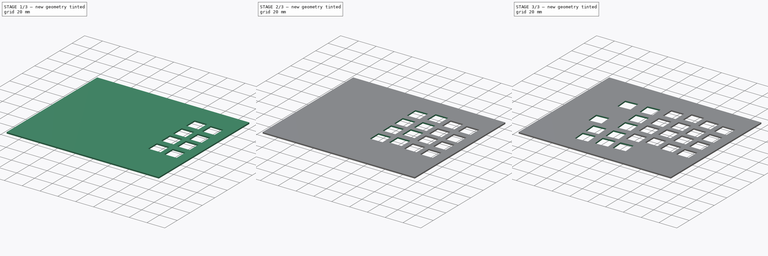
[diagram: build sequence overview — one tinted view per stage of 3, left to right]
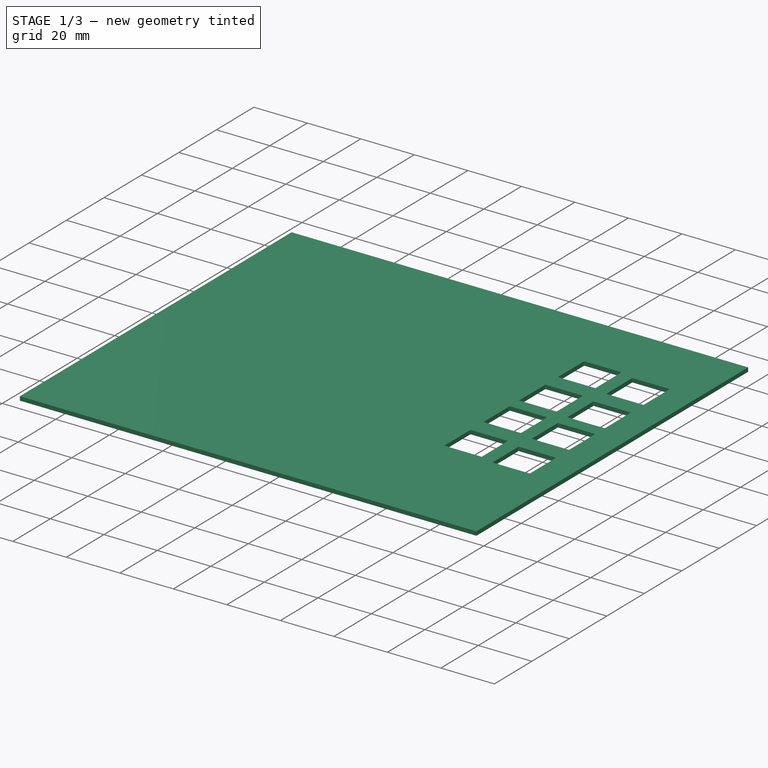
[diagram: stage 1 of 3 — iso view after this stage's code; geometry added in this stage tinted green]
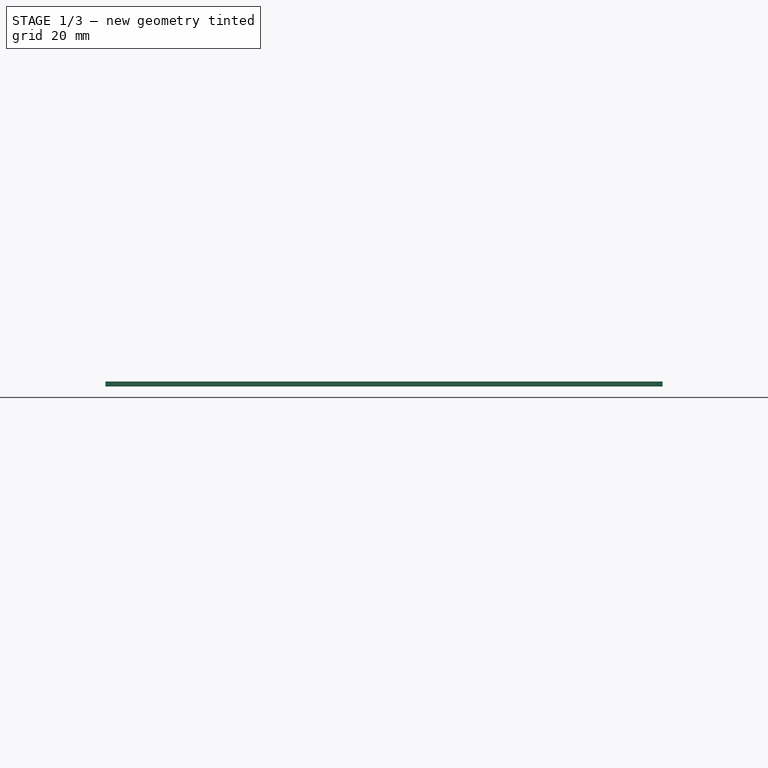
[diagram: stage 1 of 3 — front view after this stage's code; geometry added in this stage tinted green]
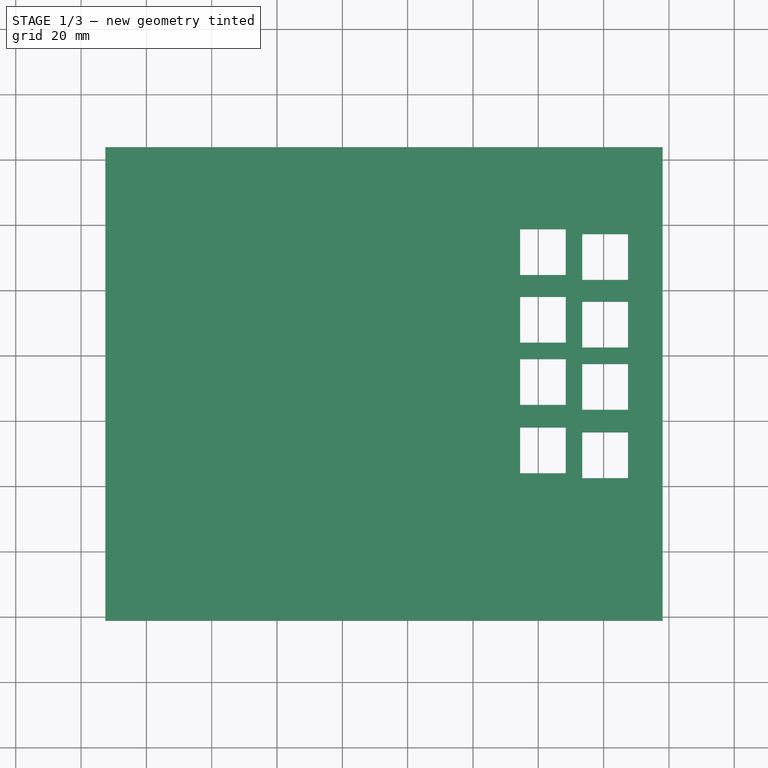
[diagram: stage 1 of 3 — top view after this stage's code; geometry added in this stage tinted green]
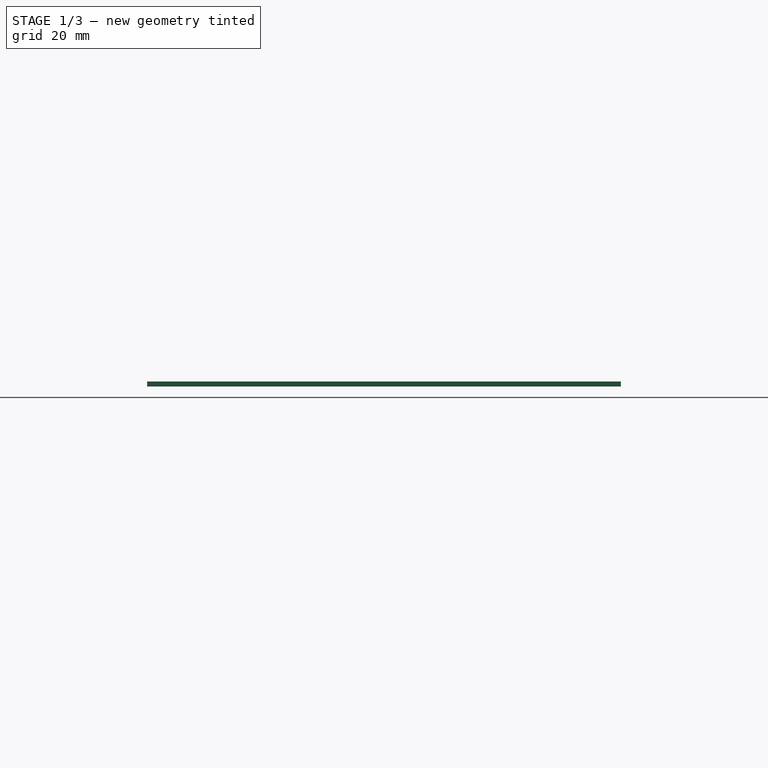
[diagram: stage 1 of 3 — right view after this stage's code; geometry added in this stage tinted green]
FCSTD DOCUMENT  (FreeCAD 0.21R33668 +7 (Git))
Label: Rigel plate V3
License: All rights reserved
LicenseURL: http://en.wikipedia.org/wiki/All_rights_reserved
objects: Sketcher::SketchObject×7, PartDesign::Pocket×5, TechDraw::DrawViewPart×4, TechDraw::DrawSVGTemplate×2, TechDraw::DrawPage×2, Spreadsheet::Sheet×1, PartDesign::Pad×1, PartDesign::Body×1
note: 20 computed .brp shape members not serialized (recipe doc carries the construction recipe); baked Part::Feature solids carry a one-line shape summary decoded from their .brp

FEATURE [Spreadsheet::Sheet] Spreadsheet
  cells = A1='FIXED MX PARAMETERS; A2='1u; B2(OneU)==19.05 mm; C2='1u cutout; D2(OneUCutout)==14 mm; E2='1u cutout radius; F2(OneUCutout_rad)==0.15 mm; A3='Key to plate height (key base); B3(KeyToPlate)==5 mm; A4='Plate thickness; B4(PlateThickness)==1.5 mm; A6='RIGEL PARAMETERS; H6='Col 4; I6='Col 3; J6='Col 2; K6='Col 1; L6='Col 0; N6='Col 0; O6='Col 1; P6='Col 2; Q6='Col 3; R6='Col 4; A7='Row 4 angle (down); B7(R4Angle)==5 deg; C7='Row 4 V stagger (up); D7(R4VStagger)==1.5 mm; G7='Row 1; H7='1; I7='2; J7='3; K7='4; L7='5; N7='6; O7='7; P7='8; Q7='9; R7='0; A8='Row 3 angle (up, from row 4); B8(R3Angle)==11.5 deg; G8='Row 2; H8='Q; I8='W; J8='E; K8='R; L8='T; N8='Y; O8='U; P8='I; Q8='O; R8='P; A9='Row 1 angle (up, from row 3); B9(R1Angle)==16 deg; C9='Row 4 H stagger (extra gap); D9(R1HStagger)==0.25 mm; G9='Row 3; H9='A; I9='S; J9='D; K9='F; L9='G; N9='H; O9='J; P9='K; Q9='L; R9=';; G10='Row 4; H10='Z; I10='X; J10='C; K10='V; L10='B; N10='N; O10='M; P10='<; Q10='>; R10='/; A11='Cutout width; B11(CutoutWidth)==0.5 mm; C11='Cutout relief depth; D11(ReliefDepth)==0.25 mm; A13='Col 4 angle (between col 4 and col 3); B13(C4Angle)==3 deg; C13='cum angle:; A14='Col 3 angle (between col 3 and col 2); B14(C3Angle)==1 deg; C14(C3Angle_Cum)==B14 + B13; A17='Col 3 stagger (step up to col 3 from col 4); B17(C3Stagger)==4.5 mm; A18='Col 2 stagger (step up to col 2 from col 3); B18(C2Stagger)==2.5 mm; C18='Col 2 V stagger (down); D18(C2VStagger)==1.5 mm; A19='Col 1 stagger (step down to col 1 from col 2); B19(C1Stagger)==2.5 mm; A20='Col 0 stagger (step down to col 0 from col 1); B20(C0Stagger)==1.5 mm; A22='C2 extra bend angle; B22(C2ExtraAngle)==45 deg; A25='CALCULATED VALUES; A26='Row 4 to row 3 gap; B26(R4ToR3Gap)==sqrt(D26 * D26 + F26 * F26 - 2 * D26 * F26 * cos(R3Angle)); C26='a:; D26==KeyToPlate; E26='b:; F26==KeyToPlate + R4VStagger; A27='Row 2 to row 1 gap; B27(R2ToR1Gap)==2 * KeyToPlate * tan(R1Angle / 2) + R1HStagger; A28='C2 extra below row 4; B28(C2_R4ExtraGap)==D28 - F28; C28='h:; D28==C2VStagger / sin(C2ExtraAngle); E28='a:; F28==C2VStagger / tan(C2ExtraAngle); A32='Row 1 bend allowance; B32(R1BendAllowance)==tan(R3Angle / 2) * KeyToPlate; C32='<- extra gap to add on each side of bend between the flush 1U units going from row 1 to row 2; D32='Row 1 recess; E32==(OneU + R1BendAllowance) * sin(R3Angle); F32='<- amount by which R1 bases raised; A33='Row 4 bend allowance; B33(R4BendAllowance)==tan(R1Angle / 2) * KeyToPlate; D33='Row 4 recess; E33==(OneU + R4BendAllowance) * sin(R1Angle); D34='R0 key height; E34==7.5 mm; A35='k-factor; B35(KFactor)=0.5; D35='Numpad C0 angle; E35(NumpadC0Angle)==6.7 deg; A36='bend inside radius; B36(BendInsideR)==2 mm; D36='Numpad C0 bend allowance; E36(NumpadC0BendAllowance)==tan(NumpadC0Angle / 2) * KeyToPlate; A37='Row 1 concave bend gap; B37(R1ConcaveBendDeduction)==-2 * BendInsideR * tan(R3Angle / 2) + R3Angle / 360 deg * 2 * pi * (BendInsideR + KFactor * PlateThickness); D37='Numpad R1 recess; E37==(2 * OneU + NumpadC0BendAllowance) * sin(NumpadC0Angle); A38='Row 1 convex bend gap; B38(R1ConvexBendDeduction)==-2 * (BendInsideR + PlateThickness) * tan(R3Angle / 2) + R3Angle / 360 deg * 2 * pi * (BendInsideR + KFactor * PlateThickness); D38='Numpad C0 bend gap; E38(NumpadC0BendDeduction)==-2 * BendInsideR * tan(NumpadC0Angle / 2) + NumpadC0Angle / 360 deg * 2 * pi * (BendInsideR + KFactor * PlateThickness); A39='Row 4 concave bend gap; B39(R4ConcaveBendDeduction)==-2 * BendInsideR * tan(R1Angle / 2) + R1Angle / 360 deg * 2 * pi * (BendInsideR + KFactor * PlateThickness); A40='Row 4 convex bend gap; B40(R4ConvexBendDeduction)==-2 * (BendInsideR + PlateThickness) * tan(R1Angle / 2) + R1Angle / 360 deg * 2 * pi * (BendInsideR + KFactor * PlateThickness); D40='C2 normal distance; E40==10 mm + R1ConvexBendDeduction; A41='C2 60deg convex bend gap; B41(C2ConvexBendDeduction)==-2 * (BendInsideR + PlateThickness) * tan(C2ExtraAngle / 2) + C2ExtraAngle / 360 deg * 2 * pi * (BendInsideR + KFactor * PlateThickness); D41='C2 with recess; E41==10 mm - C2VStagger / tan(C2ExtraAngle) + C2VStagger / sin(C2ExtraAngle) + C2ConvexBendDeduction + C2ConcaveBendDeduction; A42='C2 ~45deg concave bend gap; B42(C2ConcaveBendDeduction)==-2 * BendInsideR * tan(45 deg / 2) + 45 deg / 360 deg * 2 * pi * (BendInsideR + KFactor * PlateThickness); D42='C2 extra length; E42(C2ExtraLength)==E41 - E40; B44='x; C44='y; A45='C3 placement; B45(C3Placement_X)==0 mm; C45(C3Placement_Y)==C3Stagger; A46='C2 placement; B46(C2Placement_X)==C3Placement_X + OneU * cos(C4Angle) + C2Stagger * sin(C3Angle_Cum); C46(C2Placement_Y)==C3Placement_Y - OneU * sin(C4Angle) + C2Stagger * cos(C3Angle_Cum); A47='C1 placement; B47(C1Placement_X)==C2Placement_X + OneU * cos(C3Angle_Cum) - C1Stagger * sin(C3Angle_Cum); C47(C1Placement_Y)==C2Placement_Y - OneU * sin(C3Angle_Cum) - C1Stagger * cos(C3Angle_Cum); A48='C0 placement; B48(C0Placement_X)==C1Placement_X + OneU * cos(C3Angle_Cum) - C0Stagger * sin(C3Angle_Cum); C48(C0Placement_Y)==C1Placement_Y - OneU * sin(C3Angle_Cum) - C0Stagger * cos(C3Angle_Cum); A50='Whole column height, physical (top-down); B50(R1ToR4TopDown)==(OneU + R1BendAllowance) * cos(R3Angle) + R1BendAllowance + 2 * OneU + R4BendAllowance + (OneU + R4BendAllowance) * cos(R1Angle); C50='Baseline to top height, physical (top-down); D50==115 mm; E50='<-- HACK manually copied from sketch; A51='Whole column height, sheet length; B51(R1ToR4Sheet)==OneU + R1BendAllowance + R1ConcaveBendDeduction + R1BendAllowance + 2 * OneU + R4BendAllowance + R4ConcaveBendDeduction + OneU + R4BendAllowance; C51='C4 3deg top adjustment; D51(C4TopAdjustment)==D50 * (1 - cos(C4Angle)); C52='C3 4deg top adjustment; D52(C3TopAdjustment)==D50 * (1 - cos(C3Angle_Cum)); C53='Baseline to bottom height; D53(BaselineToBottom)==23.47 mm; E53='<-- HACK copied manuall; A54='Margins; A55='Top margin; B55(MarginTop)==5 mm; A56='Bottom margin; B56(MarginBottom)==2 mm; A57='Left margin; B57(MarginLeft)==8 mm; A58='Right margin; B58(MarginRight)==8 mm
FEATURE [Sketcher::SketchObject] Sketch006  label="ProfileStandard"
  FullyConstrained = false
  expr: Constraints[10] = <<Spreadsheet>>.KeyToPlate
  expr: Constraints[118] = 1.5 mm + <<Spreadsheet>>.PlateThickness
  expr: Constraints[11] = <<Spreadsheet>>.OneU
  expr: Constraints[120] = <<Spreadsheet>>.OneUCutout
  expr: Constraints[22] = <<Spreadsheet>>.R4VStagger
  expr: Constraints[39] = 90 deg - <<Spreadsheet>>.C2ExtraAngle
  expr: Constraints[41] = <<Spreadsheet>>.C2VStagger
  expr: Constraints[50] = <<Spreadsheet>>.R1HStagger
  expr: Constraints[56] = 180 deg - <<Spreadsheet>>.R3Angle
  expr: Constraints[57] = 180 deg - <<Spreadsheet>>.R1Angle
  expr: Constraints[86] = <<Spreadsheet>>.PlateThickness
  sketch-geometry (92):
    g0: LineSegment StartX=58.7024 StartY=1.25499 StartZ=0 EndX=77.1825 EndY=8.90968 EndZ=0
    g1: LineSegment StartX=77.1825 StartY=8.90968 StartZ=0 EndX=138.217 EndY=8.90968 EndZ=0
    g2: LineSegment StartX=20.1491 StartY=-3.13757 StartZ=0 EndX=19.5831 EndY=1.83029 EndZ=0
    g3: LineSegment StartX=19.5831 StartY=1.83029 StartZ=0 EndX=38.5106 EndY=3.9868 EndZ=0
    g4: LineSegment StartX=38.5106 StartY=3.9868 StartZ=0 EndX=39.0767 EndY=-0.981064 EndZ=0
    g5: LineSegment StartX=38.5106 StartY=3.9868 StartZ=0 EndX=57.4382 EndY=6.1433 EndZ=0
    g6: LineSegment StartX=57.4382 StartY=6.1433 StartZ=0 EndX=58.0042 EndY=1.17544 EndZ=0
    g7: LineSegment StartX=0 StartY=0 StartZ=0 EndX=0.435782 EndY=4.98097 EndZ=0
    g8: LineSegment StartX=0.435782 StartY=4.98097 StartZ=0 EndX=19.4133 EndY=3.32064 EndZ=0
    g9: LineSegment StartX=19.4133 StartY=3.32064 StartZ=0 EndX=18.9775 EndY=-1.66033 EndZ=0
    g10: LineSegment StartX=19.5831 StartY=1.83029 StartZ=0 EndX=19.4133 EndY=3.32064 EndZ=0
    g11: LineSegment StartX=59.3516 StartY=1.52391 StartZ=0 EndX=57.4382 EndY=6.1433 EndZ=0
    g12: LineSegment StartX=75.2691 StartY=13.5291 StartZ=0 EndX=77.1825 EndY=8.90968 EndZ=0
    g13: LineSegment StartX=57.4382 StartY=6.1433 StartZ=0 EndX=58.7024 EndY=1.25499 EndZ=0
    g14: LineSegment StartX=-79.6548 StartY=-46.9095 StartZ=0 EndX=-1.49986 EndY=-46.9095 EndZ=0
    g15: LineSegment StartX=-1.49986 StartY=-46.9095 StartZ=0 EndX=0 EndY=-46.9095 EndZ=0
    g16: LineSegment StartX=-1.49986 StartY=-46.9095 StartZ=0 EndX=0.000139869 EndY=-48.4095 EndZ=0
    g17: LineSegment StartX=0.000139869 StartY=-48.4095 StartZ=0 EndX=18.9775 EndY=-50.0698 EndZ=0
    g18: LineSegment StartX=57.4382 StartY=6.1433 StartZ=0 EndX=57.6692 EndY=6.23898 EndZ=0
    g19: LineSegment StartX=57.6692 StartY=6.23898 StartZ=0 EndX=75.2691 EndY=13.5291 EndZ=0
    g20: LineSegment StartX=57.6692 StartY=6.23898 StartZ=0 EndX=59.5826 EndY=1.61958 EndZ=0
    g21: LineSegment StartX=-80.5115 StartY=0 StartZ=0 EndX=0 EndY=0 EndZ=0
    g22: LineSegment StartX=0 StartY=0 StartZ=0 EndX=18.9775 EndY=-1.66033 EndZ=0
    g23: LineSegment StartX=18.9775 StartY=-1.66033 StartZ=0 EndX=20.1491 EndY=-3.13757 EndZ=0
    g24: LineSegment StartX=20.1491 StartY=-3.13757 StartZ=0 EndX=58.7024 EndY=1.25499 EndZ=0
    g25: LineSegment StartX=-80.5115 StartY=0 StartZ=0 EndX=-80.5115 EndY=-1.5 EndZ=0
    g26: LineSegment StartX=-80.5115 StartY=-1.5 StartZ=0 EndX=-0.0654919 EndY=-1.5 EndZ=0
    g27: LineSegment StartX=-0.0654919 StartY=-1.5 StartZ=0 EndX=18.2035 EndY=-3.09834 EndZ=0
    g28: LineSegment StartX=18.2035 StartY=-3.09834 StartZ=0 EndX=19.4914 EndY=-4.72221 EndZ=0
    g29: LineSegment StartX=19.4914 StartY=-4.72221 StartZ=0 EndX=59.0816 EndY=-0.211501 EndZ=0
    g30: LineSegment StartX=59.0816 StartY=-0.211501 StartZ=0 EndX=77.4808 EndY=7.40968 EndZ=0
    g31: LineSegment StartX=77.4808 StartY=7.40968 StartZ=0 EndX=138.217 EndY=7.40968 EndZ=0
    g32: LineSegment StartX=138.217 StartY=7.40968 StartZ=0 EndX=138.217 EndY=8.90968 EndZ=0
    g33: LineSegment StartX=8.5211 StartY=-0.745505 StartZ=0 EndX=8.39037 EndY=-2.2398 EndZ=0
    g34: LineSegment StartX=20.2856 StartY=-3.30967 StartZ=0 EndX=19.1103 EndY=-4.24176 EndZ=0
    g35: LineSegment StartX=20.9766 StartY=-3.04329 StartZ=0 EndX=21.1464 EndY=-4.53365 EndZ=0
    g36: LineSegment StartX=68.2685 StartY=5.21741 StartZ=0 EndX=68.8426 EndY=3.83159 EndZ=0
    g37: LineSegment StartX=20.9766 StartY=-3.04329 StartZ=0 EndX=20.8068 EndY=-1.55293 EndZ=0
    g38: LineSegment StartX=19.6316 StartY=-2.48502 StartZ=0 EndX=20.8068 EndY=-1.55293 EndZ=0
    g39: ArcOfCircle CenterX=20.8068 CenterY=-1.55293 CenterZ=0 NormalX=0 NormalY=0 NormalZ=1 AngleXU=0 Radius=1.5 StartAngle=3.81211 EndAngle=4.82583
    g40: LineSegment StartX=17.691 StartY=-1.54777 StartZ=0 EndX=17.4295 EndY=-4.53635 EndZ=0
    g41: LineSegment StartX=17.4295 StartY=-4.53635 StartZ=0 EndX=19.78 EndY=-2.67218 EndZ=0
    g42: LineSegment StartX=2.45033 StartY=-0.963749 StartZ=0 EndX=16.3971 EndY=-2.18394 EndZ=0
    g43: LineSegment StartX=2.45033 StartY=-0.963749 StartZ=0 EndX=-0.0650639 EndY=-0.743679 EndZ=0
    g44: LineSegment StartX=16.3971 StartY=-2.18394 StartZ=0 EndX=18.9124 EndY=-2.40401 EndZ=0
    g45: GeomPoint X=17.5602 Y=-3.04206 Z=0
    g46: GeomPoint X=18.6048 Y=-3.60427 Z=0
    g47: ArcOfCircle CenterX=17.4295 CenterY=-4.53635 CenterZ=0 NormalX=0 NormalY=0 NormalZ=1 AngleXU=0 Radius=1.5 StartAngle=0.670518 EndAngle=1.48353
    g48: LineSegment StartX=19.6316 StartY=-2.48502 StartZ=0 EndX=18.4563 EndY=-3.41711 EndZ=0
    g49: LineSegment StartX=-0.152814 StartY=0 StartZ=0 EndX=-0.152814 EndY=-1.5 EndZ=0
    g50: LineSegment StartX=-0.152814 StartY=-1.5 StartZ=0 EndX=-0.152814 EndY=-3.5 EndZ=0
    g51: LineSegment StartX=-0.152814 StartY=-3.5 StartZ=0 EndX=0.0214983 EndY=-1.50761 EndZ=0
    g52: LineSegment StartX=0.0214983 StartY=-1.50761 StartZ=0 EndX=0.152233 EndY=-0.0133188 EndZ=0
    g53: ArcOfCircle CenterX=-0.152814 CenterY=-3.5 CenterZ=0 NormalX=0 NormalY=0 NormalZ=1 AngleXU=0 Radius=3.5 StartAngle=1.48353 EndAngle=1.5708
    g54: ArcOfCircle CenterX=-0.152814 CenterY=-3.5 CenterZ=0 NormalX=0 NormalY=0 NormalZ=1 AngleXU=0 Radius=2 StartAngle=1.48353 EndAngle=1.5708
    g55: LineSegment StartX=20.2366 StartY=-3.90508 StartZ=0 EndX=22.7453 EndY=-3.61924 EndZ=0
    g56: LineSegment StartX=22.7453 StartY=-3.61924 StartZ=0 EndX=36.6553 EndY=-2.0344 EndZ=0
    g57: LineSegment StartX=36.6553 StartY=-2.0344 StartZ=0 EndX=39.1641 EndY=-1.74857 EndZ=0
    g58: LineSegment StartX=39.1641 StartY=-1.74857 StartZ=0 EndX=41.6729 EndY=-1.46273 EndZ=0
    g59: LineSegment StartX=41.6729 StartY=-1.46273 StartZ=0 EndX=55.5829 EndY=0.122106 EndZ=0
    g60: LineSegment StartX=55.5829 StartY=0.122106 StartZ=0 EndX=58.0916 EndY=0.407943 EndZ=0
    g61: LineSegment StartX=58.1967 StartY=3.21032 StartZ=0 EndX=58.4231 EndY=1.22317 EndZ=0
    g62: LineSegment StartX=58.4231 StartY=1.22317 StartZ=0 EndX=58.5929 EndY=-0.267184 EndZ=0
    g63: LineSegment StartX=58.1967 StartY=3.21032 StartZ=0 EndX=58.9621 EndY=1.36256 EndZ=0
    g64: LineSegment StartX=58.9621 StartY=1.36256 StartZ=0 EndX=59.5361 EndY=-0.0232618 EndZ=0
    g65: ArcOfCircle CenterX=58.1967 CenterY=3.21032 CenterZ=0 NormalX=0 NormalY=0 NormalZ=1 AngleXU=0 Radius=2 StartAngle=4.82583 EndAngle=5.10509
    g66: ArcOfCircle CenterX=58.1967 CenterY=3.21032 CenterZ=0 NormalX=0 NormalY=0 NormalZ=1 AngleXU=0 Radius=3.5 StartAngle=4.82583 EndAngle=5.10509
    g67: LineSegment StartX=76.5393 StartY=8.64326 StartZ=0 EndX=77.1133 EndY=7.25744 EndZ=0
    g68: LineSegment StartX=77.1133 StartY=7.25744 StartZ=0 EndX=77.8787 EndY=5.40968 EndZ=0
    g69: LineSegment StartX=77.8787 StartY=5.40968 StartZ=0 EndX=77.8787 EndY=7.40968 EndZ=0
    g70: LineSegment StartX=77.8787 StartY=7.40968 StartZ=0 EndX=77.8787 EndY=8.90968 EndZ=0
    g71: ArcOfCircle CenterX=77.8787 CenterY=5.40968 CenterZ=0 NormalX=0 NormalY=0 NormalZ=1 AngleXU=0 Radius=2 StartAngle=1.5708 EndAngle=1.96349
    g72: ArcOfCircle CenterX=77.8787 CenterY=5.40968 CenterZ=0 NormalX=0 NormalY=0 NormalZ=1 AngleXU=0 Radius=3.5 StartAngle=1.5708 EndAngle=1.96349
    g73: LineSegment StartX=21.1464 StartY=-4.53365 StartZ=0 EndX=25.4066 EndY=-18.9159 EndZ=0
    g74: LineSegment StartX=25.4066 StartY=-18.9159 StartZ=0 EndX=57.6772 EndY=-15.2392 EndZ=0
    g75: LineSegment StartX=57.6772 StartY=-15.2392 StartZ=0 EndX=58.5929 EndY=-0.267184 EndZ=0
    g76: LineSegment StartX=59.8833 StartY=0.893587 StartZ=0 EndX=62.2161 EndY=1.85986 EndZ=0
    g77: LineSegment StartX=62.2161 StartY=1.85986 StartZ=0 EndX=75.1504 EndY=7.21742 EndZ=0
    g78: LineSegment StartX=75.1504 StartY=7.21742 StartZ=0 EndX=77.4832 EndY=8.18369 EndZ=0
    g79: LineSegment StartX=0.749317 StartY=-0.0655572 StartZ=0 EndX=1.57869 EndY=13.4945 EndZ=0
    g80: LineSegment StartX=1.57869 StartY=13.4945 StartZ=0 EndX=72.702 EndY=21.5979 EndZ=0
    g81: LineSegment StartX=72.702 StartY=21.5979 StartZ=0 EndX=76.5393 EndY=8.64327 EndZ=0
    g82: ArcOfEllipse CenterX=17.4295 CenterY=-4.53635 CenterZ=0 NormalX=0 NormalY=0 NormalZ=1 MajorRadius=3.03694 MinorRadius=2.99889 AngleXU=-0.260423 StartAngle=1.01606 EndAngle=1.74182
    g83: LineSegment StartX=20.364 StartY=-5.31833 StartZ=0 EndX=14.495 EndY=-3.75438 EndZ=0
    g84: LineSegment StartX=18.2017 StartY=-1.63858 StartZ=0 EndX=16.6573 EndY=-7.43413 EndZ=0
    g85: GeomPoint X=17.8926 Y=-4.65975 Z=0
    g86: GeomPoint X=16.9664 Y=-4.41296 Z=0
    g87: ArcOfEllipse CenterX=20.8068 CenterY=-1.55293 CenterZ=0 NormalX=0 NormalY=0 NormalZ=1 MajorRadius=3.0206 MinorRadius=2.946 AngleXU=-2.00223 StartAngle=5.88494 EndAngle=6.83921
    g88: LineSegment StartX=19.5437 StartY=-4.29674 StartZ=0 EndX=22.07 EndY=1.19088 EndZ=0
    g89: LineSegment StartX=23.4829 StartY=-2.78487 StartZ=0 EndX=18.1308 EndY=-0.320992 EndZ=0
    g90: GeomPoint X=20.5278 Y=-2.15896 Z=0
    g91: GeomPoint X=21.0858 Y=-0.946908 Z=0
  constraints (239):
    c: PointOnObject(g21,g-1)
    c: Coincident(g24,g0)
    c: Coincident(g0,g1)
    c: Horizontal(g1)
    c: Coincident(g2,g3)
    c: Coincident(g3,g4)
    c: Coincident(g3,g5)
    c: Coincident(g5,g6)
    c: Perpendicular(g3,g2)
    c: Perpendicular(g5,g6)
    c: Distance(g2) = 5
    c: Distance(g3) = 19.05
    c: Equal(g3,g5)
    c: Coincident(g7,g8)
    c: Coincident(g8,g9)
    c: Perpendicular(g8,g7)
    c: Perpendicular(g8,g9)
    c: Coincident(g10,g2)
    c: Coincident(g10,g8)
    c: Parallel(g2,g10)
    c: Equal(g8,g3)
    c: Equal(g7,g2)
    c: Distance(g10) = 1.5
    c: PointOnObject(g11,g0)
    c: Coincident(g11,g5)
    c: Coincident(g11,g18)
    c: Coincident(g19,g12)
    c: Coincident(g12,g0)
    c: Perpendicular(g0,g12)
    c: Coincident(g13,g5)
    c: Coincident(g13,g24)
    c: Symmetric(g6,g11,g13)
    c: Distance(g6,g24) = 0.702704
    c: Horizontal(g14)
    c: Coincident(g15,g14)
    c: PointOnObject(g15,g-2)
    c: Horizontal(g15)
    c: Coincident(g16,g14)
    c: Coincident(g17,g16)
    c: Angle(g-2,g16) = 0.785398
    c: Block(g17)
    c: Distance(g15,g16) = 1.5
    c: DistanceX(g15,g15) = 1.49986
    c: Distance(g16) = 2.12132
    c: Coincident(g18,g19)
    c: Perpendicular(g12,g18)
    c: Perpendicular(g12,g19)
    c: Coincident(g20,g18)
    c: PointOnObject(g20,g0)
    c: Perpendicular(g0,g20)
    c: Distance(g18) = 0.25
    c: Equal(g3,g19)
    c: Perpendicular(g22,g7)
    c: Parallel(g22,g17)
    c: Distance(g9,g23) = 1.88544  'R4ToR3Gap'
    c: Perpendicular(g24,g4)
    c: Angle(g24,g22) = 2.94088
    c: Angle(g0,g24) = 2.86234
    c: Coincident(g22,g21)
    c: Coincident(g7,g21)
    c: Coincident(g-1,g21)
    c: Coincident(g22,g23)
    c: Coincident(g22,g9)
    c: Coincident(g24,g23)
    c: Coincident(g2,g23)
    c: Parallel(g3,g24)
    c: Parallel(g5,g24)
    c: PointOnObject(g4,g24)
    c: PointOnObject(g6,g24)
    c: Coincident(g21,g25)
    c: Vertical(g25)
    c: Coincident(g25,g26)
    c: Horizontal(g26)
    c: Coincident(g26,g27)
    c: Coincident(g27,g28)
    c: Coincident(g28,g29)
    c: Coincident(g29,g30)
    c: Coincident(g30,g31)
    c: Horizontal(g31)
    c: Coincident(g31,g32)
    c: Vertical(g32)
    c: Coincident(g1,g32)
    c: Parallel(g0,g30)
    c: Parallel(g27,g22)
    c: Parallel(g23,g28)
    c: Parallel(g24,g29)
    c: DistanceY(g25,g25) = 1.5
    c: PointOnObject(g33,g22)
    c: PointOnObject(g33,g27)
    c: Perpendicular(g22,g33)
    c: PointOnObject(g34,g23)
    c: PointOnObject(g34,g28)
    c: PointOnObject(g35,g24)
    c: PointOnObject(g35,g29)
    c: PointOnObject(g36,g0)
    c: PointOnObject(g36,g30)
    c: Perpendicular(g0,g36)
    c: Perpendicular(g24,g35)
    c: Perpendicular(g23,g34)
    c: Equal(g25,g33)
    c: Equal(g33,g34)
    c: Equal(g34,g35)
    c: Equal(g35,g36)
    c: Equal(g36,g32)
    c: Coincident(g37,g35)
    c: PointOnObject(g38,g23)
    c: Coincident(g38,g37)
    c: Perpendicular(g24,g37)
    c: Perpendicular(g38,g23)
    c: Coincident(g39,g37)
    c: Coincident(g39,g35)
    c: Coincident(g38,g39)
    c: Distance(g38) = 1.5
    c: PointOnObject(g40,g22)
    c: Coincident(g41,g40)
    c: PointOnObject(g41,g23)
    c: Perpendicular(g23,g41)
    c: Perpendicular(g22,g40)
    c: Distance(g41) = 3
    c: Parallel(g42,g22)
    c: Distance(g42) = 14
    c: Coincident(g43,g42)
    c: PointOnObject(g43,g7)
    c: Coincident(g44,g42)
    c: PointOnObject(g44,g9)
    c: Parallel(g44,g42)
    c: Parallel(g42,g43)
    c: Equal(g43,g44)
    c: PointOnObject(g45,g40)
    c: PointOnObject(g46,g41)
    c: PointOnObject(g45,g27)
    c: Coincident(g47,g40)
    c: Coincident(g47,g45)
    c: Coincident(g47,g46)
    c: Coincident(g48,g38)
    c: Parallel(g38,g48)
    c: PointOnObject(g49,g21)
    c: PointOnObject(g49,g26)
    c: Vertical(g49)
    c: Coincident(g49,g50)
    c: Vertical(g50)
    c: Coincident(g50,g51)
    c: PointOnObject(g51,g27)
    c: Coincident(g51,g52)
    c: Perpendicular(g27,g51)
    c: Perpendicular(g27,g52)
    c: Coincident(g53,g50)
    c: Coincident(g53,g49)
    c: Coincident(g53,g52)
    c: Coincident(g54,g50)
    c: Coincident(g54,g49)
    c: Coincident(g54,g51)
    c: DistanceY(g50,g50) = 2
    c: PointOnObject(g55,g2)
    c: Coincident(g55,g56)
    c: Coincident(g56,g57)
    c: PointOnObject(g57,g4)
    c: Coincident(g57,g58)
    c: Coincident(g58,g59)
    c: Coincident(g59,g60)
    c: PointOnObject(g60,g6)
    c: Parallel(g55,g56)
    c: Parallel(g56,g57)
    c: Parallel(g57,g58)
    c: Parallel(g58,g59)
    c: Parallel(g59,g60)
    c: Perpendicular(g55,g2)
    c: Equal(g42,g56)
    c: Equal(g56,g59)
    c: Equal(g55,g57)
    c: Equal(g58,g60)
    c: PointOnObject(g61,g24)
    c: Coincident(g61,g62)
    c: PointOnObject(g62,g29)
    c: Coincident(g61,g63)
    c: PointOnObject(g63,g0)
    c: Coincident(g63,g64)
    c: Parallel(g61,g62)
    c: Perpendicular(g24,g61)
    c: Parallel(g63,g64)
    c: Perpendicular(g0,g63)
    c: Coincident(g65,g61)
    c: Coincident(g65,g61)
    c: Coincident(g65,g63)
    c: Coincident(g66,g61)
    c: Coincident(g66,g62)
    c: Coincident(g66,g64)
    c: Distance(g61) = 2
    c: PointOnObject(g67,g0)
    c: PointOnObject(g67,g30)
    c: Coincident(g67,g68)
    c: Coincident(g68,g69)
    c: PointOnObject(g69,g31)
    c: Coincident(g69,g70)
    c: Vertical(g70)
    c: Vertical(g69)
    c: Parallel(g67,g68)
    c: Perpendicular(g30,g67)
    c: Coincident(g71,g68)
    c: Coincident(g71,g67)
    c: Coincident(g71,g69)
    c: Coincident(g72,g68)
    c: Coincident(g72,g67)
    c: Coincident(g72,g70)
    c: Distance(g68) = 2
    c: Coincident(g73,g35)
    c: Coincident(g73,g74)
    c: Coincident(g74,g75)
    c: Coincident(g75,g62)
    c: Parallel(g29,g74)
    c: PointOnObject(g76,g20)
    c: Coincident(g76,g77)
    c: Coincident(g77,g78)
    c: PointOnObject(g78,g12)
    c: Parallel(g76,g77)
    c: Parallel(g77,g78)
    c: Parallel(g78,g0)
    c: Equal(g42,g77)
    c: Equal(g76,g78)
    c: Angle(g73,g29) = 1.39626
    c: Angle(g29,g75) = 1.39626
    c: Distance(g73) = 15
    c: PointOnObject(g79,g22)
    c: Coincident(g79,g80)
    c: Coincident(g80,g81)
    c: PointOnObject(g81,g0)
    c: Angle(g80,g81) = 1.74533
    c: Angle(g79,g80) = 1.74533
    c: Parallel(g80,g24)
    c: PointOnObject(g47,g28)
    c: PointOnObject(g48,g28)
    c: InternalAlignment(g83-g86 -> g82) x4
    c: Coincident(g82,g40)
    c: Coincident(g82,g38)
    c: Coincident(g82,g40)
    c: InternalAlignment(g88-g91 -> g87) x4
    c: Coincident(g87,g37)
    c: Coincident(g87,g47)
    c: Coincident(g87,g35)
FEATURE [Sketcher::SketchObject] Sketch007  label="Base"
  FullyConstrained = false
  expr: Constraints[12] = <<Spreadsheet>>.OneU
  expr: Constraints[18] = <<Spreadsheet>>.C1Stagger
  expr: Constraints[24] = <<Spreadsheet>>.C2Stagger
  expr: Constraints[30] = <<Spreadsheet>>.C3Stagger
  expr: Constraints[31] = <<Spreadsheet>>.C3Angle
  expr: Constraints[36] = <<Spreadsheet>>.C4Angle
  expr: Constraints[65] = <<Spreadsheet>>.R4ToR3Gap
  expr: Constraints[66] = <<Spreadsheet>>.R2ToR1Gap
  expr: Constraints[9] = <<Spreadsheet>>.C0Stagger
  sketch-geometry (35):
    g0: LineSegment StartX=-10 StartY=0 StartZ=0 EndX=-10 EndY=19.05 EndZ=0
    g1: LineSegment StartX=-29.05 StartY=0 StartZ=0 EndX=-29.05 EndY=79.7604 EndZ=0
    g2: LineSegment StartX=-48.1 StartY=0 StartZ=0 EndX=-48.1 EndY=80.3184 EndZ=0
    g3: LineSegment StartX=-29.05 StartY=1.5 StartZ=0 EndX=-48.1 EndY=1.5 EndZ=0
    g4: LineSegment StartX=-10 StartY=0 StartZ=0 EndX=-29.05 EndY=0 EndZ=0
    g5: LineSegment StartX=-67.15 StartY=0 StartZ=0 EndX=-67.15 EndY=78.9546 EndZ=0
    g6: LineSegment StartX=-48.1 StartY=4 StartZ=0 EndX=-67.15 EndY=4 EndZ=0
    g7: LineSegment StartX=-87.5747 StartY=82.5907 StartZ=0 EndX=-85.6578 EndY=-27.2295 EndZ=0
    g8: LineSegment StartX=-68.5331 StartY=83.2405 StartZ=0 EndX=-66.6894 EndY=-22.3871 EndZ=0
    g9: LineSegment StartX=-67.1064 StartY=1.50038 StartZ=0 EndX=-86.1535 EndY=1.16791 EndZ=0
    g10: LineSegment StartX=-91.7744 StartY=81.5504 StartZ=0 EndX=-84.247 EndY=-26.0959 EndZ=0
    g11: LineSegment StartX=-110.807 StartY=80.6344 StartZ=0 EndX=-103.112 EndY=-29.4128 EndZ=0
    g12: LineSegment StartX=-85.8396 StartY=-3.32113 StartZ=0 EndX=-104.843 EndY=-4.64999 EndZ=0
    g13: LineSegment StartX=-29.05 StartY=19.05 StartZ=0 EndX=-10 EndY=19.05 EndZ=0
    g14: LineSegment StartX=-10 StartY=19.05 StartZ=0 EndX=-10 EndY=20.9354 EndZ=0
    g15: LineSegment StartX=-10 StartY=20.9354 StartZ=0 EndX=-29.05 EndY=20.9354 EndZ=0
    g16: LineSegment StartX=-10 StartY=20.9354 StartZ=0 EndX=-10 EndY=39.9854 EndZ=0
    g17: LineSegment StartX=-10 StartY=39.9854 StartZ=0 EndX=-29.05 EndY=39.9854 EndZ=0
    g18: LineSegment StartX=-10 StartY=39.9854 StartZ=0 EndX=-10 EndY=59.0354 EndZ=0
    g19: LineSegment StartX=-10 StartY=59.0354 StartZ=0 EndX=-29.05 EndY=59.0354 EndZ=0
    g20: LineSegment StartX=-10 StartY=59.0354 StartZ=0 EndX=-10 EndY=60.6909 EndZ=0
    g21: LineSegment StartX=-10 StartY=60.6909 StartZ=0 EndX=-29.05 EndY=60.6909 EndZ=0
    g22: LineSegment StartX=-10 StartY=60.6909 StartZ=0 EndX=-10 EndY=79.7409 EndZ=0
    g23: LineSegment StartX=-10 StartY=79.7409 StartZ=0 EndX=-29.05 EndY=79.7409 EndZ=0
    g24: LineSegment StartX=-10 StartY=19.05 StartZ=0 EndX=-29.05 EndY=0 EndZ=0
    g25: LineSegment StartX=-172.572 StartY=103.875 StartZ=0 EndX=-1.91449 EndY=103.875 EndZ=0
    g26: LineSegment StartX=-1.91449 StartY=103.875 StartZ=0 EndX=-1.91449 EndY=-41.157 EndZ=0
    g27: LineSegment StartX=-1.91449 StartY=-41.157 StartZ=0 EndX=-172.572 EndY=-41.157 EndZ=0
    g28: LineSegment StartX=-172.572 StartY=-41.157 StartZ=0 EndX=-172.572 EndY=103.875 EndZ=0
    g29: LineSegment StartX=-29.05 StartY=20.55 StartZ=0 EndX=-48.1 EndY=20.55 EndZ=0
    g30: LineSegment StartX=-29.05 StartY=21.55 StartZ=0 EndX=-48.1 EndY=21.55 EndZ=0
    g31: LineSegment StartX=-29.05 StartY=40.6 StartZ=0 EndX=-48.1 EndY=40.6 EndZ=0
    g32: LineSegment StartX=-29.05 StartY=59.65 StartZ=0 EndX=-48.1 EndY=59.65 EndZ=0
    g33: LineSegment StartX=-29.05 StartY=60.65 StartZ=0 EndX=-48.1 EndY=60.65 EndZ=0
    g34: LineSegment StartX=-29.05 StartY=79.7 StartZ=0 EndX=-48.1 EndY=79.7 EndZ=0
  constraints (100):
    c: PointOnObject(g0,g-1)
    c: Vertical(g0)
    c: PointOnObject(g1,g-1)
    c: Vertical(g1)
    c: PointOnObject(g2,g-1)
    c: Vertical(g2)
    c: PointOnObject(g3,g1)
    c: PointOnObject(g3,g2)
    c: Horizontal(g3)
    c: DistanceY(g1,g3) = 1.5
    c: Coincident(g4,g0)
    c: Coincident(g4,g1)
    c: DistanceX(g4,g4) = 19.05
    c: PointOnObject(g5,g-1)
    c: Vertical(g5)
    c: PointOnObject(g6,g2)
    c: PointOnObject(g6,g5)
    c: Horizontal(g6)
    c: DistanceY(g3,g6) = 2.5
    c: PointOnObject(g6,g8)
    c: Parallel(g8,g7)
    c: PointOnObject(g9,g8)
    c: PointOnObject(g9,g7)
    c: Perpendicular(g9,g8)
    c: Distance(g6,g9) = 2.5
    c: PointOnObject(g12,g10)
    c: PointOnObject(g12,g11)
    c: PointOnObject(g9,g10)
    c: Perpendicular(g10,g12)
    c: Parallel(g10,g11)
    c: Distance(g12,g9) = 4.5
    c: Angle(g5,g8) = 0.0174533
    c: Equal(g4,g3)
    c: Equal(g3,g6)
    c: Equal(g6,g9)
    c: Equal(g9,g12)
    c: Angle(g7,g10) = 0.0523599
    c: PointOnObject(g13,g1)
    c: Coincident(g13,g0)
    c: Horizontal(g13)
    c: Coincident(g13,g14)
    c: Vertical(g14)
    c: Coincident(g14,g15)
    c: PointOnObject(g15,g1)
    c: Horizontal(g15)
    c: Coincident(g14,g16)
    c: Vertical(g16)
    c: Coincident(g16,g17)
    c: PointOnObject(g17,g1)
    c: Horizontal(g17)
    c: Coincident(g16,g18)
    c: Vertical(g18)
    c: Coincident(g18,g19)
    c: PointOnObject(g19,g1)
    c: Horizontal(g19)
    c: Coincident(g18,g20)
    c: Vertical(g20)
    c: Coincident(g20,g21)
    c: PointOnObject(g21,g1)
    c: Horizontal(g21)
    c: Coincident(g20,g22)
    c: Vertical(g22)
    c: Coincident(g22,g23)
    c: PointOnObject(g23,g1)
    c: Horizontal(g23)
    c: DistanceY(g0,g14) = 1.88544
    c: DistanceY(g18,g20) = 1.65541
    c: Equal(g4,g0)
    c: Equal(g0,g16)
    c: Equal(g16,g18)
    c: Equal(g18,g22)
    c: DistanceX(g0,g-1) = 10
    c: Coincident(g24,g0)
    c: Coincident(g24,g1)
    c: Coincident(g25,g26)
    c: Coincident(g26,g27)
    c: Coincident(g27,g28)
    c: Coincident(g28,g25)
    c: Horizontal(g25)
    c: Horizontal(g27)
    c: Vertical(g26)
    c: Vertical(g28)
    c: PointOnObject(g29,g1)
    c: PointOnObject(g29,g2)
    c: Horizontal(g29)
    c: PointOnObject(g30,g1)
    c: PointOnObject(g30,g2)
    c: Horizontal(g30)
    c: PointOnObject(g31,g1)
    c: PointOnObject(g31,g2)
    c: Horizontal(g31)
    c: PointOnObject(g32,g1)
    c: PointOnObject(g32,g2)
    c: Horizontal(g32)
    c: PointOnObject(g33,g1)
    c: PointOnObject(g33,g2)
    c: Horizontal(g33)
    c: PointOnObject(g34,g1)
    c: PointOnObject(g34,g2)
    c: Horizontal(g34)
FEATURE [PartDesign::Pad] Pad001
  Direction = (0,0,1)
  Length = 1.5
  Length2 = 10
  Profile = -> Sketch007
  ReferenceAxis = -> Sketch007 [N_Axis]
  Type = 0
  expr: Length = <<Spreadsheet>>.PlateThickness
FEATURE [Sketcher::SketchObject] Sketch008  label="C0AndC1"
  FullyConstrained = false
  expr: Constraints[12] = <<Spreadsheet>>.OneU
  expr: Constraints[160] = <<Spreadsheet>>.OneUCutout
  expr: Constraints[167] = <<Spreadsheet>>.OneUCutout_rad
  expr: Constraints[18] = <<Spreadsheet>>.C1Stagger
  expr: Constraints[24] = <<Spreadsheet>>.C2Stagger
  expr: Constraints[30] = <<Spreadsheet>>.C3Stagger
  expr: Constraints[31] = <<Spreadsheet>>.C3Angle
  expr: Constraints[348] = <<Spreadsheet>>.OneUCutout_rad
  expr: Constraints[349] = Spreadsheet.OneUCutout
  expr: Constraints[36] = <<Spreadsheet>>.C4Angle
  expr: Constraints[65] = <<Spreadsheet>>.R4ToR3Gap
  expr: Constraints[66] = <<Spreadsheet>>.R2ToR1Gap
  expr: Constraints[9] = <<Spreadsheet>>.C0Stagger
  sketch-geometry (140):
    g0: LineSegment StartX=-10 StartY=0 StartZ=0 EndX=-10 EndY=19.05 EndZ=0
    g1: LineSegment StartX=-29.05 StartY=0 StartZ=0 EndX=-29.05 EndY=79.7604 EndZ=0
    g2: LineSegment StartX=-48.1 StartY=0 StartZ=0 EndX=-48.1 EndY=80.3184 EndZ=0
    g3: LineSegment StartX=-29.05 StartY=1.5 StartZ=0 EndX=-48.1 EndY=1.5 EndZ=0
    g4: LineSegment StartX=-10 StartY=0 StartZ=0 EndX=-29.05 EndY=0 EndZ=0
    g5: LineSegment StartX=-67.15 StartY=0 StartZ=0 EndX=-67.15 EndY=78.9546 EndZ=0
    g6: LineSegment StartX=-48.1 StartY=4 StartZ=0 EndX=-67.15 EndY=4 EndZ=0
    g7: LineSegment StartX=-87.5747 StartY=82.5907 StartZ=0 EndX=-85.6578 EndY=-27.2295 EndZ=0
    g8: LineSegment StartX=-68.5331 StartY=83.2405 StartZ=0 EndX=-66.6894 EndY=-22.3871 EndZ=0
    g9: LineSegment StartX=-67.1064 StartY=1.50038 StartZ=0 EndX=-86.1535 EndY=1.16791 EndZ=0
    g10: LineSegment StartX=-91.7744 StartY=81.5504 StartZ=0 EndX=-84.247 EndY=-26.0959 EndZ=0
    g11: LineSegment StartX=-110.807 StartY=80.6344 StartZ=0 EndX=-103.112 EndY=-29.4128 EndZ=0
    g12: LineSegment StartX=-85.8396 StartY=-3.32113 StartZ=0 EndX=-104.843 EndY=-4.64999 EndZ=0
    g13: LineSegment StartX=-29.05 StartY=19.05 StartZ=0 EndX=-10 EndY=19.05 EndZ=0
    g14: LineSegment StartX=-10 StartY=19.05 StartZ=0 EndX=-10 EndY=20.9354 EndZ=0
    g15: LineSegment StartX=-10 StartY=20.9354 StartZ=0 EndX=-29.05 EndY=20.9354 EndZ=0
    g16: LineSegment StartX=-10 StartY=20.9354 StartZ=0 EndX=-10 EndY=39.9854 EndZ=0
    g17: LineSegment StartX=-10 StartY=39.9854 StartZ=0 EndX=-29.05 EndY=39.9854 EndZ=0
    g18: LineSegment StartX=-10 StartY=39.9854 StartZ=0 EndX=-10 EndY=59.0354 EndZ=0
    g19: LineSegment StartX=-10 StartY=59.0354 StartZ=0 EndX=-29.05 EndY=59.0354 EndZ=0
    g20: LineSegment StartX=-10 StartY=59.0354 StartZ=0 EndX=-10 EndY=60.6909 EndZ=0
    g21: LineSegment StartX=-10 StartY=60.6909 StartZ=0 EndX=-29.05 EndY=60.6909 EndZ=0
    g22: LineSegment StartX=-10 StartY=60.6909 StartZ=0 EndX=-10 EndY=79.7409 EndZ=0
    g23: LineSegment StartX=-10 StartY=79.7409 StartZ=0 EndX=-29.05 EndY=79.7409 EndZ=0
    g24: ArcOfCircle CenterX=-26.375 CenterY=16.375 CenterZ=0 NormalX=0 NormalY=0 NormalZ=1 AngleXU=0 Radius=0.15 StartAngle=1.5708 EndAngle=3.14159
    g25: LineSegment StartX=-26.375 StartY=16.525 StartZ=0 EndX=-12.675 EndY=16.525 EndZ=0
    g26: ArcOfCircle CenterX=-12.675 CenterY=16.375 CenterZ=0 NormalX=0 NormalY=0 NormalZ=1 AngleXU=0 Radius=0.15 StartAngle=6.4e-15 EndAngle=1.5708
    g27: LineSegment StartX=-12.525 StartY=16.375 StartZ=0 EndX=-12.525 EndY=2.675 EndZ=0
    g28: ArcOfCircle CenterX=-12.675 CenterY=2.675 CenterZ=0 NormalX=0 NormalY=0 NormalZ=1 AngleXU=0 Radius=0.15 StartAngle=4.71239 EndAngle=6.28319
    g29: LineSegment StartX=-12.675 StartY=2.525 StartZ=0 EndX=-26.375 EndY=2.525 EndZ=0
    g30: ArcOfCircle CenterX=-26.375 CenterY=2.675 CenterZ=0 NormalX=0 NormalY=0 NormalZ=1 AngleXU=0 Radius=0.15 StartAngle=3.14159 EndAngle=4.71239
    g31: LineSegment StartX=-26.525 StartY=2.675 StartZ=0 EndX=-26.525 EndY=16.375 EndZ=0
    g32: GeomPoint X=-26.525 Y=16.525 Z=0
    g33: GeomPoint X=-12.525 Y=2.525 Z=0
    g34: ArcOfCircle CenterX=-26.375 CenterY=37.3104 CenterZ=0 NormalX=0 NormalY=0 NormalZ=1 AngleXU=0 Radius=0.15 StartAngle=1.5708 EndAngle=3.14159
    g35: LineSegment StartX=-26.375 StartY=37.4604 StartZ=0 EndX=-12.675 EndY=37.4604 EndZ=0
    g36: ArcOfCircle CenterX=-12.675 CenterY=37.3104 CenterZ=0 NormalX=0 NormalY=0 NormalZ=1 AngleXU=0 Radius=0.15 StartAngle=2.18e-14 EndAngle=1.5708
    g37: LineSegment StartX=-12.525 StartY=37.3104 StartZ=0 EndX=-12.525 EndY=23.6104 EndZ=0
    g38: ArcOfCircle CenterX=-12.675 CenterY=23.6104 CenterZ=0 NormalX=0 NormalY=0 NormalZ=1 AngleXU=0 Radius=0.15 StartAngle=4.71239 EndAngle=6.28319
    g39: LineSegment StartX=-12.675 StartY=23.4604 StartZ=0 EndX=-26.375 EndY=23.4604 EndZ=0
    g40: ArcOfCircle CenterX=-26.375 CenterY=23.6104 CenterZ=0 NormalX=0 NormalY=0 NormalZ=1 AngleXU=0 Radius=0.15 StartAngle=3.14159 EndAngle=4.71239
    g41: LineSegment StartX=-26.525 StartY=23.6104 StartZ=0 EndX=-26.525 EndY=37.3104 EndZ=0
    g42: GeomPoint X=-26.525 Y=37.4604 Z=0
    g43: GeomPoint X=-12.525 Y=23.4604 Z=0
    g44: ArcOfCircle CenterX=-26.375 CenterY=56.3604 CenterZ=0 NormalX=0 NormalY=0 NormalZ=1 AngleXU=0 Radius=0.15 StartAngle=1.5708 EndAngle=3.14159
    g45: LineSegment StartX=-26.375 StartY=56.5104 StartZ=0 EndX=-12.675 EndY=56.5104 EndZ=0
    g46: ArcOfCircle CenterX=-12.675 CenterY=56.3604 CenterZ=0 NormalX=0 NormalY=0 NormalZ=1 AngleXU=0 Radius=0.15 StartAngle=1.93e-14 EndAngle=1.5708
    g47: LineSegment StartX=-12.525 StartY=56.3604 StartZ=0 EndX=-12.525 EndY=42.6604 EndZ=0
    g48: ArcOfCircle CenterX=-12.675 CenterY=42.6604 CenterZ=0 NormalX=0 NormalY=0 NormalZ=1 AngleXU=0 Radius=0.15 StartAngle=4.71239 EndAngle=6.28319
    g49: LineSegment StartX=-12.675 StartY=42.5104 StartZ=0 EndX=-26.375 EndY=42.5104 EndZ=0
    g50: ArcOfCircle CenterX=-26.375 CenterY=42.6604 CenterZ=0 NormalX=0 NormalY=0 NormalZ=1 AngleXU=0 Radius=0.15 StartAngle=3.14159 EndAngle=4.71239
    g51: LineSegment StartX=-26.525 StartY=42.6604 StartZ=0 EndX=-26.525 EndY=56.3604 EndZ=0
    g52: GeomPoint X=-26.525 Y=56.5104 Z=0
    g53: GeomPoint X=-12.525 Y=42.5104 Z=0
    g54: LineSegment StartX=-29.05 StartY=19.05 StartZ=0 EndX=-10 EndY=0 EndZ=0
    g55: LineSegment StartX=-10 StartY=19.05 StartZ=0 EndX=-29.05 EndY=0 EndZ=0
    g56: LineSegment StartX=-29.05 StartY=39.9854 StartZ=0 EndX=-10 EndY=20.9354 EndZ=0
    g57: LineSegment StartX=-10 StartY=39.9854 StartZ=0 EndX=-29.05 EndY=20.9354 EndZ=0
    g58: LineSegment StartX=-29.05 StartY=59.0354 StartZ=0 EndX=-10 EndY=39.9854 EndZ=0
    g59: LineSegment StartX=-10 StartY=59.0354 StartZ=0 EndX=-29.05 EndY=39.9854 EndZ=0
    g60: LineSegment StartX=-29.05 StartY=79.7409 StartZ=0 EndX=-10 EndY=60.6909 EndZ=0
    g61: LineSegment StartX=-10 StartY=79.7409 StartZ=0 EndX=-29.05 EndY=60.6909 EndZ=0
    g62: LineSegment StartX=-26.525 StartY=16.525 StartZ=0 EndX=-26.525 EndY=23.6104 EndZ=0
    g63: LineSegment StartX=-26.525 StartY=37.4604 StartZ=0 EndX=-26.525 EndY=42.6604 EndZ=0
    g64: LineSegment StartX=-26.375 StartY=23.4604 StartZ=0 EndX=-26.375 EndY=16.525 EndZ=0
    g65: LineSegment StartX=-26.375 StartY=42.5104 StartZ=0 EndX=-26.375 EndY=37.4604 EndZ=0
    g66: ArcOfCircle CenterX=-26.375 CenterY=77.0659 CenterZ=0 NormalX=0 NormalY=0 NormalZ=1 AngleXU=0 Radius=0.15 StartAngle=1.5708 EndAngle=3.14159
    g67: LineSegment StartX=-26.375 StartY=77.2159 StartZ=0 EndX=-12.675 EndY=77.2159 EndZ=0
    g68: ArcOfCircle CenterX=-12.675 CenterY=77.0659 CenterZ=0 NormalX=0 NormalY=0 NormalZ=1 AngleXU=0 Radius=0.15 StartAngle=1.82e-14 EndAngle=1.5708
    g69: LineSegment StartX=-12.525 StartY=77.0659 StartZ=0 EndX=-12.525 EndY=63.3659 EndZ=0
    g70: ArcOfCircle CenterX=-12.675 CenterY=63.3659 CenterZ=0 NormalX=0 NormalY=0 NormalZ=1 AngleXU=0 Radius=0.15 StartAngle=4.71239 EndAngle=6.28319
    g71: LineSegment StartX=-12.675 StartY=63.2159 StartZ=0 EndX=-26.375 EndY=63.2159 EndZ=0
    g72: ArcOfCircle CenterX=-26.375 CenterY=63.3659 CenterZ=0 NormalX=0 NormalY=0 NormalZ=1 AngleXU=0 Radius=0.15 StartAngle=3.14159 EndAngle=4.71239
    g73: LineSegment StartX=-26.525 StartY=63.3659 StartZ=0 EndX=-26.525 EndY=77.0659 EndZ=0
    g74: GeomPoint X=-26.525 Y=77.2159 Z=0
    g75: GeomPoint X=-12.525 Y=63.2159 Z=0
    g76: LineSegment StartX=-26.525 StartY=56.5104 StartZ=0 EndX=-26.525 EndY=63.3659 EndZ=0
    g77: LineSegment StartX=-26.375 StartY=56.5104 StartZ=0 EndX=-26.375 EndY=63.2159 EndZ=0
    g78: LineSegment StartX=-29.05 StartY=20.55 StartZ=0 EndX=-48.1 EndY=20.55 EndZ=0
    g79: LineSegment StartX=-29.05 StartY=22.4354 StartZ=0 EndX=-48.1 EndY=22.4354 EndZ=0
    g80: LineSegment StartX=-29.05 StartY=41.4854 StartZ=0 EndX=-48.1 EndY=41.4854 EndZ=0
    g81: LineSegment StartX=-29.05 StartY=60.5354 StartZ=0 EndX=-48.1 EndY=60.5354 EndZ=0
    g82: LineSegment StartX=-29.05 StartY=62.1909 StartZ=0 EndX=-48.1 EndY=62.1909 EndZ=0
    g83: LineSegment StartX=-29.05 StartY=81.2409 StartZ=0 EndX=-48.1 EndY=81.2409 EndZ=0
    g84: LineSegment StartX=-29.05 StartY=1.5 StartZ=0 EndX=-48.1 EndY=20.55 EndZ=0
    g85: LineSegment StartX=-48.1 StartY=1.5 StartZ=0 EndX=-29.05 EndY=20.55 EndZ=0
    g86: LineSegment StartX=-46.3423 StartY=22.4354 StartZ=0 EndX=-46.3423 EndY=20.55 EndZ=0
    g87: LineSegment StartX=-48.1 StartY=22.4354 StartZ=0 EndX=-29.05 EndY=41.4854 EndZ=0
    g88: LineSegment StartX=-48.1 StartY=41.4854 StartZ=0 EndX=-29.05 EndY=22.4354 EndZ=0
    g89: LineSegment StartX=-48.1 StartY=60.5354 StartZ=0 EndX=-29.05 EndY=41.4854 EndZ=0
    g90: LineSegment StartX=-48.1 StartY=41.4854 StartZ=0 EndX=-29.05 EndY=60.5354 EndZ=0
    g91: LineSegment StartX=-46.4927 StartY=62.1909 StartZ=0 EndX=-46.4927 EndY=60.5354 EndZ=0
    g92: LineSegment StartX=-48.1 StartY=81.2409 StartZ=0 EndX=-29.05 EndY=62.1909 EndZ=0
    g93: LineSegment StartX=-48.1 StartY=62.1909 StartZ=0 EndX=-29.05 EndY=81.2409 EndZ=0
    g94: ArcOfCircle CenterX=-45.425 CenterY=17.875 CenterZ=0 NormalX=0 NormalY=0 NormalZ=1 AngleXU=0 Radius=0.15 StartAngle=1.5708 EndAngle=3.14159
    g95: LineSegment StartX=-45.425 StartY=18.025 StartZ=0 EndX=-31.725 EndY=18.025 EndZ=0
    g96: ArcOfCircle CenterX=-31.725 CenterY=17.875 CenterZ=0 NormalX=0 NormalY=0 NormalZ=1 AngleXU=0 Radius=0.15 StartAngle=-7.1e-15 EndAngle=1.5708
    g97: LineSegment StartX=-31.575 StartY=17.875 StartZ=0 EndX=-31.575 EndY=4.175 EndZ=0
    g98: ArcOfCircle CenterX=-31.725 CenterY=4.175 CenterZ=0 NormalX=0 NormalY=0 NormalZ=1 AngleXU=0 Radius=0.15 StartAngle=4.71239 EndAngle=6.28319
    g99: LineSegment StartX=-31.725 StartY=4.025 StartZ=0 EndX=-45.425 EndY=4.025 EndZ=0
    g100: ArcOfCircle CenterX=-45.425 CenterY=4.175 CenterZ=0 NormalX=0 NormalY=0 NormalZ=1 AngleXU=0 Radius=0.15 StartAngle=3.14159 EndAngle=4.71239
    g101: LineSegment StartX=-45.575 StartY=4.175 StartZ=0 EndX=-45.575 EndY=17.875 EndZ=0
    g102: GeomPoint X=-45.575 Y=18.025 Z=0
    g103: GeomPoint X=-31.575 Y=4.025 Z=0
    g104: ArcOfCircle CenterX=-45.425 CenterY=38.8104 CenterZ=0 NormalX=0 NormalY=0 NormalZ=1 AngleXU=0 Radius=0.15 StartAngle=1.5708 EndAngle=3.14159
    g105: LineSegment StartX=-45.425 StartY=38.9604 StartZ=0 EndX=-31.725 EndY=38.9604 EndZ=0
    g106: ArcOfCircle CenterX=-31.725 CenterY=38.8104 CenterZ=0 NormalX=0 NormalY=0 NormalZ=1 AngleXU=0 Radius=0.15 StartAngle=2.5e-15 EndAngle=1.5708
    g107: LineSegment StartX=-31.575 StartY=38.8104 StartZ=0 EndX=-31.575 EndY=25.1104 EndZ=0
    g108: ArcOfCircle CenterX=-31.725 CenterY=25.1104 CenterZ=0 NormalX=0 NormalY=0 NormalZ=1 AngleXU=0 Radius=0.15 StartAngle=4.71239 EndAngle=6.28319
    g109: LineSegment StartX=-31.725 StartY=24.9604 StartZ=0 EndX=-45.425 EndY=24.9604 EndZ=0
    g110: ArcOfCircle CenterX=-45.425 CenterY=25.1104 CenterZ=0 NormalX=0 NormalY=0 NormalZ=1 AngleXU=0 Radius=0.15 StartAngle=3.14159 EndAngle=4.71239
    g111: LineSegment StartX=-45.575 StartY=25.1104 StartZ=0 EndX=-45.575 EndY=38.8104 EndZ=0
    g112: GeomPoint X=-45.575 Y=38.9604 Z=0
    g113: GeomPoint X=-31.575 Y=24.9604 Z=0
    g114: ArcOfCircle CenterX=-45.425 CenterY=57.8604 CenterZ=0 NormalX=0 NormalY=0 NormalZ=1 AngleXU=0 Radius=0.15 StartAngle=1.5708 EndAngle=3.14159
    g115: LineSegment StartX=-45.425 StartY=58.0104 StartZ=0 EndX=-31.725 EndY=58.0104 EndZ=0
    g116: ArcOfCircle CenterX=-31.725 CenterY=57.8604 CenterZ=0 NormalX=0 NormalY=0 NormalZ=1 AngleXU=0 Radius=0.15 StartAngle=1.99e-14 EndAngle=1.5708
    g117: LineSegment StartX=-31.575 StartY=57.8604 StartZ=0 EndX=-31.575 EndY=44.1604 EndZ=0
    g118: ArcOfCircle CenterX=-31.725 CenterY=44.1604 CenterZ=0 NormalX=0 NormalY=0 NormalZ=1 AngleXU=0 Radius=0.15 StartAngle=4.71239 EndAngle=6.28319
    g119: LineSegment StartX=-31.725 StartY=44.0104 StartZ=0 EndX=-45.425 EndY=44.0104 EndZ=0
    g120: ArcOfCircle CenterX=-45.425 CenterY=44.1604 CenterZ=0 NormalX=0 NormalY=0 NormalZ=1 AngleXU=0 Radius=0.15 StartAngle=3.14159 EndAngle=4.71239
    g121: LineSegment StartX=-45.575 StartY=44.1604 StartZ=0 EndX=-45.575 EndY=57.8604 EndZ=0
    g122: GeomPoint X=-45.575 Y=58.0104 Z=0
    g123: GeomPoint X=-31.575 Y=44.0104 Z=0
    g124: ArcOfCircle CenterX=-45.425 CenterY=78.5659 CenterZ=0 NormalX=0 NormalY=0 NormalZ=1 AngleXU=0 Radius=0.15 StartAngle=1.5708 EndAngle=3.14159
    g125: LineSegment StartX=-45.425 StartY=78.7159 StartZ=0 EndX=-31.725 EndY=78.7159 EndZ=0
    g126: ArcOfCircle CenterX=-31.725 CenterY=78.5659 CenterZ=0 NormalX=0 NormalY=0 NormalZ=1 AngleXU=0 Radius=0.15 StartAngle=1.8e-15 EndAngle=1.5708
    g127: LineSegment StartX=-31.575 StartY=78.5659 StartZ=0 EndX=-31.575 EndY=64.8659 EndZ=0
    g128: ArcOfCircle CenterX=-31.725 CenterY=64.8659 CenterZ=0 NormalX=0 NormalY=0 NormalZ=1 AngleXU=0 Radius=0.15 StartAngle=4.71239 EndAngle=6.28319
    g129: LineSegment StartX=-31.725 StartY=64.7159 StartZ=0 EndX=-45.425 EndY=64.7159 EndZ=0
    g130: ArcOfCircle CenterX=-45.425 CenterY=64.8659 CenterZ=0 NormalX=0 NormalY=0 NormalZ=1 AngleXU=0 Radius=0.15 StartAngle=3.14159 EndAngle=4.71239
    g131: LineSegment StartX=-45.575 StartY=64.8659 StartZ=0 EndX=-45.575 EndY=78.5659 EndZ=0
    g132: GeomPoint X=-45.575 Y=78.7159 Z=0
    g133: GeomPoint X=-31.575 Y=64.7159 Z=0
    g134: LineSegment StartX=-45.575 StartY=18.025 StartZ=0 EndX=-45.575 EndY=25.1104 EndZ=0
    g135: LineSegment StartX=-45.575 StartY=38.9604 StartZ=0 EndX=-45.575 EndY=44.1604 EndZ=0
    g136: LineSegment StartX=-45.575 StartY=58.0104 StartZ=0 EndX=-45.575 EndY=64.8659 EndZ=0
    g137: LineSegment StartX=-45.425 StartY=58.0104 StartZ=0 EndX=-45.425 EndY=64.7159 EndZ=0
    g138: LineSegment StartX=-45.425 StartY=38.9604 StartZ=0 EndX=-45.425 EndY=44.0104 EndZ=0
    g139: LineSegment StartX=-45.425 StartY=18.025 StartZ=0 EndX=-45.425 EndY=24.9604 EndZ=0
  constraints (350):
    c: PointOnObject(g0,g-1)
    c: Vertical(g0)
    c: PointOnObject(g1,g-1)
    c: Vertical(g1)
    c: PointOnObject(g2,g-1)
    c: Vertical(g2)
    c: PointOnObject(g3,g1)
    c: PointOnObject(g3,g2)
    c: Horizontal(g3)
    c: DistanceY(g1,g3) = 1.5
    c: Coincident(g4,g0)
    c: Coincident(g4,g1)
    c: DistanceX(g4,g4) = 19.05
    c: PointOnObject(g5,g-1)
    c: Vertical(g5)
    c: PointOnObject(g6,g2)
    c: PointOnObject(g6,g5)
    c: Horizontal(g6)
    c: DistanceY(g3,g6) = 2.5
    c: PointOnObject(g6,g8)
    c: Parallel(g8,g7)
    c: PointOnObject(g9,g8)
    c: PointOnObject(g9,g7)
    c: Perpendicular(g9,g8)
    c: Distance(g6,g9) = 2.5
    c: PointOnObject(g12,g10)
    c: PointOnObject(g12,g11)
    c: PointOnObject(g9,g10)
    c: Perpendicular(g10,g12)
    c: Parallel(g10,g11)
    c: Distance(g12,g9) = 4.5
    c: Angle(g5,g8) = 0.0174533
    c: Equal(g4,g3)
    c: Equal(g3,g6)
    c: Equal(g6,g9)
    c: Equal(g9,g12)
    c: Angle(g7,g10) = 0.0523599
    c: PointOnObject(g13,g1)
    c: Coincident(g13,g0)
    c: Horizontal(g13)
    c: Coincident(g13,g14)
    c: Vertical(g14)
    c: Coincident(g14,g15)
    c: PointOnObject(g15,g1)
    c: Horizontal(g15)
    c: Coincident(g14,g16)
    c: Vertical(g16)
    c: Coincident(g16,g17)
    c: PointOnObject(g17,g1)
    c: Horizontal(g17)
    c: Coincident(g16,g18)
    c: Vertical(g18)
    c: Coincident(g18,g19)
    c: PointOnObject(g19,g1)
    c: Horizontal(g19)
    c: Coincident(g18,g20)
    c: Vertical(g20)
    c: Coincident(g20,g21)
    c: PointOnObject(g21,g1)
    c: Horizontal(g21)
    c: Coincident(g20,g22)
    c: Vertical(g22)
    c: Coincident(g22,g23)
    c: PointOnObject(g23,g1)
    c: Horizontal(g23)
    c: DistanceY(g0,g14) = 1.88544
    c: DistanceY(g18,g20) = 1.65541
    c: Equal(g4,g0)
    c: Equal(g0,g16)
    c: Equal(g16,g18)
    c: Equal(g18,g22)
    c: DistanceX(g0,g-1) = 10
    c: Tangent(g24,g25) = 1.5708
    c: Tangent(g25,g26) = 1.5708
    c: Tangent(g26,g27) = 1.5708
    c: Tangent(g27,g28) = 1.5708
    c: Tangent(g28,g29) = 1.5708
    c: Tangent(g29,g30) = 1.5708
    c: Tangent(g30,g31) = 1.5708
    c: Tangent(g31,g24) = 1.5708
    c: Horizontal(g25)
    c: Horizontal(g29)
    c: Vertical(g27)
    c: Vertical(g31)
    c: Equal(g24,g26)
    c: Equal(g26,g28)
    c: Equal(g28,g30)
    c: PointOnObject(g32,g25)
    c: PointOnObject(g32,g31)
    c: PointOnObject(g33,g27)
    c: PointOnObject(g33,g29)
    c: Tangent(g34,g35) = 1.5708
    c: Tangent(g35,g36) = 1.5708
    c: Tangent(g36,g37) = 1.5708
    c: Tangent(g37,g38) = 1.5708
    c: Tangent(g38,g39) = 1.5708
    c: Tangent(g39,g40) = 1.5708
    c: Tangent(g40,g41) = 1.5708
    c: Tangent(g41,g34) = 1.5708
    c: Horizontal(g35)
    c: Horizontal(g39)
    c: Vertical(g37)
    c: Vertical(g41)
    c: Equal(g34,g36)
    c: Equal(g36,g38)
    c: Equal(g38,g40)
    c: PointOnObject(g42,g35)
    c: PointOnObject(g42,g41)
    c: PointOnObject(g43,g37)
    c: PointOnObject(g43,g39)
    c: Tangent(g44,g45) = 1.5708
    c: Tangent(g45,g46) = 1.5708
    c: Tangent(g46,g47) = 1.5708
    c: Tangent(g47,g48) = 1.5708
    c: Tangent(g48,g49) = 1.5708
    c: Tangent(g49,g50) = 1.5708
    c: Tangent(g50,g51) = 1.5708
    c: Tangent(g51,g44) = 1.5708
    c: Horizontal(g45)
    c: Horizontal(g49)
    c: Vertical(g47)
    c: Vertical(g51)
    c: Equal(g44,g46)
    c: Equal(g46,g48)
    c: Equal(g48,g50)
    c: PointOnObject(g52,g45)
    c: PointOnObject(g52,g51)
    c: PointOnObject(g53,g47)
    c: PointOnObject(g53,g49)
    c: Coincident(g54,g13)
    c: Coincident(g54,g0)
    c: Coincident(g55,g0)
    c: Coincident(g55,g1)
    c: PointOnObject(g32,g54)
    c: PointOnObject(g33,g54)
    c: PointOnObject(g30,g55)
    c: Coincident(g56,g17)
    c: Coincident(g56,g14)
    c: Coincident(g57,g16)
    c: Coincident(g57,g15)
    c: Coincident(g58,g19)
    c: Coincident(g58,g16)
    c: Coincident(g59,g18)
    c: Coincident(g59,g17)
    c: Coincident(g60,g23)
    c: Coincident(g60,g20)
    c: Coincident(g61,g22)
    c: Coincident(g61,g21)
    c: PointOnObject(g52,g58)
    c: PointOnObject(g53,g58)
    c: PointOnObject(g46,g59)
    c: PointOnObject(g42,g56)
    c: PointOnObject(g43,g56)
    c: PointOnObject(g36,g57)
    c: Coincident(g62,g32)
    c: Coincident(g62,g40)
    c: Vertical(g62)
    c: Coincident(g63,g42)
    c: Vertical(g63)
    c: Coincident(g63,g50)
    c: DistanceX(g24,g26) = 14
    c: Coincident(g64,g39)
    c: Coincident(g64,g24)
    c: Coincident(g65,g49)
    c: Coincident(g65,g34)
    c: Vertical(g64)
    c: Vertical(g65)
    c: Radius(g26) = 0.15
    c: Tangent(g66,g67) = 1.5708
    c: Tangent(g67,g68) = 1.5708
    c: Tangent(g68,g69) = 1.5708
    c: Tangent(g69,g70) = 1.5708
    c: Tangent(g70,g71) = 1.5708
    c: Tangent(g71,g72) = 1.5708
    c: Tangent(g72,g73) = 1.5708
    c: Tangent(g73,g66) = 1.5708
    c: Horizontal(g67)
    c: Horizontal(g71)
    c: Vertical(g69)
    c: Vertical(g73)
    c: Equal(g66,g68)
    c: Equal(g68,g70)
    c: Equal(g70,g72)
    c: PointOnObject(g74,g67)
    c: PointOnObject(g74,g73)
    c: PointOnObject(g75,g69)
    c: PointOnObject(g75,g71)
    c: PointOnObject(g75,g60)
    c: PointOnObject(g74,g60)
    c: PointOnObject(g68,g61)
    c: Coincident(g76,g52)
    c: Coincident(g76,g72)
    c: Coincident(g77,g44)
    c: Coincident(g77,g71)
    c: Vertical(g76)
    c: Vertical(g77)
    c: PointOnObject(g78,g1)
    c: PointOnObject(g78,g2)
    c: Horizontal(g78)
    c: PointOnObject(g79,g1)
    c: PointOnObject(g79,g2)
    c: Horizontal(g79)
    c: PointOnObject(g80,g1)
    c: PointOnObject(g80,g2)
    c: Horizontal(g80)
    c: PointOnObject(g81,g1)
    c: PointOnObject(g81,g2)
    c: Horizontal(g81)
    c: PointOnObject(g82,g1)
    c: PointOnObject(g82,g2)
    c: Horizontal(g82)
    c: PointOnObject(g83,g1)
    c: PointOnObject(g83,g2)
    c: Horizontal(g83)
    c: Coincident(g84,g3)
    c: Coincident(g84,g78)
    c: Coincident(g85,g3)
    c: Coincident(g85,g78)
    c: PointOnObject(g86,g79)
    c: PointOnObject(g86,g78)
    c: Vertical(g86)
    c: Coincident(g87,g79)
    c: Coincident(g87,g80)
    c: Coincident(g88,g80)
    c: Coincident(g88,g79)
    c: Coincident(g89,g81)
    c: Coincident(g89,g80)
    c: Coincident(g90,g80)
    c: Coincident(g90,g81)
    c: PointOnObject(g91,g82)
    c: PointOnObject(g91,g81)
    c: Vertical(g91)
    c: Coincident(g92,g83)
    c: Coincident(g92,g82)
    c: Coincident(g93,g82)
    c: Coincident(g93,g83)
    c: Equal(g54,g84)
    c: Equal(g84,g88)
    c: Equal(g88,g89)
    c: Equal(g89,g92)
    c: Equal(g14,g86)
    c: Equal(g20,g91)
    c: Tangent(g94,g95) = 1.5708
    c: Tangent(g95,g96) = 1.5708
    c: Tangent(g96,g97) = 1.5708
    c: Tangent(g97,g98) = 1.5708
    c: Tangent(g98,g99) = 1.5708
    c: Tangent(g99,g100) = 1.5708
    c: Tangent(g100,g101) = 1.5708
    c: Tangent(g101,g94) = 1.5708
    c: Horizontal(g95)
    c: Horizontal(g99)
    c: Vertical(g97)
    c: Vertical(g101)
    c: Equal(g94,g96)
    c: Equal(g96,g98)
    c: Equal(g98,g100)
    c: PointOnObject(g102,g95)
    c: PointOnObject(g102,g101)
    c: PointOnObject(g103,g97)
    c: PointOnObject(g103,g99)
    c: Tangent(g104,g105) = 1.5708
    c: Tangent(g105,g106) = 1.5708
    c: Tangent(g106,g107) = 1.5708
    c: Tangent(g107,g108) = 1.5708
    c: Tangent(g108,g109) = 1.5708
    c: Tangent(g109,g110) = 1.5708
    c: Tangent(g110,g111) = 1.5708
    c: Tangent(g111,g104) = 1.5708
    c: Horizontal(g105)
    c: Horizontal(g109)
    c: Vertical(g107)
    c: Vertical(g111)
    c: Equal(g104,g106)
    c: Equal(g106,g108)
    c: Equal(g108,g110)
    c: PointOnObject(g112,g105)
    c: PointOnObject(g112,g111)
    c: PointOnObject(g113,g107)
    c: PointOnObject(g113,g109)
    c: Tangent(g114,g115) = 1.5708
    c: Tangent(g115,g116) = 1.5708
    c: Tangent(g116,g117) = 1.5708
    c: Tangent(g117,g118) = 1.5708
    c: Tangent(g118,g119) = 1.5708
    c: Tangent(g119,g120) = 1.5708
    c: Tangent(g120,g121) = 1.5708
    c: Tangent(g121,g114) = 1.5708
    c: Horizontal(g115)
    c: Horizontal(g119)
    c: Vertical(g117)
    c: Vertical(g121)
    c: Equal(g114,g116)
    c: Equal(g116,g118)
    c: Equal(g118,g120)
    c: PointOnObject(g122,g115)
    c: PointOnObject(g122,g121)
    c: PointOnObject(g123,g117)
    c: PointOnObject(g123,g119)
    c: Tangent(g124,g125) = 1.5708
    c: Tangent(g125,g126) = 1.5708
    c: Tangent(g126,g127) = 1.5708
    c: Tangent(g127,g128) = 1.5708
    c: Tangent(g128,g129) = 1.5708
    c: Tangent(g129,g130) = 1.5708
    c: Tangent(g130,g131) = 1.5708
    c: Tangent(g131,g124) = 1.5708
    c: Horizontal(g125)
    c: Horizontal(g129)
    c: Vertical(g127)
    c: Vertical(g131)
    c: Equal(g124,g126)
    c: Equal(g126,g128)
    c: Equal(g128,g130)
    c: PointOnObject(g132,g125)
    c: PointOnObject(g132,g131)
    c: PointOnObject(g133,g127)
    c: PointOnObject(g133,g129)
    c: PointOnObject(g132,g92)
    c: PointOnObject(g133,g92)
    c: PointOnObject(g130,g93)
    c: PointOnObject(g122,g89)
    c: PointOnObject(g123,g89)
    c: PointOnObject(g116,g90)
    c: PointOnObject(g112,g88)
    c: PointOnObject(g113,g88)
    c: PointOnObject(g106,g87)
    c: PointOnObject(g102,g84)
    c: PointOnObject(g103,g84)
    c: PointOnObject(g96,g85)
    c: Coincident(g134,g102)
    c: Coincident(g134,g110)
    c: Coincident(g135,g112)
    c: Coincident(g135,g120)
    c: Coincident(g136,g122)
    c: Coincident(g137,g114)
    c: Coincident(g137,g129)
    c: Vertical(g137)
    c: Coincident(g138,g104)
    c: Coincident(g138,g119)
    c: Coincident(g139,g94)
    c: Coincident(g139,g109)
    c: Vertical(g139)
    c: Vertical(g134)
    c: Vertical(g135)
    c: Vertical(g138)
    c: Vertical(g136)
    c: Coincident(g136,g130)
    c: Radius(g96) = 0.15
    c: DistanceX(g100,g97) = 14
FEATURE [PartDesign::Pocket] Pocket005
  BaseFeature = -> Pad001
  Direction = (0,0,-1)
  Length = 5
  Length2 = 5
  Midplane = true
  Profile = -> Sketch008
  ReferenceAxis = -> Sketch008 [N_Axis]
  Type = 1
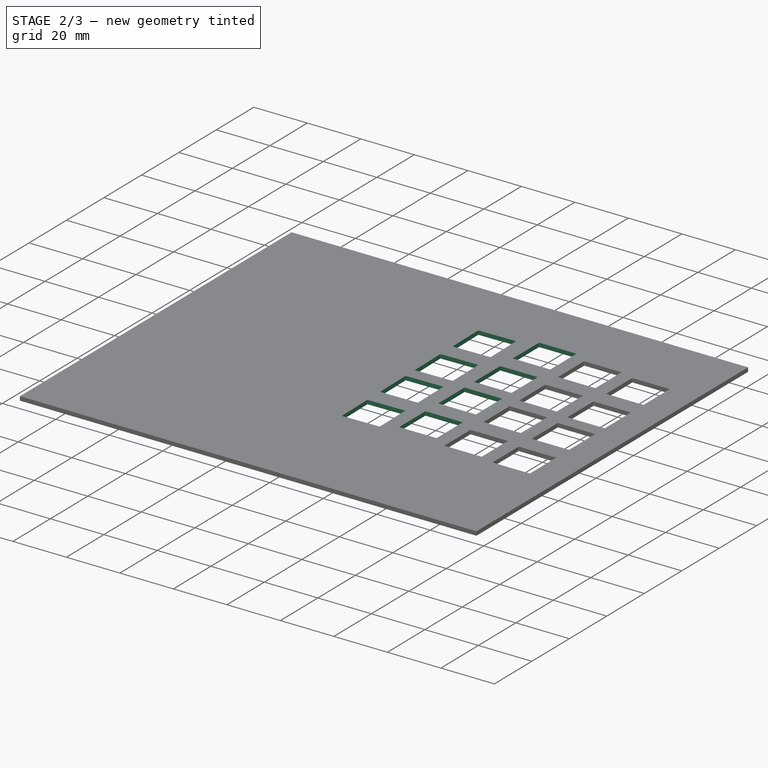
[diagram: stage 2 of 3 — iso view after this stage's code; geometry added in this stage tinted green]
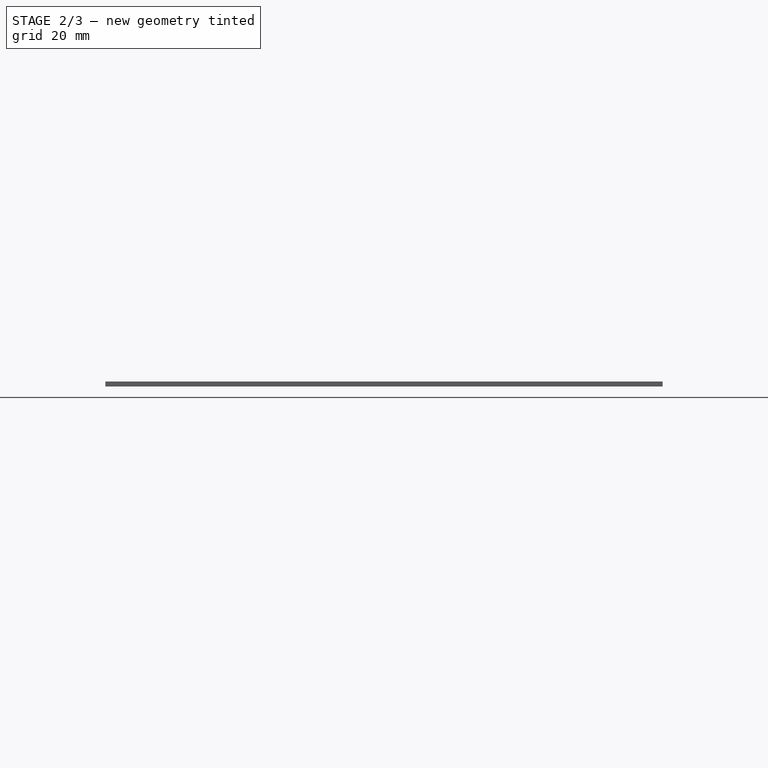
[diagram: stage 2 of 3 — front view after this stage's code; geometry added in this stage tinted green]
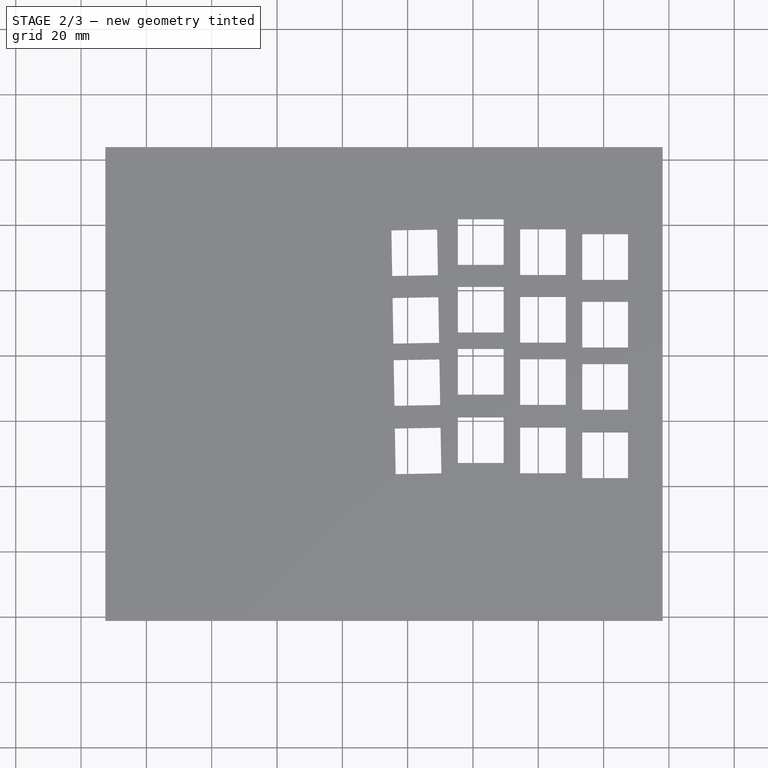
[diagram: stage 2 of 3 — top view after this stage's code; geometry added in this stage tinted green]
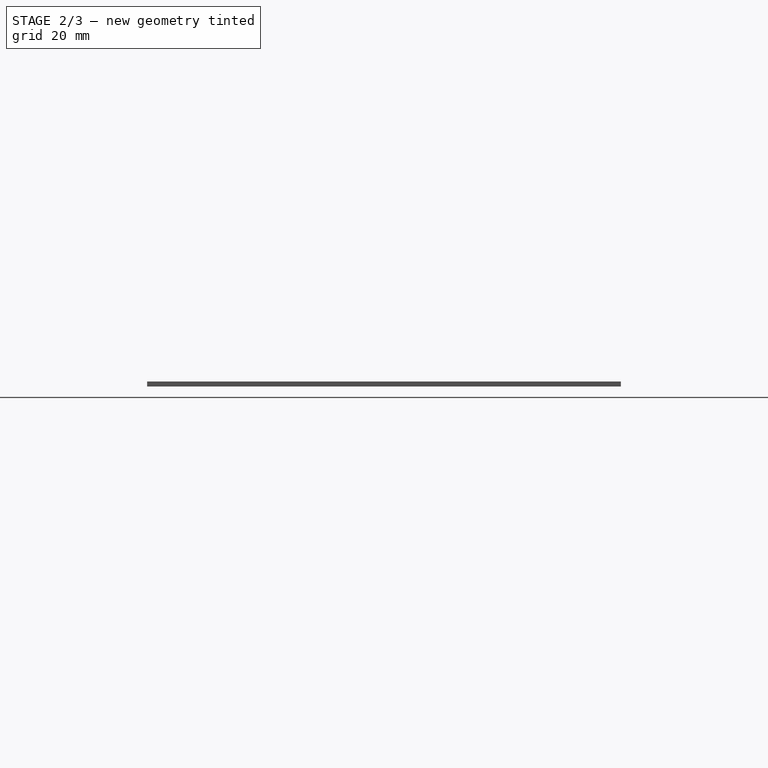
[diagram: stage 2 of 3 — right view after this stage's code; geometry added in this stage tinted green]
FEATURE [Sketcher::SketchObject] Sketch009  label="C2"
  FullyConstrained = false
  expr: Constraints[105] = <<Spreadsheet>>.C2_R4ExtraGap
  expr: Constraints[12] = <<Spreadsheet>>.OneU
  expr: Constraints[18] = <<Spreadsheet>>.C1Stagger
  expr: Constraints[234] = <<Spreadsheet>>.OneUCutout_rad
  expr: Constraints[235] = <<Spreadsheet>>.OneUCutout
  expr: Constraints[24] = <<Spreadsheet>>.C2Stagger
  expr: Constraints[30] = <<Spreadsheet>>.C3Stagger
  expr: Constraints[31] = <<Spreadsheet>>.C3Angle
  expr: Constraints[36] = <<Spreadsheet>>.C4Angle
  expr: Constraints[65] = <<Spreadsheet>>.R4ToR3Gap
  expr: Constraints[66] = <<Spreadsheet>>.R2ToR1Gap
  expr: Constraints[9] = <<Spreadsheet>>.C0Stagger
  sketch-geometry (91):
    g0: LineSegment StartX=-10 StartY=0 StartZ=0 EndX=-10 EndY=19.05 EndZ=0
    g1: LineSegment StartX=-29.05 StartY=0 StartZ=0 EndX=-29.05 EndY=79.7604 EndZ=0
    g2: LineSegment StartX=-48.1 StartY=0 StartZ=0 EndX=-48.1 EndY=4.62132 EndZ=0
    g3: LineSegment StartX=-29.05 StartY=1.5 StartZ=0 EndX=-48.1 EndY=1.5 EndZ=0
    g4: LineSegment StartX=-10 StartY=0 StartZ=0 EndX=-29.05 EndY=0 EndZ=0
    g5: LineSegment StartX=-67.15 StartY=0 StartZ=0 EndX=-67.15 EndY=90.4302 EndZ=0
    g6: LineSegment StartX=-48.1 StartY=4 StartZ=0 EndX=-67.15 EndY=4 EndZ=0
    g7: LineSegment StartX=-87.5747 StartY=82.5907 StartZ=0 EndX=-85.6578 EndY=-27.2296 EndZ=0
    g8: LineSegment StartX=-68.5331 StartY=83.2405 StartZ=0 EndX=-66.6894 EndY=-22.387 EndZ=0
    g9: LineSegment StartX=-67.1064 StartY=1.50038 StartZ=0 EndX=-86.1535 EndY=1.16791 EndZ=0
    g10: LineSegment StartX=-91.7744 StartY=81.5503 StartZ=0 EndX=-84.247 EndY=-26.096 EndZ=0
    g11: LineSegment StartX=-110.807 StartY=80.6344 StartZ=0 EndX=-103.112 EndY=-29.4129 EndZ=0
    g12: LineSegment StartX=-85.8396 StartY=-3.32113 StartZ=0 EndX=-104.843 EndY=-4.64999 EndZ=0
    g13: LineSegment StartX=-29.05 StartY=19.05 StartZ=0 EndX=-10 EndY=19.05 EndZ=0
    g14: LineSegment StartX=-10 StartY=19.05 StartZ=0 EndX=-10 EndY=20.9354 EndZ=0
    g15: LineSegment StartX=-10 StartY=20.9354 StartZ=0 EndX=-29.05 EndY=20.9354 EndZ=0
    g16: LineSegment StartX=-10 StartY=20.9354 StartZ=0 EndX=-10 EndY=39.9854 EndZ=0
    g17: LineSegment StartX=-10 StartY=39.9854 StartZ=0 EndX=-29.05 EndY=39.9854 EndZ=0
    g18: LineSegment StartX=-10 StartY=39.9854 StartZ=0 EndX=-10 EndY=59.0354 EndZ=0
    g19: LineSegment StartX=-10 StartY=59.0354 StartZ=0 EndX=-29.05 EndY=59.0354 EndZ=0
    g20: LineSegment StartX=-10 StartY=59.0354 StartZ=0 EndX=-10 EndY=60.6909 EndZ=0
    g21: LineSegment StartX=-10 StartY=60.6909 StartZ=0 EndX=-29.05 EndY=60.6909 EndZ=0
    g22: LineSegment StartX=-10 StartY=60.6909 StartZ=0 EndX=-10 EndY=79.7409 EndZ=0
    g23: LineSegment StartX=-10 StartY=79.7409 StartZ=0 EndX=-29.05 EndY=79.7409 EndZ=0
    g24: LineSegment StartX=-67.15 StartY=4.62132 StartZ=0 EndX=-48.1 EndY=4.62132 EndZ=0
    g25: LineSegment StartX=-48.1 StartY=4.62132 StartZ=0 EndX=-48.1 EndY=23.6713 EndZ=0
    g26: LineSegment StartX=-48.1 StartY=23.6713 StartZ=0 EndX=-67.15 EndY=23.6713 EndZ=0
    g27: LineSegment StartX=-48.1 StartY=23.6713 StartZ=0 EndX=-48.1 EndY=25.5568 EndZ=0
    g28: LineSegment StartX=-48.1 StartY=25.5568 StartZ=0 EndX=-67.15 EndY=25.5568 EndZ=0
    g29: LineSegment StartX=-48.1 StartY=25.5568 StartZ=0 EndX=-48.1 EndY=44.6068 EndZ=0
    g30: LineSegment StartX=-48.1 StartY=44.6068 StartZ=0 EndX=-67.15 EndY=44.6068 EndZ=0
    g31: LineSegment StartX=-48.1 StartY=44.6068 StartZ=0 EndX=-48.1 EndY=63.6568 EndZ=0
    g32: LineSegment StartX=-48.1 StartY=63.6568 StartZ=0 EndX=-67.15 EndY=63.6568 EndZ=0
    g33: LineSegment StartX=-48.1 StartY=63.6568 StartZ=0 EndX=-48.1 EndY=65.3122 EndZ=0
    g34: LineSegment StartX=-48.1 StartY=65.3122 StartZ=0 EndX=-67.15 EndY=65.3122 EndZ=0
    g35: LineSegment StartX=-48.1 StartY=65.3122 StartZ=0 EndX=-48.1 EndY=84.3622 EndZ=0
    g36: LineSegment StartX=-48.1 StartY=84.3622 StartZ=0 EndX=-67.15 EndY=84.3622 EndZ=0
    g37: LineSegment StartX=-48.1 StartY=84.3622 StartZ=0 EndX=-67.15 EndY=65.3122 EndZ=0
    g38: LineSegment StartX=-67.15 StartY=84.3622 StartZ=0 EndX=-48.1 EndY=65.3122 EndZ=0
    g39: LineSegment StartX=-48.1 StartY=63.6568 StartZ=0 EndX=-67.15 EndY=44.6068 EndZ=0
    g40: LineSegment StartX=-67.15 StartY=63.6568 StartZ=0 EndX=-48.1 EndY=44.6068 EndZ=0
    g41: LineSegment StartX=-67.15 StartY=44.6068 StartZ=0 EndX=-48.1 EndY=25.5568 EndZ=0
    g42: LineSegment StartX=-48.1 StartY=44.6068 StartZ=0 EndX=-67.15 EndY=25.5568 EndZ=0
    g43: LineSegment StartX=-67.15 StartY=23.6713 StartZ=0 EndX=-48.1 EndY=4.62132 EndZ=0
    g44: LineSegment StartX=-48.1 StartY=23.6713 StartZ=0 EndX=-67.15 EndY=4.62132 EndZ=0
    g45: ArcOfCircle CenterX=-64.475 CenterY=81.6872 CenterZ=0 NormalX=0 NormalY=0 NormalZ=1 AngleXU=0 Radius=0.15 StartAngle=1.5708 EndAngle=3.14159
    g46: LineSegment StartX=-64.475 StartY=81.8372 StartZ=0 EndX=-50.775 EndY=81.8372 EndZ=0
    g47: ArcOfCircle CenterX=-50.775 CenterY=81.6872 CenterZ=0 NormalX=0 NormalY=0 NormalZ=1 AngleXU=0 Radius=0.15 StartAngle=3.79e-14 EndAngle=1.5708
    g48: LineSegment StartX=-50.625 StartY=81.6872 StartZ=0 EndX=-50.625 EndY=67.9872 EndZ=0
    g49: ArcOfCircle CenterX=-50.775 CenterY=67.9872 CenterZ=0 NormalX=0 NormalY=0 NormalZ=1 AngleXU=0 Radius=0.15 StartAngle=4.71239 EndAngle=6.28319
    g50: LineSegment StartX=-50.775 StartY=67.8372 StartZ=0 EndX=-64.475 EndY=67.8372 EndZ=0
    g51: ArcOfCircle CenterX=-64.475 CenterY=67.9872 CenterZ=0 NormalX=0 NormalY=0 NormalZ=1 AngleXU=0 Radius=0.15 StartAngle=3.14159 EndAngle=4.71239
    g52: LineSegment StartX=-64.625 StartY=67.9872 StartZ=0 EndX=-64.625 EndY=81.6872 EndZ=0
    g53: GeomPoint X=-64.625 Y=81.8372 Z=0
    g54: GeomPoint X=-50.625 Y=67.8372 Z=0
    g55: ArcOfCircle CenterX=-64.475 CenterY=60.9818 CenterZ=0 NormalX=0 NormalY=0 NormalZ=1 AngleXU=0 Radius=0.15 StartAngle=1.5708 EndAngle=3.14159
    g56: LineSegment StartX=-64.475 StartY=61.1318 StartZ=0 EndX=-50.775 EndY=61.1318 EndZ=0
    g57: ArcOfCircle CenterX=-50.775 CenterY=60.9818 CenterZ=0 NormalX=0 NormalY=0 NormalZ=1 AngleXU=0 Radius=0.15 StartAngle=-2.22e-14 EndAngle=1.5708
    g58: LineSegment StartX=-50.625 StartY=60.9818 StartZ=0 EndX=-50.625 EndY=47.2818 EndZ=0
    g59: ArcOfCircle CenterX=-50.775 CenterY=47.2818 CenterZ=0 NormalX=0 NormalY=0 NormalZ=1 AngleXU=0 Radius=0.15 StartAngle=4.71239 EndAngle=6.28319
    g60: LineSegment StartX=-50.775 StartY=47.1318 StartZ=0 EndX=-64.475 EndY=47.1318 EndZ=0
    g61: ArcOfCircle CenterX=-64.475 CenterY=47.2818 CenterZ=0 NormalX=0 NormalY=0 NormalZ=1 AngleXU=0 Radius=0.15 StartAngle=3.14159 EndAngle=4.71239
    g62: LineSegment StartX=-64.625 StartY=47.2818 StartZ=0 EndX=-64.625 EndY=60.9818 EndZ=0
    g63: GeomPoint X=-64.625 Y=61.1318 Z=0
    g64: GeomPoint X=-50.625 Y=47.1318 Z=0
    g65: ArcOfCircle CenterX=-64.475 CenterY=41.9318 CenterZ=0 NormalX=0 NormalY=0 NormalZ=1 AngleXU=0 Radius=0.15 StartAngle=1.5708 EndAngle=3.14159
    g66: LineSegment StartX=-64.475 StartY=42.0818 StartZ=0 EndX=-50.775 EndY=42.0818 EndZ=0
    g67: ArcOfCircle CenterX=-50.775 CenterY=41.9318 CenterZ=0 NormalX=0 NormalY=0 NormalZ=1 AngleXU=0 Radius=0.15 StartAngle=7.9e-15 EndAngle=1.5708
    g68: LineSegment StartX=-50.625 StartY=41.9318 StartZ=0 EndX=-50.625 EndY=28.2318 EndZ=0
    g69: ArcOfCircle CenterX=-50.775 CenterY=28.2318 CenterZ=0 NormalX=0 NormalY=0 NormalZ=1 AngleXU=0 Radius=0.15 StartAngle=4.71239 EndAngle=6.28319
    g70: LineSegment StartX=-50.775 StartY=28.0818 StartZ=0 EndX=-64.475 EndY=28.0818 EndZ=0
    g71: ArcOfCircle CenterX=-64.475 CenterY=28.2318 CenterZ=0 NormalX=0 NormalY=0 NormalZ=1 AngleXU=0 Radius=0.15 StartAngle=3.14159 EndAngle=4.71239
    g72: LineSegment StartX=-64.625 StartY=28.2318 StartZ=0 EndX=-64.625 EndY=41.9318 EndZ=0
    g73: GeomPoint X=-64.625 Y=42.0818 Z=0
    g74: GeomPoint X=-50.625 Y=28.0818 Z=0
    g75: ArcOfCircle CenterX=-64.475 CenterY=20.9963 CenterZ=0 NormalX=0 NormalY=0 NormalZ=1 AngleXU=0 Radius=0.15 StartAngle=1.5708 EndAngle=3.14159
    g76: LineSegment StartX=-64.475 StartY=21.1463 StartZ=0 EndX=-50.775 EndY=21.1463 EndZ=0
    g77: ArcOfCircle CenterX=-50.775 CenterY=20.9963 CenterZ=0 NormalX=0 NormalY=0 NormalZ=1 AngleXU=0 Radius=0.15 StartAngle=9.1e-15 EndAngle=1.5708
    g78: LineSegment StartX=-50.625 StartY=20.9963 StartZ=0 EndX=-50.625 EndY=7.29632 EndZ=0
    g79: ArcOfCircle CenterX=-50.775 CenterY=7.29632 CenterZ=0 NormalX=0 NormalY=0 NormalZ=1 AngleXU=0 Radius=0.15 StartAngle=4.71239 EndAngle=6.28319
    g80: LineSegment StartX=-50.775 StartY=7.14632 StartZ=0 EndX=-64.475 EndY=7.14632 EndZ=0
    g81: ArcOfCircle CenterX=-64.475 CenterY=7.29632 CenterZ=0 NormalX=0 NormalY=0 NormalZ=1 AngleXU=0 Radius=0.15 StartAngle=3.14159 EndAngle=4.71239
    g82: LineSegment StartX=-64.625 StartY=7.29632 StartZ=0 EndX=-64.625 EndY=20.9963 EndZ=0
    g83: GeomPoint X=-64.625 Y=21.1463 Z=0
    g84: GeomPoint X=-50.625 Y=7.14632 Z=0
    g85: LineSegment StartX=-64.625 StartY=21.1463 StartZ=0 EndX=-64.625 EndY=28.2318 EndZ=0
    g86: LineSegment StartX=-64.625 StartY=42.0818 StartZ=0 EndX=-64.625 EndY=47.2818 EndZ=0
    g87: LineSegment StartX=-64.625 StartY=61.1318 StartZ=0 EndX=-64.625 EndY=67.9872 EndZ=0
    g88: LineSegment StartX=-64.475 StartY=21.1463 StartZ=0 EndX=-64.475 EndY=28.0818 EndZ=0
    g89: LineSegment StartX=-64.475 StartY=42.0818 StartZ=0 EndX=-64.475 EndY=47.1318 EndZ=0
    g90: LineSegment StartX=-64.475 StartY=61.1318 StartZ=0 EndX=-64.475 EndY=67.8372 EndZ=0
  constraints (236):
    c: PointOnObject(g0,g-1)
    c: Vertical(g0)
    c: PointOnObject(g1,g-1)
    c: Vertical(g1)
    c: PointOnObject(g2,g-1)
    c: Vertical(g2)
    c: PointOnObject(g3,g1)
    c: PointOnObject(g3,g2)
    c: Horizontal(g3)
    c: DistanceY(g1,g3) = 1.5
    c: Coincident(g4,g0)
    c: Coincident(g4,g1)
    c: DistanceX(g4,g4) = 19.05
    c: PointOnObject(g5,g-1)
    c: Vertical(g5)
    c: PointOnObject(g6,g2)
    c: PointOnObject(g6,g5)
    c: Horizontal(g6)
    c: DistanceY(g3,g6) = 2.5
    c: PointOnObject(g6,g8)
    c: Parallel(g8,g7)
    c: PointOnObject(g9,g8)
    c: PointOnObject(g9,g7)
    c: Perpendicular(g9,g8)
    c: Distance(g6,g9) = 2.5
    c: PointOnObject(g12,g10)
    c: PointOnObject(g12,g11)
    c: PointOnObject(g9,g10)
    c: Perpendicular(g10,g12)
    c: Parallel(g10,g11)
    c: Distance(g12,g9) = 4.5
    c: Angle(g5,g8) = 0.0174533
    c: Equal(g4,g3)
    c: Equal(g3,g6)
    c: Equal(g6,g9)
    c: Equal(g9,g12)
    c: Angle(g7,g10) = 0.0523599
    c: PointOnObject(g13,g1)
    c: Coincident(g13,g0)
    c: Horizontal(g13)
    c: Coincident(g13,g14)
    c: Vertical(g14)
    c: Coincident(g14,g15)
    c: PointOnObject(g15,g1)
    c: Horizontal(g15)
    c: Coincident(g14,g16)
    c: Vertical(g16)
    c: Coincident(g16,g17)
    c: PointOnObject(g17,g1)
    c: Horizontal(g17)
    c: Coincident(g16,g18)
    c: Vertical(g18)
    c: Coincident(g18,g19)
    c: PointOnObject(g19,g1)
    c: Horizontal(g19)
    c: Coincident(g18,g20)
    c: Vertical(g20)
    c: Coincident(g20,g21)
    c: PointOnObject(g21,g1)
    c: Horizontal(g21)
    c: Coincident(g20,g22)
    c: Vertical(g22)
    c: Coincident(g22,g23)
    c: PointOnObject(g23,g1)
    c: Horizontal(g23)
    c: DistanceY(g0,g14) = 1.88544
    c: DistanceY(g18,g20) = 1.65541
    c: Equal(g4,g0)
    c: Equal(g0,g16)
    c: Equal(g16,g18)
    c: Equal(g18,g22)
    c: DistanceX(g0,g-1) = 10
    c: PointOnObject(g24,g5)
    c: Coincident(g24,g2)
    c: Horizontal(g24)
    c: Coincident(g24,g25)
    c: Vertical(g25)
    c: Coincident(g25,g26)
    c: PointOnObject(g26,g5)
    c: Horizontal(g26)
    c: Coincident(g25,g27)
    c: Vertical(g27)
    c: Coincident(g27,g28)
    c: PointOnObject(g28,g5)
    c: Horizontal(g28)
    c: Coincident(g27,g29)
    c: Vertical(g29)
    c: Coincident(g29,g30)
    c: PointOnObject(g30,g5)
    c: Horizontal(g30)
    c: Coincident(g29,g31)
    c: Vertical(g31)
    c: Coincident(g31,g32)
    c: PointOnObject(g32,g5)
    c: Horizontal(g32)
    c: Coincident(g31,g33)
    c: Vertical(g33)
    c: Coincident(g33,g34)
    c: PointOnObject(g34,g5)
    c: Horizontal(g34)
    c: Coincident(g33,g35)
    c: Vertical(g35)
    c: Coincident(g35,g36)
    c: PointOnObject(g36,g5)
    c: Horizontal(g36)
    c: DistanceY(g6,g2) = 0.62132
    c: Equal(g4,g25)
    c: Equal(g25,g29)
    c: Equal(g29,g31)
    c: Equal(g31,g35)
    c: Equal(g14,g27)
    c: Equal(g20,g33)
    c: Coincident(g37,g35)
    c: Coincident(g37,g34)
    c: Coincident(g38,g36)
    c: Coincident(g38,g33)
    c: Coincident(g39,g31)
    c: Coincident(g39,g30)
    c: Coincident(g40,g32)
    c: Coincident(g40,g29)
    c: Coincident(g41,g30)
    c: Coincident(g41,g27)
    c: Coincident(g42,g28)
    c: Coincident(g43,g26)
    c: Coincident(g43,g2)
    c: Coincident(g44,g25)
    c: Coincident(g44,g24)
    c: Coincident(g42,g29)
    c: Tangent(g45,g46) = 1.5708
    c: Tangent(g46,g47) = 1.5708
    c: Tangent(g47,g48) = 1.5708
    c: Tangent(g48,g49) = 1.5708
    c: Tangent(g49,g50) = 1.5708
    c: Tangent(g50,g51) = 1.5708
    c: Tangent(g51,g52) = 1.5708
    c: Tangent(g52,g45) = 1.5708
    c: Horizontal(g46)
    c: Horizontal(g50)
    c: Vertical(g48)
    c: Vertical(g52)
    c: Equal(g45,g47)
    c: Equal(g47,g49)
    c: Equal(g49,g51)
    c: PointOnObject(g53,g46)
    c: PointOnObject(g53,g52)
    c: PointOnObject(g54,g48)
    c: PointOnObject(g54,g50)
    c: Tangent(g55,g56) = 1.5708
    c: Tangent(g56,g57) = 1.5708
    c: Tangent(g57,g58) = 1.5708
    c: Tangent(g58,g59) = 1.5708
    c: Tangent(g59,g60) = 1.5708
    c: Tangent(g60,g61) = 1.5708
    c: Tangent(g61,g62) = 1.5708
    c: Tangent(g62,g55) = 1.5708
    c: Horizontal(g56)
    c: Horizontal(g60)
    c: Vertical(g58)
    c: Vertical(g62)
    c: Equal(g55,g57)
    c: Equal(g57,g59)
    c: Equal(g59,g61)
    c: PointOnObject(g63,g56)
    c: PointOnObject(g63,g62)
    c: PointOnObject(g64,g58)
    c: PointOnObject(g64,g60)
    c: Tangent(g65,g66) = 1.5708
    c: Tangent(g66,g67) = 1.5708
    c: Tangent(g67,g68) = 1.5708
    c: Tangent(g68,g69) = 1.5708
    c: Tangent(g69,g70) = 1.5708
    c: Tangent(g70,g71) = 1.5708
    c: Tangent(g71,g72) = 1.5708
    c: Tangent(g72,g65) = 1.5708
    c: Horizontal(g66)
    c: Horizontal(g70)
    c: Vertical(g68)
    c: Vertical(g72)
    c: Equal(g65,g67)
    c: Equal(g67,g69)
    c: Equal(g69,g71)
    c: PointOnObject(g73,g66)
    c: PointOnObject(g73,g72)
    c: PointOnObject(g74,g68)
    c: PointOnObject(g74,g70)
    c: Tangent(g75,g76) = 1.5708
    c: Tangent(g76,g77) = 1.5708
    c: Tangent(g77,g78) = 1.5708
    c: Tangent(g78,g79) = 1.5708
    c: Tangent(g79,g80) = 1.5708
    c: Tangent(g80,g81) = 1.5708
    c: Tangent(g81,g82) = 1.5708
    c: Tangent(g82,g75) = 1.5708
    c: Horizontal(g76)
    c: Horizontal(g80)
    c: Vertical(g78)
    c: Vertical(g82)
    c: Equal(g75,g77)
    c: Equal(g77,g79)
    c: Equal(g79,g81)
    c: PointOnObject(g83,g76)
    c: PointOnObject(g83,g82)
    c: PointOnObject(g84,g78)
    c: PointOnObject(g84,g80)
    c: PointOnObject(g83,g43)
    c: PointOnObject(g84,g43)
    c: PointOnObject(g77,g44)
    c: PointOnObject(g73,g41)
    c: PointOnObject(g74,g41)
    c: PointOnObject(g67,g42)
    c: PointOnObject(g63,g40)
    c: PointOnObject(g64,g40)
    c: PointOnObject(g57,g39)
    c: PointOnObject(g53,g38)
    c: PointOnObject(g54,g38)
    c: PointOnObject(g47,g37)
    c: Coincident(g85,g83)
    c: Coincident(g85,g71)
    c: Vertical(g85)
    c: Coincident(g86,g73)
    c: Coincident(g86,g61)
    c: Vertical(g86)
    c: Coincident(g87,g63)
    c: Coincident(g87,g51)
    c: Vertical(g87)
    c: Coincident(g88,g75)
    c: Coincident(g88,g70)
    c: Coincident(g89,g65)
    c: Coincident(g89,g60)
    c: Coincident(g90,g55)
    c: Coincident(g90,g50)
    c: Vertical(g88)
    c: Vertical(g89)
    c: Vertical(g90)
    c: Radius(g77) = 0.15
    c: DistanceX(g81,g78) = 14
FEATURE [PartDesign::Pocket] Pocket006
  BaseFeature = -> Pocket005
  Direction = (0,0,-1)
  Length = 5
  Length2 = 5
  Midplane = true
  Profile = -> Sketch009
  ReferenceAxis = -> Sketch009 [N_Axis]
  Type = 1
FEATURE [Sketcher::SketchObject] Sketch010  label="C3"
  FullyConstrained = false
  expr: Constraints[101] = <<Spreadsheet>>.R2ToR1Gap
  expr: Constraints[12] = <<Spreadsheet>>.OneU
  expr: Constraints[18] = <<Spreadsheet>>.C1Stagger
  expr: Constraints[228] = <<Spreadsheet>>.OneUCutout_rad
  expr: Constraints[229] = <<Spreadsheet>>.OneUCutout
  expr: Constraints[23] = <<Spreadsheet>>.C2Stagger
  expr: Constraints[29] = <<Spreadsheet>>.C3Stagger
  expr: Constraints[30] = <<Spreadsheet>>.C3Angle
  expr: Constraints[35] = <<Spreadsheet>>.C4Angle
  expr: Constraints[64] = <<Spreadsheet>>.R4ToR3Gap
  expr: Constraints[65] = <<Spreadsheet>>.R2ToR1Gap
  expr: Constraints[89] = <<Spreadsheet>>.R4ToR3Gap
  expr: Constraints[9] = <<Spreadsheet>>.C0Stagger
  sketch-geometry (89):
    g0: LineSegment StartX=-10 StartY=0 StartZ=0 EndX=-10 EndY=19.05 EndZ=0
    g1: LineSegment StartX=-29.05 StartY=0 StartZ=0 EndX=-29.05 EndY=79.7604 EndZ=0
    g2: LineSegment StartX=-48.1 StartY=0 StartZ=0 EndX=-48.1 EndY=82.6423 EndZ=0
    g3: LineSegment StartX=-29.05 StartY=1.5 StartZ=0 EndX=-48.1 EndY=1.5 EndZ=0
    g4: LineSegment StartX=-10 StartY=0 StartZ=0 EndX=-29.05 EndY=0 EndZ=0
    g5: LineSegment StartX=-67.15 StartY=0 StartZ=0 EndX=-67.15 EndY=90.4302 EndZ=0
    g6: LineSegment StartX=-48.1 StartY=4 StartZ=0 EndX=-67.15 EndY=4 EndZ=0
    g7: LineSegment StartX=-87.5747 StartY=82.5883 StartZ=0 EndX=-85.6578 EndY=-27.2294 EndZ=0
    g8: LineSegment StartX=-67.4388 StartY=20.5475 StartZ=0 EndX=-67.1064 EndY=1.50038 EndZ=0
    g9: LineSegment StartX=-67.1064 StartY=1.50038 StartZ=0 EndX=-86.1535 EndY=1.16791 EndZ=0
    g10: LineSegment StartX=-91.7745 StartY=81.5525 StartZ=0 EndX=-84.2474 EndY=-26.0898 EndZ=0
    g11: LineSegment StartX=-110.807 StartY=80.6346 StartZ=0 EndX=-103.112 EndY=-29.4121 EndZ=0
    g12: LineSegment StartX=-85.8396 StartY=-3.32113 StartZ=0 EndX=-104.843 EndY=-4.64999 EndZ=0
    g13: LineSegment StartX=-29.05 StartY=19.05 StartZ=0 EndX=-10 EndY=19.05 EndZ=0
    g14: LineSegment StartX=-10 StartY=19.05 StartZ=0 EndX=-10 EndY=20.9354 EndZ=0
    g15: LineSegment StartX=-10 StartY=20.9354 StartZ=0 EndX=-29.05 EndY=20.9354 EndZ=0
    g16: LineSegment StartX=-10 StartY=20.9354 StartZ=0 EndX=-10 EndY=39.9854 EndZ=0
    g17: LineSegment StartX=-10 StartY=39.9854 StartZ=0 EndX=-29.05 EndY=39.9854 EndZ=0
    g18: LineSegment StartX=-10 StartY=39.9854 StartZ=0 EndX=-10 EndY=59.0354 EndZ=0
    g19: LineSegment StartX=-10 StartY=59.0354 StartZ=0 EndX=-29.05 EndY=59.0354 EndZ=0
    g20: LineSegment StartX=-10 StartY=59.0354 StartZ=0 EndX=-10 EndY=60.6909 EndZ=0
    g21: LineSegment StartX=-10 StartY=60.6909 StartZ=0 EndX=-29.05 EndY=60.6909 EndZ=0
    g22: LineSegment StartX=-10 StartY=60.6909 StartZ=0 EndX=-10 EndY=79.7409 EndZ=0
    g23: LineSegment StartX=-10 StartY=79.7409 StartZ=0 EndX=-29.05 EndY=79.7409 EndZ=0
    g24: LineSegment StartX=-67.4388 StartY=20.5475 StartZ=0 EndX=-86.4859 EndY=20.215 EndZ=0
    g25: LineSegment StartX=-67.4717 StartY=22.4326 StartZ=0 EndX=-86.5188 EndY=22.1002 EndZ=0
    g26: LineSegment StartX=-67.8042 StartY=41.4797 StartZ=0 EndX=-86.8513 EndY=41.1473 EndZ=0
    g27: LineSegment StartX=-68.1367 StartY=60.5268 StartZ=0 EndX=-87.1838 EndY=60.1944 EndZ=0
    g28: LineSegment StartX=-67.4388 StartY=20.5475 StartZ=0 EndX=-67.4717 EndY=22.4326 EndZ=0
    g29: LineSegment StartX=-67.8042 StartY=41.4797 StartZ=0 EndX=-67.4717 EndY=22.4326 EndZ=0
    g30: LineSegment StartX=-68.1367 StartY=60.5268 StartZ=0 EndX=-67.8042 EndY=41.4797 EndZ=0
    g31: LineSegment StartX=-68.1367 StartY=60.5268 StartZ=0 EndX=-68.1656 EndY=62.182 EndZ=0
    g32: LineSegment StartX=-68.1656 StartY=62.182 StartZ=0 EndX=-87.2127 EndY=61.8495 EndZ=0
    g33: LineSegment StartX=-68.1656 StartY=62.182 StartZ=0 EndX=-68.498 EndY=81.2291 EndZ=0
    g34: LineSegment StartX=-68.498 StartY=81.2291 StartZ=0 EndX=-87.5451 EndY=80.8966 EndZ=0
    g35: LineSegment StartX=-87.5451 StartY=80.8966 StartZ=0 EndX=-68.1656 EndY=62.182 EndZ=0
    g36: LineSegment StartX=-68.498 StartY=81.2291 StartZ=0 EndX=-87.2127 EndY=61.8495 EndZ=0
    g37: LineSegment StartX=-87.1838 StartY=60.1944 StartZ=0 EndX=-67.8042 EndY=41.4797 EndZ=0
    g38: LineSegment StartX=-68.1367 StartY=60.5268 StartZ=0 EndX=-86.8513 EndY=41.1473 EndZ=0
    g39: LineSegment StartX=-67.4717 StartY=22.4326 StartZ=0 EndX=-86.8513 EndY=41.1473 EndZ=0
    g40: LineSegment StartX=-86.5188 StartY=22.1002 StartZ=0 EndX=-67.8042 EndY=41.4797 EndZ=0
    g41: LineSegment StartX=-86.4859 StartY=20.215 StartZ=0 EndX=-67.1064 EndY=1.50038 EndZ=0
    g42: LineSegment StartX=-67.4388 StartY=20.5475 StartZ=0 EndX=-86.1535 EndY=1.16791 EndZ=0
    g43: ArcOfCircle CenterX=-84.8239 CenterY=78.2687 CenterZ=0 NormalX=0 NormalY=0 NormalZ=1 AngleXU=0 Radius=0.15 StartAngle=1.58825 EndAngle=3.15905
    g44: LineSegment StartX=-84.8265 StartY=78.4187 StartZ=0 EndX=-71.1286 EndY=78.6578 EndZ=0
    g45: ArcOfCircle CenterX=-71.1259 CenterY=78.5078 CenterZ=0 NormalX=0 NormalY=0 NormalZ=1 AngleXU=0 Radius=0.15 StartAngle=0.0174533 EndAngle=1.58825
    g46: LineSegment StartX=-70.976 StartY=78.5104 StartZ=0 EndX=-70.7369 EndY=64.8125 EndZ=0
    g47: ArcOfCircle CenterX=-70.8868 CenterY=64.8099 CenterZ=0 NormalX=0 NormalY=0 NormalZ=1 AngleXU=0 Radius=0.15 StartAngle=4.72984 EndAngle=6.30064
    g48: LineSegment StartX=-70.8842 StartY=64.6599 StartZ=0 EndX=-84.5821 EndY=64.4208 EndZ=0
    g49: ArcOfCircle CenterX=-84.5848 CenterY=64.5708 CenterZ=0 NormalX=0 NormalY=0 NormalZ=1 AngleXU=0 Radius=0.15 StartAngle=3.15905 EndAngle=4.72984
    g50: LineSegment StartX=-84.7347 StartY=64.5682 StartZ=0 EndX=-84.9738 EndY=78.2661 EndZ=0
    g51: GeomPoint X=-84.9765 Y=78.4161 Z=0
    g52: GeomPoint X=-70.7343 Y=64.6625 Z=0
    g53: ArcOfCircle CenterX=-84.4625 CenterY=57.5665 CenterZ=0 NormalX=0 NormalY=0 NormalZ=1 AngleXU=0 Radius=0.15 StartAngle=1.58825 EndAngle=3.15905
    g54: LineSegment StartX=-84.4651 StartY=57.7164 StartZ=0 EndX=-70.7672 EndY=57.9555 EndZ=0
    g55: ArcOfCircle CenterX=-70.7646 CenterY=57.8056 CenterZ=0 NormalX=0 NormalY=0 NormalZ=1 AngleXU=0 Radius=0.15 StartAngle=0.0174533 EndAngle=1.58825
    g56: LineSegment StartX=-70.6146 StartY=57.8082 StartZ=0 EndX=-70.3755 EndY=44.1103 EndZ=0
    g57: ArcOfCircle CenterX=-70.5255 CenterY=44.1076 CenterZ=0 NormalX=0 NormalY=0 NormalZ=1 AngleXU=0 Radius=0.15 StartAngle=4.72984 EndAngle=6.30064
    g58: LineSegment StartX=-70.5229 StartY=43.9577 StartZ=0 EndX=-84.2208 EndY=43.7186 EndZ=0
    g59: ArcOfCircle CenterX=-84.2234 CenterY=43.8685 CenterZ=0 NormalX=0 NormalY=0 NormalZ=1 AngleXU=0 Radius=0.15 StartAngle=3.15905 EndAngle=4.72984
    g60: LineSegment StartX=-84.3734 StartY=43.8659 StartZ=0 EndX=-84.6125 EndY=57.5638 EndZ=0
    g61: GeomPoint X=-84.6151 Y=57.7138 Z=0
    g62: GeomPoint X=-70.3729 Y=43.9603 Z=0
    g63: ArcOfCircle CenterX=-84.13 CenterY=38.5194 CenterZ=0 NormalX=0 NormalY=0 NormalZ=1 AngleXU=0 Radius=0.15 StartAngle=1.58825 EndAngle=3.15905
    g64: LineSegment StartX=-84.1326 StartY=38.6693 StartZ=0 EndX=-70.4347 EndY=38.9084 EndZ=0
    g65: ArcOfCircle CenterX=-70.4321 CenterY=38.7585 CenterZ=0 NormalX=0 NormalY=0 NormalZ=1 AngleXU=0 Radius=0.15 StartAngle=0.0174533 EndAngle=1.58825
    g66: LineSegment StartX=-70.2821 StartY=38.7611 StartZ=0 EndX=-70.043 EndY=25.0632 EndZ=0
    g67: ArcOfCircle CenterX=-70.193 CenterY=25.0605 CenterZ=0 NormalX=0 NormalY=0 NormalZ=1 AngleXU=0 Radius=0.15 StartAngle=4.72984 EndAngle=6.30064
    g68: LineSegment StartX=-70.1904 StartY=24.9106 StartZ=0 EndX=-83.8883 EndY=24.6715 EndZ=0
    g69: ArcOfCircle CenterX=-83.8909 CenterY=24.8214 CenterZ=0 NormalX=0 NormalY=0 NormalZ=1 AngleXU=0 Radius=0.15 StartAngle=3.15905 EndAngle=4.72984
    g70: LineSegment StartX=-84.0409 StartY=24.8188 StartZ=0 EndX=-84.28 EndY=38.5167 EndZ=0
    g71: GeomPoint X=-84.2826 Y=38.6667 Z=0
    g72: GeomPoint X=-70.0404 Y=24.9132 Z=0
    g73: ArcOfCircle CenterX=-83.7647 CenterY=17.5871 CenterZ=0 NormalX=0 NormalY=0 NormalZ=1 AngleXU=0 Radius=0.15 StartAngle=1.58825 EndAngle=3.15905
    g74: LineSegment StartX=-83.7673 StartY=17.7371 StartZ=0 EndX=-70.0694 EndY=17.9762 EndZ=0
    g75: ArcOfCircle CenterX=-70.0667 CenterY=17.8262 CenterZ=0 NormalX=0 NormalY=0 NormalZ=1 AngleXU=0 Radius=0.15 StartAngle=0.0174533 EndAngle=1.58825
    g76: LineSegment StartX=-69.9168 StartY=17.8288 StartZ=0 EndX=-69.6777 EndY=4.13091 EndZ=0
    g77: ArcOfCircle CenterX=-69.8276 CenterY=4.12829 CenterZ=0 NormalX=0 NormalY=0 NormalZ=1 AngleXU=0 Radius=0.15 StartAngle=4.72984 EndAngle=6.30064
    g78: LineSegment StartX=-69.825 StartY=3.97831 StartZ=0 EndX=-83.5229 EndY=3.73921 EndZ=0
    g79: ArcOfCircle CenterX=-83.5256 CenterY=3.88919 CenterZ=0 NormalX=0 NormalY=0 NormalZ=1 AngleXU=0 Radius=0.15 StartAngle=3.15905 EndAngle=4.72984
    g80: LineSegment StartX=-83.6755 StartY=3.88657 StartZ=0 EndX=-83.9146 EndY=17.5845 EndZ=0
    g81: GeomPoint X=-83.9173 Y=17.7345 Z=0
    g82: GeomPoint X=-69.6751 Y=3.98093 Z=0
    g83: LineSegment StartX=-83.9173 StartY=17.7345 StartZ=0 EndX=-84.0409 EndY=24.8188 EndZ=0
    g84: LineSegment StartX=-84.2826 StartY=38.6667 StartZ=0 EndX=-84.3734 EndY=43.8659 EndZ=0
    g85: LineSegment StartX=-84.6151 StartY=57.7138 StartZ=0 EndX=-84.7347 EndY=64.5682 EndZ=0
    g86: LineSegment StartX=-84.4651 StartY=57.7164 StartZ=0 EndX=-84.5821 EndY=64.4208 EndZ=0
    g87: LineSegment StartX=-84.1326 StartY=38.6693 StartZ=0 EndX=-84.2208 EndY=43.7186 EndZ=0
    g88: LineSegment StartX=-83.7673 StartY=17.7371 StartZ=0 EndX=-83.8883 EndY=24.6715 EndZ=0
  constraints (230):
    c: PointOnObject(g0,g-1)
    c: Vertical(g0)
    c: PointOnObject(g1,g-1)
    c: Vertical(g1)
    c: PointOnObject(g2,g-1)
    c: Vertical(g2)
    c: PointOnObject(g3,g1)
    c: PointOnObject(g3,g2)
    c: Horizontal(g3)
    c: DistanceY(g1,g3) = 1.5
    c: Coincident(g4,g0)
    c: Coincident(g4,g1)
    c: DistanceX(g4,g4) = 19.05
    c: PointOnObject(g5,g-1)
    c: Vertical(g5)
    c: PointOnObject(g6,g2)
    c: PointOnObject(g6,g5)
    c: Horizontal(g6)
    c: DistanceY(g3,g6) = 2.5
    c: PointOnObject(g6,g8)
    c: Parallel(g8,g7)
    c: PointOnObject(g9,g7)
    c: Perpendicular(g9,g8)
    c: Distance(g6,g9) = 2.5
    c: PointOnObject(g12,g10)
    c: PointOnObject(g12,g11)
    c: PointOnObject(g9,g10)
    c: Perpendicular(g10,g12)
    c: Parallel(g10,g11)
    c: Distance(g12,g9) = 4.5
    c: Angle(g5,g8) = 0.0174533
    c: Equal(g4,g3)
    c: Equal(g3,g6)
    c: Equal(g6,g9)
    c: Equal(g9,g12)
    c: Angle(g7,g10) = 0.0523599
    c: PointOnObject(g13,g1)
    c: Coincident(g13,g0)
    c: Horizontal(g13)
    c: Coincident(g13,g14)
    c: Vertical(g14)
    c: Coincident(g14,g15)
    c: PointOnObject(g15,g1)
    c: Horizontal(g15)
    c: Coincident(g14,g16)
    c: Vertical(g16)
    c: Coincident(g16,g17)
    c: PointOnObject(g17,g1)
    c: Horizontal(g17)
    c: Coincident(g16,g18)
    c: Vertical(g18)
    c: Coincident(g18,g19)
    c: PointOnObject(g19,g1)
    c: Horizontal(g19)
    c: Coincident(g18,g20)
    c: Vertical(g20)
    c: Coincident(g20,g21)
    c: PointOnObject(g21,g1)
    c: Horizontal(g21)
    c: Coincident(g20,g22)
    c: Vertical(g22)
    c: Coincident(g22,g23)
    c: PointOnObject(g23,g1)
    c: Horizontal(g23)
    c: DistanceY(g0,g14) = 1.88544
    c: DistanceY(g18,g20) = 1.65541
    c: Equal(g4,g0)
    c: Equal(g0,g16)
    c: Equal(g16,g18)
    c: Equal(g18,g22)
    c: DistanceX(g0,g-1) = 10
    c: PointOnObject(g24,g7)
    c: PointOnObject(g25,g8)
    c: PointOnObject(g25,g7)
    c: PointOnObject(g26,g8)
    c: PointOnObject(g26,g7)
    c: PointOnObject(g27,g8)
    c: PointOnObject(g27,g7)
    c: Perpendicular(g8,g27)
    c: Perpendicular(g8,g26)
    c: Perpendicular(g8,g25)
    c: Perpendicular(g8,g24)
    c: Coincident(g8,g24)
    c: Coincident(g28,g8)
    c: Coincident(g25,g28)
    c: Coincident(g29,g26)
    c: Coincident(g30,g27)
    c: Coincident(g26,g30)
    c: Coincident(g29,g25)
    c: Distance(g28) = 1.88544
    c: Coincident(g9,g8)
    c: Coincident(g27,g31)
    c: Coincident(g31,g32)
    c: PointOnObject(g32,g7)
    c: Coincident(g31,g33)
    c: Coincident(g33,g34)
    c: PointOnObject(g34,g7)
    c: Parallel(g31,g30)
    c: Parallel(g33,g31)
    c: Perpendicular(g31,g32)
    c: Perpendicular(g33,g34)
    c: Distance(g31) = 1.65541
    c: Equal(g8,g9)
    c: Equal(g9,g29)
    c: Equal(g9,g30)
    c: Equal(g9,g33)
    c: Coincident(g35,g34)
    c: Coincident(g35,g31)
    c: Coincident(g36,g33)
    c: Coincident(g36,g32)
    c: Coincident(g37,g27)
    c: Coincident(g37,g26)
    c: Coincident(g38,g27)
    c: Coincident(g38,g26)
    c: Coincident(g39,g25)
    c: Coincident(g39,g26)
    c: Coincident(g40,g25)
    c: Coincident(g40,g26)
    c: Coincident(g41,g24)
    c: Coincident(g41,g8)
    c: Coincident(g42,g8)
    c: Coincident(g42,g9)
    c: Tangent(g43,g44) = 1.5708
    c: Tangent(g44,g45) = 1.5708
    c: Tangent(g45,g46) = 1.5708
    c: Tangent(g46,g47) = 1.5708
    c: Tangent(g47,g48) = 1.5708
    c: Tangent(g48,g49) = 1.5708
    c: Tangent(g49,g50) = 1.5708
    c: Tangent(g50,g43) = 1.5708
    c: Parallel(g44,g48)
    c: Parallel(g46,g50)
    c: Equal(g43,g45)
    c: Equal(g45,g47)
    c: Equal(g47,g49)
    c: PointOnObject(g51,g44)
    c: PointOnObject(g51,g50)
    c: PointOnObject(g52,g46)
    c: PointOnObject(g52,g48)
    c: Tangent(g53,g54) = 1.5708
    c: Tangent(g54,g55) = 1.5708
    c: Tangent(g55,g56) = 1.5708
    c: Tangent(g56,g57) = 1.5708
    c: Tangent(g57,g58) = 1.5708
    c: Tangent(g58,g59) = 1.5708
    c: Tangent(g59,g60) = 1.5708
    c: Tangent(g60,g53) = 1.5708
    c: Parallel(g54,g58)
    c: Parallel(g56,g60)
    c: Equal(g53,g55)
    c: Equal(g55,g57)
    c: Equal(g57,g59)
    c: PointOnObject(g61,g54)
    c: PointOnObject(g61,g60)
    c: PointOnObject(g62,g56)
    c: PointOnObject(g62,g58)
    c: Tangent(g63,g64) = 1.5708
    c: Tangent(g64,g65) = 1.5708
    c: Tangent(g65,g66) = 1.5708
    c: Tangent(g66,g67) = 1.5708
    c: Tangent(g67,g68) = 1.5708
    c: Tangent(g68,g69) = 1.5708
    c: Tangent(g69,g70) = 1.5708
    c: Tangent(g70,g63) = 1.5708
    c: Parallel(g64,g68)
    c: Parallel(g66,g70)
    c: Equal(g63,g65)
    c: Equal(g65,g67)
    c: Equal(g67,g69)
    c: PointOnObject(g71,g64)
    c: PointOnObject(g71,g70)
    c: PointOnObject(g72,g66)
    c: PointOnObject(g72,g68)
    c: Tangent(g73,g74) = 1.5708
    c: Tangent(g74,g75) = 1.5708
    c: Tangent(g75,g76) = 1.5708
    c: Tangent(g76,g77) = 1.5708
    c: Tangent(g77,g78) = 1.5708
    c: Tangent(g78,g79) = 1.5708
    c: Tangent(g79,g80) = 1.5708
    c: Tangent(g80,g73) = 1.5708
    c: Parallel(g74,g78)
    c: Parallel(g76,g80)
    c: Equal(g73,g75)
    c: Equal(g75,g77)
    c: Equal(g77,g79)
    c: PointOnObject(g81,g74)
    c: PointOnObject(g81,g80)
    c: PointOnObject(g82,g76)
    c: PointOnObject(g82,g78)
    c: Perpendicular(g76,g74)
    c: Perpendicular(g66,g64)
    c: Perpendicular(g56,g54)
    c: Perpendicular(g46,g44)
    c: Parallel(g9,g78)
    c: Parallel(g78,g68)
    c: Parallel(g68,g58)
    c: Parallel(g58,g48)
    c: PointOnObject(g81,g41)
    c: PointOnObject(g82,g41)
    c: PointOnObject(g75,g42)
    c: PointOnObject(g71,g39)
    c: PointOnObject(g72,g39)
    c: PointOnObject(g65,g40)
    c: PointOnObject(g62,g37)
    c: PointOnObject(g61,g37)
    c: PointOnObject(g55,g38)
    c: PointOnObject(g52,g35)
    c: PointOnObject(g51,g35)
    c: PointOnObject(g45,g36)
    c: Coincident(g83,g81)
    c: Coincident(g83,g69)
    c: Coincident(g84,g71)
    c: Coincident(g84,g59)
    c: Coincident(g85,g61)
    c: Coincident(g49,g85)
    c: Coincident(g86,g53)
    c: Coincident(g86,g48)
    c: Coincident(g87,g63)
    c: Coincident(g87,g58)
    c: Coincident(g88,g73)
    c: Coincident(g88,g68)
    c: Parallel(g85,g86)
    c: Parallel(g86,g84)
    c: Parallel(g84,g87)
    c: Parallel(g87,g83)
    c: Parallel(g83,g88)
    c: Parallel(g88,g8)
    c: Radius(g75) = 0.15
    c: Distance(g79,g76) = 14
FEATURE [PartDesign::Pocket] Pocket007
  BaseFeature = -> Pocket006
  Direction = (0,0,-1)
  Length = 5
  Length2 = 5
  Midplane = true
  Profile = -> Sketch010
  ReferenceAxis = -> Sketch010 [N_Axis]
  Type = 1
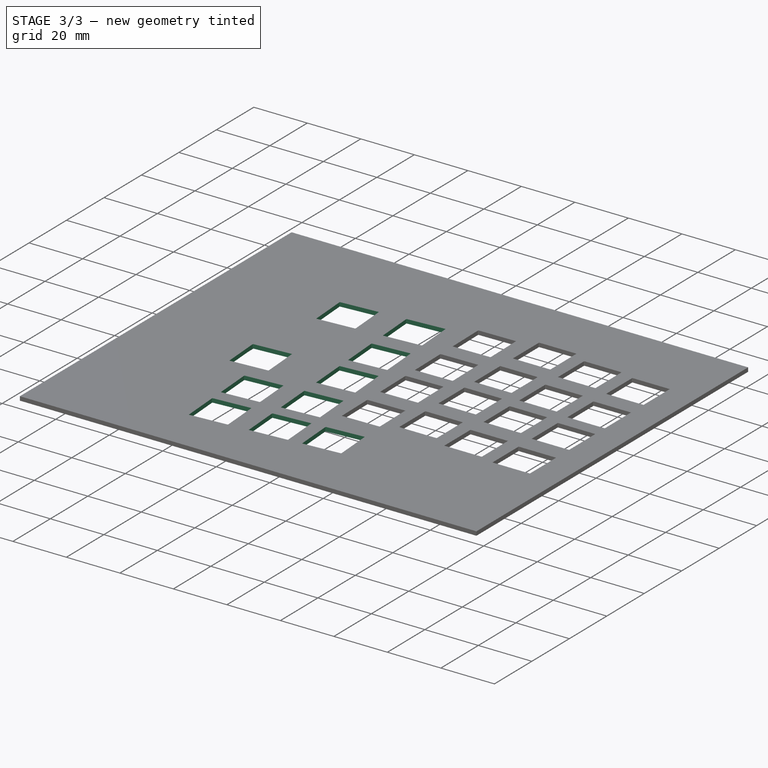
[diagram: stage 3 of 3 — iso view after this stage's code; geometry added in this stage tinted green]
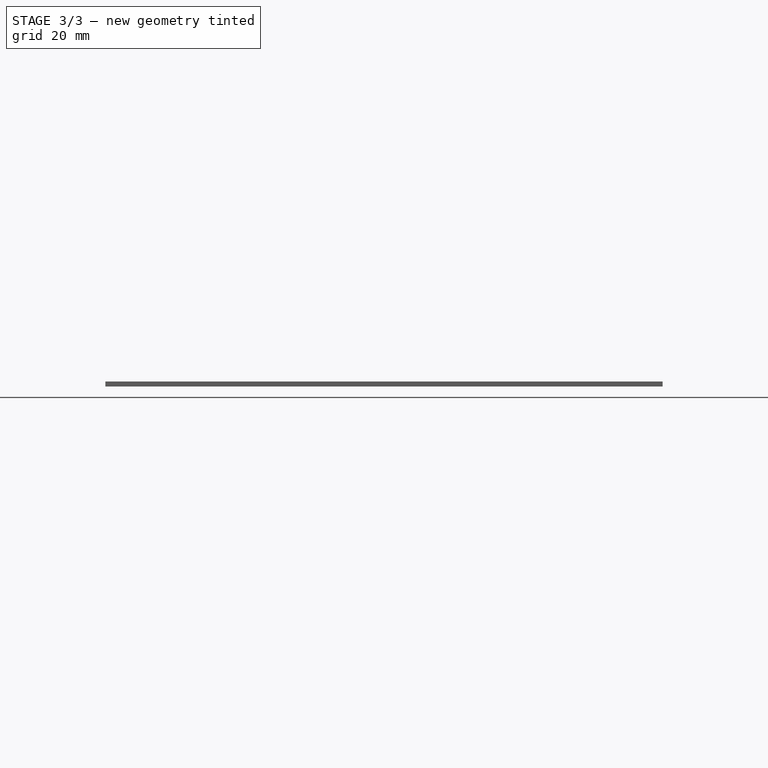
[diagram: stage 3 of 3 — front view after this stage's code; geometry added in this stage tinted green]
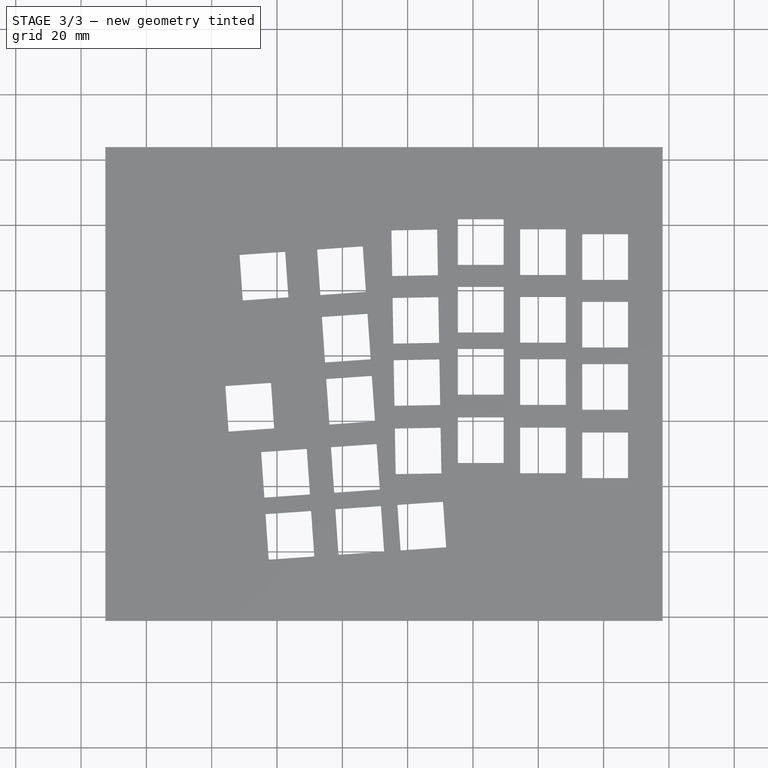
[diagram: stage 3 of 3 — top view after this stage's code; geometry added in this stage tinted green]
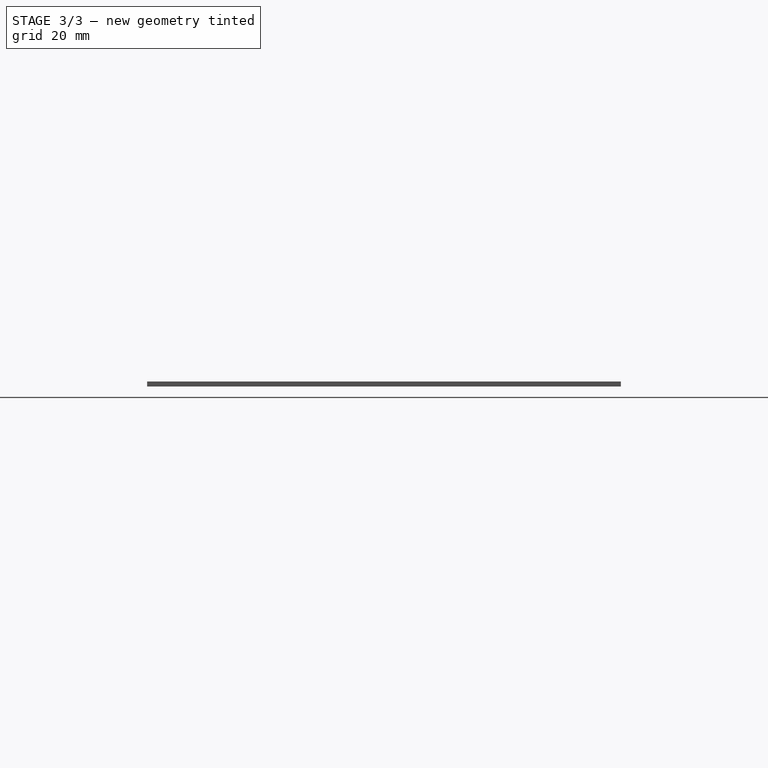
[diagram: stage 3 of 3 — right view after this stage's code; geometry added in this stage tinted green]
FEATURE [Sketcher::SketchObject] Sketch011  label="C4"
  FullyConstrained = false
  expr: Constraints[101] = <<Spreadsheet>>.R2ToR1Gap
  expr: Constraints[12] = <<Spreadsheet>>.OneU
  expr: Constraints[18] = <<Spreadsheet>>.C1Stagger
  expr: Constraints[228] = <<Spreadsheet>>.OneUCutout_rad
  expr: Constraints[229] = <<Spreadsheet>>.OneUCutout
  expr: Constraints[23] = <<Spreadsheet>>.C2Stagger
  expr: Constraints[277] = 1.25 * <<Spreadsheet>>.OneU
  expr: Constraints[278] = 1.75 * <<Spreadsheet>>.OneU
  expr: Constraints[279] = 1.25 * <<Spreadsheet>>.OneU
  expr: Constraints[280] = <<Spreadsheet>>.OneU
  expr: Constraints[281] = 0.25 * <<Spreadsheet>>.OneU
  expr: Constraints[28] = <<Spreadsheet>>.C3Stagger
  expr: Constraints[29] = <<Spreadsheet>>.C3Angle
  expr: Constraints[318] = <<Spreadsheet>>.OneUCutout_rad
  expr: Constraints[319] = <<Spreadsheet>>.OneUCutout_rad
  expr: Constraints[320] = <<Spreadsheet>>.OneUCutout
  expr: Constraints[321] = <<Spreadsheet>>.OneUCutout
  expr: Constraints[338] = <<Spreadsheet>>.OneUCutout_rad
  expr: Constraints[339] = <<Spreadsheet>>.OneUCutout
  expr: Constraints[34] = <<Spreadsheet>>.C4Angle
  expr: Constraints[63] = <<Spreadsheet>>.R4ToR3Gap
  expr: Constraints[64] = <<Spreadsheet>>.R2ToR1Gap
  expr: Constraints[94] = <<Spreadsheet>>.R4ToR3Gap
  expr: Constraints[9] = <<Spreadsheet>>.C0Stagger
  sketch-geometry (142):
    g0: LineSegment StartX=-10 StartY=0 StartZ=0 EndX=-10 EndY=19.05 EndZ=0
    g1: LineSegment StartX=-29.05 StartY=0 StartZ=0 EndX=-29.05 EndY=79.7604 EndZ=0
    g2: LineSegment StartX=-48.1 StartY=0 StartZ=0 EndX=-48.1 EndY=82.6423 EndZ=0
    g3: LineSegment StartX=-29.05 StartY=1.5 StartZ=0 EndX=-48.1 EndY=1.5 EndZ=0
    g4: LineSegment StartX=-10 StartY=0 StartZ=0 EndX=-29.05 EndY=0 EndZ=0
    g5: LineSegment StartX=-67.15 StartY=0 StartZ=0 EndX=-67.15 EndY=90.4302 EndZ=0
    g6: LineSegment StartX=-48.1 StartY=4 StartZ=0 EndX=-67.15 EndY=4 EndZ=0
    g7: LineSegment StartX=-87.5585 StartY=81.6594 StartZ=0 EndX=-85.674 EndY=-26.2995 EndZ=0
    g8: LineSegment StartX=-68.5835 StartY=86.1237 StartZ=0 EndX=-67.1064 EndY=1.50038 EndZ=0
    g9: LineSegment StartX=-67.1064 StartY=1.50038 StartZ=0 EndX=-86.1535 EndY=1.16791 EndZ=0
    g10: LineSegment StartX=-87.1684 StartY=15.6825 StartZ=0 EndX=-85.8396 EndY=-3.32113 EndZ=0
    g11: LineSegment StartX=-110.351 StartY=74.1128 StartZ=0 EndX=-103.562 EndY=-22.973 EndZ=0
    g12: LineSegment StartX=-85.8396 StartY=-3.32113 StartZ=0 EndX=-104.843 EndY=-4.64999 EndZ=0
    g13: LineSegment StartX=-29.05 StartY=19.05 StartZ=0 EndX=-10 EndY=19.05 EndZ=0
    g14: LineSegment StartX=-10 StartY=19.05 StartZ=0 EndX=-10 EndY=20.9354 EndZ=0
    g15: LineSegment StartX=-10 StartY=20.9354 StartZ=0 EndX=-29.05 EndY=20.9354 EndZ=0
    g16: LineSegment StartX=-10 StartY=20.9354 StartZ=0 EndX=-10 EndY=39.9854 EndZ=0
    g17: LineSegment StartX=-10 StartY=39.9854 StartZ=0 EndX=-29.05 EndY=39.9854 EndZ=0
    g18: LineSegment StartX=-10 StartY=39.9854 StartZ=0 EndX=-10 EndY=59.0354 EndZ=0
    g19: LineSegment StartX=-10 StartY=59.0354 StartZ=0 EndX=-29.05 EndY=59.0354 EndZ=0
    g20: LineSegment StartX=-10 StartY=59.0354 StartZ=0 EndX=-10 EndY=60.6909 EndZ=0
    g21: LineSegment StartX=-10 StartY=60.6909 StartZ=0 EndX=-29.05 EndY=60.6909 EndZ=0
    g22: LineSegment StartX=-10 StartY=60.6909 StartZ=0 EndX=-10 EndY=79.7409 EndZ=0
    g23: LineSegment StartX=-10 StartY=79.7409 StartZ=0 EndX=-29.05 EndY=79.7409 EndZ=0
    g24: LineSegment StartX=-106.172 StartY=14.3536 StartZ=0 EndX=-87.1684 EndY=15.6825 EndZ=0
    g25: LineSegment StartX=-87.1684 StartY=15.6825 StartZ=0 EndX=-87.2999 EndY=17.5633 EndZ=0
    g26: LineSegment StartX=-87.2999 StartY=17.5633 StartZ=0 EndX=-106.304 EndY=16.2345 EndZ=0
    g27: LineSegment StartX=-87.2999 StartY=17.5633 StartZ=0 EndX=-88.6288 EndY=36.5669 EndZ=0
    g28: LineSegment StartX=-88.6288 StartY=36.5669 StartZ=0 EndX=-107.632 EndY=35.2381 EndZ=0
    g29: LineSegment StartX=-88.6288 StartY=36.5669 StartZ=0 EndX=-89.9577 EndY=55.5705 EndZ=0
    g30: LineSegment StartX=-89.9577 StartY=55.5705 StartZ=0 EndX=-108.961 EndY=54.2416 EndZ=0
    g31: LineSegment StartX=-89.9577 StartY=55.5705 StartZ=0 EndX=-90.0731 EndY=57.2219 EndZ=0
    g32: LineSegment StartX=-90.0731 StartY=57.2219 StartZ=0 EndX=-109.077 EndY=55.893 EndZ=0
    g33: LineSegment StartX=-90.0731 StartY=57.2219 StartZ=0 EndX=-91.402 EndY=76.2255 EndZ=0
    g34: LineSegment StartX=-91.402 StartY=76.2255 StartZ=0 EndX=-110.406 EndY=74.8966 EndZ=0
    g35: LineSegment StartX=-110.406 StartY=74.8966 StartZ=0 EndX=-90.0731 EndY=57.2219 EndZ=0
    g36: LineSegment StartX=-91.402 StartY=76.2255 StartZ=0 EndX=-109.077 EndY=55.893 EndZ=0
    g37: LineSegment StartX=-108.961 StartY=54.2416 StartZ=0 EndX=-88.6288 EndY=36.5669 EndZ=0
    g38: LineSegment StartX=-89.9577 StartY=55.5705 StartZ=0 EndX=-107.632 EndY=35.2381 EndZ=0
    g39: LineSegment StartX=-107.632 StartY=35.2381 StartZ=0 EndX=-87.2999 EndY=17.5633 EndZ=0
    g40: LineSegment StartX=-88.6288 StartY=36.5669 StartZ=0 EndX=-106.304 EndY=16.2345 EndZ=0
    g41: LineSegment StartX=-106.172 StartY=14.3536 StartZ=0 EndX=-85.8396 EndY=-3.32113 EndZ=0
    g42: LineSegment StartX=-87.1684 StartY=15.6825 StartZ=0 EndX=-104.843 EndY=-4.64999 EndZ=0
    g43: ArcOfCircle CenterX=-103.317 CenterY=11.8717 CenterZ=0 NormalX=0 NormalY=0 NormalZ=1 AngleXU=0 Radius=0.15 StartAngle=1.64061 EndAngle=3.21141
    g44: LineSegment StartX=-103.327 StartY=12.0214 StartZ=0 EndX=-89.6608 EndY=12.977 EndZ=0
    g45: ArcOfCircle CenterX=-89.6503 CenterY=12.8274 CenterZ=0 NormalX=0 NormalY=0 NormalZ=1 AngleXU=0 Radius=0.15 StartAngle=0.0698132 EndAngle=1.64061
    g46: LineSegment StartX=-89.5007 StartY=12.8379 StartZ=0 EndX=-88.545 EndY=-0.828777 EndZ=0
    g47: ArcOfCircle CenterX=-88.6946 CenterY=-0.839241 CenterZ=0 NormalX=0 NormalY=0 NormalZ=1 AngleXU=0 Radius=0.15 StartAngle=4.7822 EndAngle=6.353
    g48: LineSegment StartX=-88.6842 StartY=-0.988875 StartZ=0 EndX=-102.351 EndY=-1.94454 EndZ=0
    g49: ArcOfCircle CenterX=-102.361 CenterY=-1.7949 CenterZ=0 NormalX=0 NormalY=0 NormalZ=1 AngleXU=0 Radius=0.15 StartAngle=3.21141 EndAngle=4.7822
    g50: LineSegment StartX=-102.511 StartY=-1.80537 StartZ=0 EndX=-103.467 EndY=11.8613 EndZ=0
    g51: GeomPoint X=-103.477 Y=12.0109 Z=0
    g52: GeomPoint X=-88.5345 Y=-0.978412 Z=0
    g53: ArcOfCircle CenterX=-104.777 CenterY=32.7562 CenterZ=0 NormalX=0 NormalY=0 NormalZ=1 AngleXU=0 Radius=0.15 StartAngle=1.64061 EndAngle=3.21141
    g54: LineSegment StartX=-104.788 StartY=32.9058 StartZ=0 EndX=-91.1212 EndY=33.8615 EndZ=0
    g55: ArcOfCircle CenterX=-91.1107 CenterY=33.7118 CenterZ=0 NormalX=0 NormalY=0 NormalZ=1 AngleXU=0 Radius=0.15 StartAngle=0.0698132 EndAngle=1.64061
    g56: LineSegment StartX=-90.9611 StartY=33.7223 StartZ=0 EndX=-90.0054 EndY=20.0557 EndZ=0
    g57: ArcOfCircle CenterX=-90.155 CenterY=20.0452 CenterZ=0 NormalX=0 NormalY=0 NormalZ=1 AngleXU=0 Radius=0.15 StartAngle=4.7822 EndAngle=6.353
    g58: LineSegment StartX=-90.1446 StartY=19.8956 StartZ=0 EndX=-103.811 EndY=18.9399 EndZ=0
    g59: ArcOfCircle CenterX=-103.822 CenterY=19.0895 CenterZ=0 NormalX=0 NormalY=0 NormalZ=1 AngleXU=0 Radius=0.15 StartAngle=3.21141 EndAngle=4.7822
    g60: LineSegment StartX=-103.971 StartY=19.0791 StartZ=0 EndX=-104.927 EndY=32.7457 EndZ=0
    g61: GeomPoint X=-104.937 Y=32.8953 Z=0
    g62: GeomPoint X=-89.9949 Y=19.906 Z=0
    g63: ArcOfCircle CenterX=-106.106 CenterY=51.7598 CenterZ=0 NormalX=0 NormalY=0 NormalZ=1 AngleXU=0 Radius=0.15 StartAngle=1.64061 EndAngle=3.21141
    g64: LineSegment StartX=-106.117 StartY=51.9094 StartZ=0 EndX=-92.45 EndY=52.8651 EndZ=0
    g65: ArcOfCircle CenterX=-92.4396 CenterY=52.7154 CenterZ=0 NormalX=0 NormalY=0 NormalZ=1 AngleXU=0 Radius=0.15 StartAngle=0.0698132 EndAngle=1.64061
    g66: LineSegment StartX=-92.2899 StartY=52.7259 StartZ=0 EndX=-91.3343 EndY=39.0593 EndZ=0
    g67: ArcOfCircle CenterX=-91.4839 CenterY=39.0488 CenterZ=0 NormalX=0 NormalY=0 NormalZ=1 AngleXU=0 Radius=0.15 StartAngle=4.7822 EndAngle=6.353
    g68: LineSegment StartX=-91.4734 StartY=38.8992 StartZ=0 EndX=-105.14 EndY=37.9435 EndZ=0
    g69: ArcOfCircle CenterX=-105.151 CenterY=38.0931 CenterZ=0 NormalX=0 NormalY=0 NormalZ=1 AngleXU=0 Radius=0.15 StartAngle=3.21141 EndAngle=4.7822
    g70: LineSegment StartX=-105.3 StartY=38.0827 StartZ=0 EndX=-106.256 EndY=51.7493 EndZ=0
    g71: GeomPoint X=-106.266 Y=51.8989 Z=0
    g72: GeomPoint X=-91.3238 Y=38.9096 Z=0
    g73: ArcOfCircle CenterX=-107.551 CenterY=72.4147 CenterZ=0 NormalX=0 NormalY=0 NormalZ=1 AngleXU=0 Radius=0.15 StartAngle=1.64061 EndAngle=3.21141
    g74: LineSegment StartX=-107.561 StartY=72.5644 StartZ=0 EndX=-93.8944 EndY=73.52 EndZ=0
    g75: ArcOfCircle CenterX=-93.8839 CenterY=73.3704 CenterZ=0 NormalX=0 NormalY=0 NormalZ=1 AngleXU=0 Radius=0.15 StartAngle=0.0698132 EndAngle=1.64061
    g76: LineSegment StartX=-93.7343 StartY=73.3809 StartZ=0 EndX=-92.7786 EndY=59.7142 EndZ=0
    g77: ArcOfCircle CenterX=-92.9282 CenterY=59.7038 CenterZ=0 NormalX=0 NormalY=0 NormalZ=1 AngleXU=0 Radius=0.15 StartAngle=4.7822 EndAngle=6.353
    g78: LineSegment StartX=-92.9178 StartY=59.5541 StartZ=0 EndX=-106.584 EndY=58.5985 EndZ=0
    g79: ArcOfCircle CenterX=-106.595 CenterY=58.7481 CenterZ=0 NormalX=0 NormalY=0 NormalZ=1 AngleXU=0 Radius=0.15 StartAngle=3.21141 EndAngle=4.7822
    g80: LineSegment StartX=-106.744 StartY=58.7376 StartZ=0 EndX=-107.7 EndY=72.4043 EndZ=0
    g81: GeomPoint X=-107.711 Y=72.5539 Z=0
    g82: GeomPoint X=-92.7681 Y=59.5646 Z=0
    g83: LineSegment StartX=-103.477 StartY=12.0109 StartZ=0 EndX=-103.971 EndY=19.0791 EndZ=0
    g84: LineSegment StartX=-104.937 StartY=32.8953 StartZ=0 EndX=-105.3 EndY=38.0827 EndZ=0
    g85: LineSegment StartX=-106.266 StartY=51.8989 StartZ=0 EndX=-106.744 EndY=58.7376 EndZ=0
    g86: LineSegment StartX=-103.327 StartY=12.0214 StartZ=0 EndX=-103.811 EndY=18.9399 EndZ=0
    g87: LineSegment StartX=-104.788 StartY=32.9058 StartZ=0 EndX=-105.14 EndY=37.9435 EndZ=0
    g88: LineSegment StartX=-106.117 StartY=51.9094 StartZ=0 EndX=-106.584 EndY=58.5985 EndZ=0
    g89: LineSegment StartX=-104.843 StartY=-4.64999 StartZ=0 EndX=-128.598 EndY=-6.31106 EndZ=0
    g90: LineSegment StartX=-128.598 StartY=-6.31106 StartZ=0 EndX=-129.927 EndY=12.6925 EndZ=0
    g91: LineSegment StartX=-129.927 StartY=12.6925 StartZ=0 EndX=-106.172 EndY=14.3536 EndZ=0
    g92: LineSegment StartX=-106.304 StartY=16.2345 StartZ=0 EndX=-115.805 EndY=15.57 EndZ=0
    g93: LineSegment StartX=-115.805 StartY=15.57 StartZ=0 EndX=-139.56 EndY=13.909 EndZ=0
    g94: LineSegment StartX=-139.56 StartY=13.909 StartZ=0 EndX=-140.889 EndY=32.9125 EndZ=0
    g95: LineSegment StartX=-140.889 StartY=32.9125 StartZ=0 EndX=-117.134 EndY=34.5736 EndZ=0
    g96: LineSegment StartX=-117.134 StartY=34.5736 StartZ=0 EndX=-107.632 EndY=35.2381 EndZ=0
    g97: LineSegment StartX=-109.077 StartY=55.893 StartZ=0 EndX=-113.828 EndY=55.5608 EndZ=0
    g98: LineSegment StartX=-113.828 StartY=55.5608 StartZ=0 EndX=-132.831 EndY=54.2319 EndZ=0
    g99: LineSegment StartX=-132.831 StartY=54.2319 StartZ=0 EndX=-134.16 EndY=73.2355 EndZ=0
    g100: LineSegment StartX=-134.16 StartY=73.2355 StartZ=0 EndX=-115.156 EndY=74.5644 EndZ=0
    g101: LineSegment StartX=-115.156 StartY=74.5644 StartZ=0 EndX=-110.406 EndY=74.8966 EndZ=0
    g102: LineSegment StartX=-115.156 StartY=74.5644 StartZ=0 EndX=-113.828 EndY=55.5608 EndZ=0
    g103: LineSegment StartX=-117.134 StartY=34.5736 StartZ=0 EndX=-115.805 EndY=15.57 EndZ=0
    g104: LineSegment StartX=-134.16 StartY=73.2355 StartZ=0 EndX=-113.828 EndY=55.5608 EndZ=0
    g105: LineSegment StartX=-115.156 StartY=74.5644 StartZ=0 EndX=-132.831 EndY=54.2319 EndZ=0
    g106: LineSegment StartX=-140.889 StartY=32.9125 StartZ=0 EndX=-115.805 EndY=15.57 EndZ=0
    g107: LineSegment StartX=-117.134 StartY=34.5736 StartZ=0 EndX=-139.56 EndY=13.909 EndZ=0
    g108: LineSegment StartX=-129.927 StartY=12.6925 StartZ=0 EndX=-104.843 EndY=-4.64999 EndZ=0
    g109: LineSegment StartX=-106.172 StartY=14.3536 StartZ=0 EndX=-128.598 EndY=-6.31106 EndZ=0
    g110: ArcOfCircle CenterX=-131.305 CenterY=70.7537 CenterZ=0 NormalX=0 NormalY=0 NormalZ=1 AngleXU=0 Radius=0.15 StartAngle=1.64061 EndAngle=3.21141
    g111: LineSegment StartX=-131.315 StartY=70.9033 StartZ=0 EndX=-117.649 EndY=71.859 EndZ=0
    g112: ArcOfCircle CenterX=-117.638 CenterY=71.7093 CenterZ=0 NormalX=0 NormalY=0 NormalZ=1 AngleXU=0 Radius=0.15 StartAngle=0.0698132 EndAngle=1.64061
    g113: LineSegment StartX=-117.489 StartY=71.7198 StartZ=0 EndX=-116.533 EndY=58.0532 EndZ=0
    g114: ArcOfCircle CenterX=-116.683 CenterY=58.0427 CenterZ=0 NormalX=0 NormalY=0 NormalZ=1 AngleXU=0 Radius=0.15 StartAngle=4.7822 EndAngle=6.353
    g115: LineSegment StartX=-116.672 StartY=57.8931 StartZ=0 EndX=-130.339 EndY=56.9374 EndZ=0
    g116: ArcOfCircle CenterX=-130.349 CenterY=57.087 CenterZ=0 NormalX=0 NormalY=0 NormalZ=1 AngleXU=0 Radius=0.15 StartAngle=3.21141 EndAngle=4.7822
    g117: LineSegment StartX=-130.499 StartY=57.0766 StartZ=0 EndX=-131.455 EndY=70.7432 EndZ=0
    g118: GeomPoint X=-131.465 Y=70.8928 Z=0
    g119: GeomPoint X=-116.523 Y=57.9035 Z=0
    g120: ArcOfCircle CenterX=-135.658 CenterY=30.5968 CenterZ=0 NormalX=0 NormalY=0 NormalZ=1 AngleXU=0 Radius=0.15 StartAngle=1.64061 EndAngle=3.21141
    g121: LineSegment StartX=-135.669 StartY=30.7464 StartZ=0 EndX=-122.002 EndY=31.7021 EndZ=0
    g122: ArcOfCircle CenterX=-121.992 CenterY=31.5524 CenterZ=0 NormalX=0 NormalY=0 NormalZ=1 AngleXU=0 Radius=0.15 StartAngle=0.0698132 EndAngle=1.64061
    g123: LineSegment StartX=-121.842 StartY=31.5629 StartZ=0 EndX=-120.886 EndY=17.8963 EndZ=0
    g124: ArcOfCircle CenterX=-121.036 CenterY=17.8858 CenterZ=0 NormalX=0 NormalY=0 NormalZ=1 AngleXU=0 Radius=0.15 StartAngle=4.7822 EndAngle=6.353
    g125: LineSegment StartX=-121.025 StartY=17.7362 StartZ=0 EndX=-134.692 EndY=16.7805 EndZ=0
    g126: ArcOfCircle CenterX=-134.702 CenterY=16.9301 CenterZ=0 NormalX=0 NormalY=0 NormalZ=1 AngleXU=0 Radius=0.15 StartAngle=3.21141 EndAngle=4.7822
    g127: LineSegment StartX=-134.852 StartY=16.9197 StartZ=0 EndX=-135.808 EndY=30.5863 EndZ=0
    g128: GeomPoint X=-135.818 Y=30.7359 Z=0
    g129: GeomPoint X=-120.876 Y=17.7466 Z=0
    g130: ArcOfCircle CenterX=-124.696 CenterY=10.3768 CenterZ=0 NormalX=0 NormalY=0 NormalZ=1 AngleXU=0 Radius=0.15 StartAngle=1.64061 EndAngle=3.21141
    g131: LineSegment StartX=-124.706 StartY=10.5264 StartZ=0 EndX=-111.04 EndY=11.4821 EndZ=0
    g132: ArcOfCircle CenterX=-111.029 CenterY=11.3324 CenterZ=0 NormalX=0 NormalY=0 NormalZ=1 AngleXU=0 Radius=0.15 StartAngle=0.0698132 EndAngle=1.64061
    g133: LineSegment StartX=-110.88 StartY=11.3429 StartZ=0 EndX=-109.924 EndY=-2.32375 EndZ=0
    g134: ArcOfCircle CenterX=-110.074 CenterY=-2.33421 CenterZ=0 NormalX=0 NormalY=0 NormalZ=1 AngleXU=0 Radius=0.15 StartAngle=4.7822 EndAngle=6.353
    g135: LineSegment StartX=-110.063 StartY=-2.48384 StartZ=0 EndX=-123.73 EndY=-3.43951 EndZ=0
    g136: ArcOfCircle CenterX=-123.74 CenterY=-3.28987 CenterZ=0 NormalX=0 NormalY=0 NormalZ=1 AngleXU=0 Radius=0.15 StartAngle=3.21141 EndAngle=4.7822
    g137: LineSegment StartX=-123.89 StartY=-3.30034 StartZ=0 EndX=-124.846 EndY=10.3663 EndZ=0
    g138: GeomPoint X=-124.856 Y=10.5159 Z=0
    g139: GeomPoint X=-109.914 Y=-2.47338 Z=0
    g140: GeomPoint X=-117.385 Y=4.02127 Z=0
    g141: GeomPoint X=-128.347 Y=24.2413 Z=0
  constraints (352):
    c: PointOnObject(g0,g-1)
    c: Vertical(g0)
    c: PointOnObject(g1,g-1)
    c: Vertical(g1)
    c: PointOnObject(g2,g-1)
    c: Vertical(g2)
    c: PointOnObject(g3,g1)
    c: PointOnObject(g3,g2)
    c: Horizontal(g3)
    c: DistanceY(g1,g3) = 1.5
    c: Coincident(g4,g0)
    c: Coincident(g4,g1)
    c: DistanceX(g4,g4) = 19.05
    c: PointOnObject(g5,g-1)
    c: Vertical(g5)
    c: PointOnObject(g6,g2)
    c: PointOnObject(g6,g5)
    c: Horizontal(g6)
    c: DistanceY(g3,g6) = 2.5
    c: PointOnObject(g6,g8)
    c: Parallel(g8,g7)
    c: PointOnObject(g9,g7)
    c: Perpendicular(g9,g8)
    c: Distance(g6,g9) = 2.5
    c: PointOnObject(g12,g11)
    c: PointOnObject(g9,g10)
    c: Perpendicular(g10,g12)
    c: Parallel(g10,g11)
    c: Distance(g12,g9) = 4.5
    c: Angle(g5,g8) = 0.0174533
    c: Equal(g4,g3)
    c: Equal(g3,g6)
    c: Equal(g6,g9)
    c: Equal(g9,g12)
    c: Angle(g7,g10) = 0.0523599
    c: PointOnObject(g13,g1)
    c: Coincident(g13,g0)
    c: Horizontal(g13)
    c: Coincident(g13,g14)
    c: Vertical(g14)
    c: Coincident(g14,g15)
    c: PointOnObject(g15,g1)
    c: Horizontal(g15)
    c: Coincident(g14,g16)
    c: Vertical(g16)
    c: Coincident(g16,g17)
    c: PointOnObject(g17,g1)
    c: Horizontal(g17)
    c: Coincident(g16,g18)
    c: Vertical(g18)
    c: Coincident(g18,g19)
    c: PointOnObject(g19,g1)
    c: Horizontal(g19)
    c: Coincident(g18,g20)
    c: Vertical(g20)
    c: Coincident(g20,g21)
    c: PointOnObject(g21,g1)
    c: Horizontal(g21)
    c: Coincident(g20,g22)
    c: Vertical(g22)
    c: Coincident(g22,g23)
    c: PointOnObject(g23,g1)
    c: Horizontal(g23)
    c: DistanceY(g0,g14) = 1.88544
    c: DistanceY(g18,g20) = 1.65541
    c: Equal(g4,g0)
    c: Equal(g0,g16)
    c: Equal(g16,g18)
    c: Equal(g18,g22)
    c: DistanceX(g0,g-1) = 10
    c: Coincident(g9,g8)
    c: Coincident(g12,g10)
    c: PointOnObject(g24,g11)
    c: Coincident(g24,g10)
    c: Coincident(g24,g25)
    c: Coincident(g25,g26)
    c: PointOnObject(g26,g11)
    c: Coincident(g25,g27)
    c: Coincident(g27,g28)
    c: PointOnObject(g28,g11)
    c: Coincident(g27,g29)
    c: Coincident(g29,g30)
    c: PointOnObject(g30,g11)
    c: Coincident(g29,g31)
    c: Coincident(g31,g32)
    c: PointOnObject(g32,g11)
    c: Coincident(g31,g33)
    c: Coincident(g33,g34)
    c: PointOnObject(g34,g11)
    c: Parallel(g10,g25)
    c: Parallel(g10,g27)
    c: Parallel(g10,g29)
    c: Parallel(g10,g31)
    c: Parallel(g10,g33)
    c: Distance(g25) = 1.88544
    c: Perpendicular(g24,g10)
    c: Perpendicular(g26,g25)
    c: Perpendicular(g28,g27)
    c: Perpendicular(g30,g29)
    c: Perpendicular(g32,g31)
    c: Perpendicular(g34,g33)
    c: Distance(g31) = 1.65541
    c: Equal(g12,g10)
    c: Equal(g12,g27)
    c: Equal(g12,g29)
    c: Equal(g12,g33)
    c: Coincident(g35,g34)
    c: Coincident(g35,g31)
    c: Coincident(g36,g33)
    c: Coincident(g36,g32)
    c: Coincident(g37,g30)
    c: Coincident(g37,g27)
    c: Coincident(g38,g29)
    c: Coincident(g38,g28)
    c: Coincident(g39,g28)
    c: Coincident(g39,g25)
    c: Coincident(g40,g27)
    c: Coincident(g40,g26)
    c: Coincident(g41,g24)
    c: Coincident(g41,g10)
    c: Coincident(g42,g12)
    c: Coincident(g42,g10)
    c: Tangent(g43,g44) = 1.5708
    c: Tangent(g44,g45) = 1.5708
    c: Tangent(g45,g46) = 1.5708
    c: Tangent(g46,g47) = 1.5708
    c: Tangent(g47,g48) = 1.5708
    c: Tangent(g48,g49) = 1.5708
    c: Tangent(g49,g50) = 1.5708
    c: Tangent(g50,g43) = 1.5708
    c: Parallel(g44,g48)
    c: Parallel(g46,g50)
    c: Equal(g43,g45)
    c: Equal(g45,g47)
    c: Equal(g47,g49)
    c: PointOnObject(g51,g44)
    c: PointOnObject(g51,g50)
    c: PointOnObject(g52,g46)
    c: PointOnObject(g52,g48)
    c: Tangent(g53,g54) = 1.5708
    c: Tangent(g54,g55) = 1.5708
    c: Tangent(g55,g56) = 1.5708
    c: Tangent(g56,g57) = 1.5708
    c: Tangent(g57,g58) = 1.5708
    c: Tangent(g58,g59) = 1.5708
    c: Tangent(g59,g60) = 1.5708
    c: Tangent(g60,g53) = 1.5708
    c: Parallel(g54,g58)
    c: Parallel(g56,g60)
    c: Equal(g53,g55)
    c: Equal(g55,g57)
    c: Equal(g57,g59)
    c: PointOnObject(g61,g54)
    c: PointOnObject(g61,g60)
    c: PointOnObject(g62,g56)
    c: PointOnObject(g62,g58)
    c: Tangent(g63,g64) = 1.5708
    c: Tangent(g64,g65) = 1.5708
    c: Tangent(g65,g66) = 1.5708
    c: Tangent(g66,g67) = 1.5708
    c: Tangent(g67,g68) = 1.5708
    c: Tangent(g68,g69) = 1.5708
    c: Tangent(g69,g70) = 1.5708
    c: Tangent(g70,g63) = 1.5708
    c: Parallel(g64,g68)
    c: Parallel(g66,g70)
    c: Equal(g63,g65)
    c: Equal(g65,g67)
    c: Equal(g67,g69)
    c: PointOnObject(g71,g64)
    c: PointOnObject(g71,g70)
    c: PointOnObject(g72,g66)
    c: PointOnObject(g72,g68)
    c: Tangent(g73,g74) = 1.5708
    c: Tangent(g74,g75) = 1.5708
    c: Tangent(g75,g76) = 1.5708
    c: Tangent(g76,g77) = 1.5708
    c: Tangent(g77,g78) = 1.5708
    c: Tangent(g78,g79) = 1.5708
    c: Tangent(g79,g80) = 1.5708
    c: Tangent(g80,g73) = 1.5708
    c: Parallel(g74,g78)
    c: Parallel(g76,g80)
    c: Equal(g73,g75)
    c: Equal(g75,g77)
    c: Equal(g77,g79)
    c: PointOnObject(g81,g74)
    c: PointOnObject(g81,g80)
    c: PointOnObject(g82,g76)
    c: PointOnObject(g82,g78)
    c: Perpendicular(g76,g74)
    c: Perpendicular(g66,g64)
    c: Perpendicular(g56,g54)
    c: Perpendicular(g46,g44)
    c: Parallel(g12,g48)
    c: Parallel(g48,g58)
    c: Parallel(g58,g68)
    c: Parallel(g68,g78)
    c: PointOnObject(g51,g41)
    c: PointOnObject(g52,g41)
    c: PointOnObject(g45,g42)
    c: PointOnObject(g61,g39)
    c: PointOnObject(g62,g39)
    c: PointOnObject(g55,g40)
    c: PointOnObject(g71,g37)
    c: PointOnObject(g72,g37)
    c: PointOnObject(g65,g38)
    c: PointOnObject(g81,g35)
    c: PointOnObject(g82,g35)
    c: PointOnObject(g75,g36)
    c: Coincident(g83,g51)
    c: Coincident(g84,g61)
    c: Coincident(g85,g71)
    c: Coincident(g86,g43)
    c: Coincident(g86,g58)
    c: Coincident(g87,g53)
    c: Coincident(g87,g68)
    c: Coincident(g88,g63)
    c: Coincident(g88,g78)
    c: Coincident(g85,g79)
    c: Coincident(g84,g69)
    c: Coincident(g83,g59)
    c: Parallel(g83,g86)
    c: Parallel(g86,g84)
    c: Parallel(g84,g87)
    c: Parallel(g87,g85)
    c: Parallel(g85,g88)
    c: Parallel(g88,g10)
    c: Radius(g45) = 0.15
    c: Distance(g49,g46) = 14
    c: Coincident(g89,g12)
    c: Coincident(g89,g90)
    c: Coincident(g90,g91)
    c: Coincident(g91,g24)
    c: Coincident(g26,g92)
    c: Coincident(g92,g93)
    c: Coincident(g93,g94)
    c: Coincident(g94,g95)
    c: Coincident(g95,g96)
    c: Coincident(g96,g28)
    c: Coincident(g32,g97)
    c: Coincident(g97,g98)
    c: Coincident(g98,g99)
    c: Coincident(g99,g100)
    c: Coincident(g100,g101)
    c: Coincident(g101,g34)
    c: Coincident(g102,g100)
    c: Coincident(g102,g97)
    c: Coincident(g103,g95)
    c: Coincident(g103,g92)
    c: Coincident(g104,g99)
    c: Coincident(g104,g97)
    c: Coincident(g105,g100)
    c: Coincident(g105,g98)
    c: Coincident(g106,g94)
    c: Coincident(g106,g92)
    c: Coincident(g107,g95)
    c: Coincident(g107,g93)
    c: Coincident(g108,g90)
    c: Coincident(g108,g12)
    c: Coincident(g109,g24)
    c: Coincident(g109,g89)
    c: Perpendicular(g11,g89)
    c: Parallel(g89,g92)
    c: Parallel(g92,g93)
    c: Parallel(g93,g96)
    c: Parallel(g96,g95)
    c: Parallel(g95,g97)
    c: Parallel(g97,g98)
    c: Parallel(g98,g101)
    c: Parallel(g101,g100)
    c: Parallel(g11,g90)
    c: Parallel(g90,g103)
    c: Parallel(g103,g94)
    c: Parallel(g94,g102)
    c: Parallel(g102,g99)
    c: Parallel(g91,g89)
    c: Distance(g89) = 23.8125
    c: Distance(g94,g28) = 33.3375
    c: Distance(g95) = 23.8125
    c: Distance(g100) = 19.05
    c: Distance(g101) = 4.7625
    c: Tangent(g110,g111) = 1.5708
    c: Tangent(g111,g112) = 1.5708
    c: Tangent(g112,g113) = 1.5708
    c: Tangent(g113,g114) = 1.5708
    c: Tangent(g114,g115) = 1.5708
    c: Tangent(g115,g116) = 1.5708
    c: Tangent(g116,g117) = 1.5708
    c: Tangent(g117,g110) = 1.5708
    c: Parallel(g111,g115)
    c: Parallel(g113,g117)
    c: Equal(g110,g112)
    c: Equal(g112,g114)
    c: Equal(g114,g116)
    c: PointOnObject(g118,g111)
    c: PointOnObject(g118,g117)
    c: PointOnObject(g119,g113)
    c: PointOnObject(g119,g115)
    c: Perpendicular(g113,g111)
    c: Symmetric(g116,g112,g104)
    c: Symmetric(g110,g114,g105)
    c: Tangent(g120,g121) = 1.5708
    c: Tangent(g121,g122) = 1.5708
    c: Tangent(g122,g123) = 1.5708
    c: Tangent(g123,g124) = 1.5708
    c: Tangent(g124,g125) = 1.5708
    c: Tangent(g125,g126) = 1.5708
    c: Tangent(g126,g127) = 1.5708
    c: Tangent(g127,g120) = 1.5708
    c: Parallel(g121,g125)
    c: Parallel(g123,g127)
    c: Equal(g120,g122)
    c: PointOnObject(g128,g121)
    c: PointOnObject(g128,g127)
    c: PointOnObject(g129,g123)
    c: PointOnObject(g129,g125)
    c: Perpendicular(g123,g121)
    c: Radius(g122) = 0.15
    c: Radius(g112) = 0.15
    c: Distance(g116,g113) = 14
    c: Distance(g126,g123) = 14
    c: Tangent(g130,g131) = 1.5708
    c: Tangent(g131,g132) = 1.5708
    c: Tangent(g132,g133) = 1.5708
    c: Tangent(g133,g134) = 1.5708
    c: Tangent(g134,g135) = 1.5708
    c: Tangent(g135,g136) = 1.5708
    c: Tangent(g136,g137) = 1.5708
    c: Tangent(g137,g130) = 1.5708
    c: Parallel(g131,g135)
    c: Parallel(g133,g137)
    c: Equal(g130,g132)
    c: PointOnObject(g138,g131)
    c: PointOnObject(g138,g137)
    c: PointOnObject(g139,g133)
    c: PointOnObject(g139,g135)
    c: Perpendicular(g133,g131)
    c: Radius(g132) = 0.15
    c: Distance(g136,g133) = 14
    c: PointOnObject(g140,g109)
    c: PointOnObject(g140,g108)
    c: Symmetric(g130,g134,g140)
    c: Symmetric(g132,g136,g140)
    c: Parallel(g135,g89)
    c: Equal(g133,g131)
    c: PointOnObject(g141,g107)
    c: PointOnObject(g141,g106)
    c: Symmetric(g122,g126,g141)
    c: Symmetric(g120,g124,g141)
    c: Equal(g125,g123)
    c: Parallel(g125,g93)
FEATURE [PartDesign::Pocket] Pocket008
  BaseFeature = -> Pocket007
  Direction = (0,0,-1)
  Length = 5
  Length2 = 5
  Midplane = true
  Profile = -> Sketch011
  ReferenceAxis = -> Sketch011 [N_Axis]
  Type = 1
FEATURE [Sketcher::SketchObject] Sketch012  label="Mods"
  FullyConstrained = false
  expr: Constraints[111] = 1.25 * <<Spreadsheet>>.OneU
  expr: Constraints[12] = <<Spreadsheet>>.OneU
  expr: Constraints[188] = <<Spreadsheet>>.OneUCutout_rad
  expr: Constraints[189] = <<Spreadsheet>>.OneUCutout
  expr: Constraints[18] = <<Spreadsheet>>.C1Stagger
  expr: Constraints[190] = <<Spreadsheet>>.OneUCutout
  expr: Constraints[191] = <<Spreadsheet>>.OneUCutout
  expr: Constraints[24] = <<Spreadsheet>>.C2Stagger
  expr: Constraints[30] = <<Spreadsheet>>.C3Stagger
  expr: Constraints[31] = <<Spreadsheet>>.C3Angle
  expr: Constraints[36] = <<Spreadsheet>>.C4Angle
  expr: Constraints[65] = <<Spreadsheet>>.R4ToR3Gap
  expr: Constraints[66] = <<Spreadsheet>>.R2ToR1Gap
  expr: Constraints[9] = <<Spreadsheet>>.C0Stagger
  sketch-geometry (75):
    g0: LineSegment StartX=-10 StartY=0 StartZ=0 EndX=-10 EndY=19.05 EndZ=0
    g1: LineSegment StartX=-29.05 StartY=0 StartZ=0 EndX=-29.05 EndY=79.7604 EndZ=0
    g2: LineSegment StartX=-48.1 StartY=0 StartZ=0 EndX=-48.1 EndY=80.3184 EndZ=0
    g3: LineSegment StartX=-29.05 StartY=1.5 StartZ=0 EndX=-48.1 EndY=1.5 EndZ=0
    g4: LineSegment StartX=-10 StartY=0 StartZ=0 EndX=-29.05 EndY=0 EndZ=0
    g5: LineSegment StartX=-67.15 StartY=0 StartZ=0 EndX=-67.15 EndY=78.9546 EndZ=0
    g6: LineSegment StartX=-48.1 StartY=4 StartZ=0 EndX=-67.15 EndY=4 EndZ=0
    g7: LineSegment StartX=-87.5648 StartY=82.0235 StartZ=0 EndX=-85.6668 EndY=-26.7156 EndZ=0
    g8: LineSegment StartX=-68.493 StartY=80.9403 StartZ=0 EndX=-66.7292 EndY=-20.1078 EndZ=0
    g9: LineSegment StartX=-67.1064 StartY=1.50038 StartZ=0 EndX=-86.1535 EndY=1.16791 EndZ=0
    g10: LineSegment StartX=-91.6439 StartY=79.6845 StartZ=0 EndX=-84.3703 EndY=-24.3329 EndZ=0
    g11: LineSegment StartX=-110.767 StartY=80.0675 StartZ=0 EndX=-103.138 EndY=-29.0362 EndZ=0
    g12: LineSegment StartX=-85.8396 StartY=-3.32113 StartZ=0 EndX=-104.843 EndY=-4.64999 EndZ=0
    g13: LineSegment StartX=-29.05 StartY=19.05 StartZ=0 EndX=-10 EndY=19.05 EndZ=0
    g14: LineSegment StartX=-10 StartY=19.05 StartZ=0 EndX=-10 EndY=20.9354 EndZ=0
    g15: LineSegment StartX=-10 StartY=20.9354 StartZ=0 EndX=-29.05 EndY=20.9354 EndZ=0
    g16: LineSegment StartX=-10 StartY=20.9354 StartZ=0 EndX=-10 EndY=39.9854 EndZ=0
    g17: LineSegment StartX=-10 StartY=39.9854 StartZ=0 EndX=-29.05 EndY=39.9854 EndZ=0
    g18: LineSegment StartX=-10 StartY=39.9854 StartZ=0 EndX=-10 EndY=59.0354 EndZ=0
    g19: LineSegment StartX=-10 StartY=59.0354 StartZ=0 EndX=-29.05 EndY=59.0354 EndZ=0
    g20: LineSegment StartX=-10 StartY=59.0354 StartZ=0 EndX=-10 EndY=60.6909 EndZ=0
    g21: LineSegment StartX=-10 StartY=60.6909 StartZ=0 EndX=-29.05 EndY=60.6909 EndZ=0
    g22: LineSegment StartX=-10 StartY=60.6909 StartZ=0 EndX=-10 EndY=79.7409 EndZ=0
    g23: LineSegment StartX=-10 StartY=79.7409 StartZ=0 EndX=-29.05 EndY=79.7409 EndZ=0
    g24: LineSegment StartX=-10 StartY=19.05 StartZ=0 EndX=-29.05 EndY=0 EndZ=0
    g25: LineSegment StartX=-29.05 StartY=20.55 StartZ=0 EndX=-48.1 EndY=20.55 EndZ=0
    g26: LineSegment StartX=-29.05 StartY=21.55 StartZ=0 EndX=-48.1 EndY=21.55 EndZ=0
    g27: LineSegment StartX=-29.05 StartY=40.6 StartZ=0 EndX=-48.1 EndY=40.6 EndZ=0
    g28: LineSegment StartX=-29.05 StartY=59.65 StartZ=0 EndX=-48.1 EndY=59.65 EndZ=0
    g29: LineSegment StartX=-29.05 StartY=60.65 StartZ=0 EndX=-48.1 EndY=60.65 EndZ=0
    g30: LineSegment StartX=-29.05 StartY=79.7 StartZ=0 EndX=-48.1 EndY=79.7 EndZ=0
    g31: LineSegment StartX=-104.843 StartY=-4.64999 StartZ=0 EndX=-128.598 EndY=-6.31106 EndZ=0
    g32: LineSegment StartX=-128.598 StartY=-6.31106 StartZ=0 EndX=-127.269 EndY=-25.3147 EndZ=0
    g33: LineSegment StartX=-127.269 StartY=-25.3147 StartZ=0 EndX=-103.514 EndY=-23.6536 EndZ=0
    g34: LineSegment StartX=-103.514 StartY=-23.6536 StartZ=0 EndX=-84.5107 EndY=-22.3247 EndZ=0
    g35: LineSegment StartX=-84.5107 StartY=-22.3247 StartZ=0 EndX=-65.5071 EndY=-20.9959 EndZ=0
    g36: LineSegment StartX=-65.5071 StartY=-20.9959 StartZ=0 EndX=-66.836 EndY=-1.99226 EndZ=0
    g37: LineSegment StartX=-66.836 StartY=-1.99226 StartZ=0 EndX=-85.8396 EndY=-3.32113 EndZ=0
    g38: LineSegment StartX=-65.5071 StartY=-20.9959 StartZ=0 EndX=-85.8396 EndY=-3.32113 EndZ=0
    g39: LineSegment StartX=-66.836 StartY=-1.99226 StartZ=0 EndX=-84.5107 EndY=-22.3247 EndZ=0
    g40: LineSegment StartX=-84.5107 StartY=-22.3247 StartZ=0 EndX=-104.843 EndY=-4.64999 EndZ=0
    g41: LineSegment StartX=-103.514 StartY=-23.6536 StartZ=0 EndX=-85.8396 EndY=-3.32113 EndZ=0
    g42: LineSegment StartX=-103.514 StartY=-23.6536 StartZ=0 EndX=-128.598 EndY=-6.31106 EndZ=0
    g43: LineSegment StartX=-127.269 StartY=-25.3147 StartZ=0 EndX=-104.843 EndY=-4.64999 EndZ=0
    g44: ArcOfCircle CenterX=-101.988 CenterY=-7.13187 CenterZ=0 NormalX=0 NormalY=0 NormalZ=1 AngleXU=0 Radius=0.15 StartAngle=1.64061 EndAngle=3.21141
    g45: LineSegment StartX=-101.999 StartY=-6.98224 StartZ=0 EndX=-88.3319 EndY=-6.02657 EndZ=0
    g46: ArcOfCircle CenterX=-88.3214 CenterY=-6.17621 CenterZ=0 NormalX=0 NormalY=0 NormalZ=1 AngleXU=0 Radius=0.15 StartAngle=0.0698132 EndAngle=1.64061
    g47: LineSegment StartX=-88.1718 StartY=-6.16574 StartZ=0 EndX=-87.2162 EndY=-19.8324 EndZ=0
    g48: ArcOfCircle CenterX=-87.3658 CenterY=-19.8428 CenterZ=0 NormalX=0 NormalY=0 NormalZ=1 AngleXU=0 Radius=0.15 StartAngle=4.7822 EndAngle=6.353
    g49: LineSegment StartX=-87.3553 StartY=-19.9925 StartZ=0 EndX=-101.022 EndY=-20.9481 EndZ=0
    g50: ArcOfCircle CenterX=-101.032 CenterY=-20.7985 CenterZ=0 NormalX=0 NormalY=0 NormalZ=1 AngleXU=0 Radius=0.15 StartAngle=3.21141 EndAngle=4.7822
    g51: LineSegment StartX=-101.182 StartY=-20.809 StartZ=0 EndX=-102.138 EndY=-7.14234 EndZ=0
    g52: GeomPoint X=-102.148 Y=-6.9927 Z=0
    g53: GeomPoint X=-87.2057 Y=-19.982 Z=0
    g54: ArcOfCircle CenterX=-82.9845 CenterY=-5.80301 CenterZ=0 NormalX=0 NormalY=0 NormalZ=1 AngleXU=0 Radius=0.15 StartAngle=1.64061 EndAngle=3.21141
    g55: LineSegment StartX=-82.9949 StartY=-5.65338 StartZ=0 EndX=-69.3283 EndY=-4.69771 EndZ=0
    g56: ArcOfCircle CenterX=-69.3179 CenterY=-4.84735 CenterZ=0 NormalX=0 NormalY=0 NormalZ=1 AngleXU=0 Radius=0.15 StartAngle=0.0698132 EndAngle=1.64061
    g57: LineSegment StartX=-69.1682 StartY=-4.83688 StartZ=0 EndX=-68.2126 EndY=-18.5035 EndZ=0
    g58: ArcOfCircle CenterX=-68.3622 CenterY=-18.514 CenterZ=0 NormalX=0 NormalY=0 NormalZ=1 AngleXU=0 Radius=0.15 StartAngle=4.7822 EndAngle=6.353
    g59: LineSegment StartX=-68.3517 StartY=-18.6636 StartZ=0 EndX=-82.0184 EndY=-19.6193 EndZ=0
    g60: ArcOfCircle CenterX=-82.0288 CenterY=-19.4696 CenterZ=0 NormalX=0 NormalY=0 NormalZ=1 AngleXU=0 Radius=0.15 StartAngle=3.21141 EndAngle=4.7822
    g61: LineSegment StartX=-82.1785 StartY=-19.4801 StartZ=0 EndX=-83.1341 EndY=-5.81347 EndZ=0
    g62: GeomPoint X=-83.1446 Y=-5.66384 Z=0
    g63: GeomPoint X=-68.2021 Y=-18.6531 Z=0
    g64: ArcOfCircle CenterX=-123.367 CenterY=-8.62684 CenterZ=0 NormalX=0 NormalY=0 NormalZ=1 AngleXU=0 Radius=0.15 StartAngle=1.64061 EndAngle=3.21141
    g65: LineSegment StartX=-123.378 StartY=-8.47721 StartZ=0 EndX=-109.711 EndY=-7.52154 EndZ=0
    g66: ArcOfCircle CenterX=-109.7 CenterY=-7.67118 CenterZ=0 NormalX=0 NormalY=0 NormalZ=1 AngleXU=0 Radius=0.15 StartAngle=0.0698132 EndAngle=1.64061
    g67: LineSegment StartX=-109.551 StartY=-7.66071 StartZ=0 EndX=-108.595 EndY=-21.3273 EndZ=0
    g68: ArcOfCircle CenterX=-108.745 CenterY=-21.3378 CenterZ=0 NormalX=0 NormalY=0 NormalZ=1 AngleXU=0 Radius=0.15 StartAngle=4.7822 EndAngle=6.353
    g69: LineSegment StartX=-108.734 StartY=-21.4874 StartZ=0 EndX=-122.401 EndY=-22.4431 EndZ=0
    g70: ArcOfCircle CenterX=-122.411 CenterY=-22.2935 CenterZ=0 NormalX=0 NormalY=0 NormalZ=1 AngleXU=0 Radius=0.15 StartAngle=3.21141 EndAngle=4.7822
    g71: LineSegment StartX=-122.561 StartY=-22.3039 StartZ=0 EndX=-123.517 EndY=-8.6373 EndZ=0
    g72: GeomPoint X=-123.527 Y=-8.48767 Z=0
    g73: GeomPoint X=-108.585 Y=-21.477 Z=0
    g74: GeomPoint X=-116.056 Y=-14.9823 Z=0
  constraints (193):
    c: PointOnObject(g0,g-1)
    c: Vertical(g0)
    c: PointOnObject(g1,g-1)
    c: Vertical(g1)
    c: PointOnObject(g2,g-1)
    c: Vertical(g2)
    c: PointOnObject(g3,g1)
    c: PointOnObject(g3,g2)
    c: Horizontal(g3)
    c: DistanceY(g1,g3) = 1.5
    c: Coincident(g4,g0)
    c: Coincident(g4,g1)
    c: DistanceX(g4,g4) = 19.05
    c: PointOnObject(g5,g-1)
    c: Vertical(g5)
    c: PointOnObject(g6,g2)
    c: PointOnObject(g6,g5)
    c: Horizontal(g6)
    c: DistanceY(g3,g6) = 2.5
    c: PointOnObject(g6,g8)
    c: Parallel(g8,g7)
    c: PointOnObject(g9,g8)
    c: PointOnObject(g9,g7)
    c: Perpendicular(g9,g8)
    c: Distance(g6,g9) = 2.5
    c: PointOnObject(g12,g10)
    c: PointOnObject(g12,g11)
    c: PointOnObject(g9,g10)
    c: Perpendicular(g10,g12)
    c: Parallel(g10,g11)
    c: Distance(g12,g9) = 4.5
    c: Angle(g5,g8) = 0.0174533
    c: Equal(g4,g3)
    c: Equal(g3,g6)
    c: Equal(g6,g9)
    c: Equal(g9,g12)
    c: Angle(g7,g10) = 0.0523599
    c: PointOnObject(g13,g1)
    c: Coincident(g13,g0)
    c: Horizontal(g13)
    c: Coincident(g13,g14)
    c: Vertical(g14)
    c: Coincident(g14,g15)
    c: PointOnObject(g15,g1)
    c: Horizontal(g15)
    c: Coincident(g14,g16)
    c: Vertical(g16)
    c: Coincident(g16,g17)
    c: PointOnObject(g17,g1)
    c: Horizontal(g17)
    c: Coincident(g16,g18)
    c: Vertical(g18)
    c: Coincident(g18,g19)
    c: PointOnObject(g19,g1)
    c: Horizontal(g19)
    c: Coincident(g18,g20)
    c: Vertical(g20)
    c: Coincident(g20,g21)
    c: PointOnObject(g21,g1)
    c: Horizontal(g21)
    c: Coincident(g20,g22)
    c: Vertical(g22)
    c: Coincident(g22,g23)
    c: PointOnObject(g23,g1)
    c: Horizontal(g23)
    c: DistanceY(g0,g14) = 1.88544
    c: DistanceY(g18,g20) = 1.65541
    c: Equal(g4,g0)
    c: Equal(g0,g16)
    c: Equal(g16,g18)
    c: Equal(g18,g22)
    c: DistanceX(g0,g-1) = 10
    c: Coincident(g24,g0)
    c: Coincident(g24,g1)
    c: PointOnObject(g25,g1)
    c: PointOnObject(g25,g2)
    c: Horizontal(g25)
    c: PointOnObject(g26,g1)
    c: PointOnObject(g26,g2)
    c: Horizontal(g26)
    c: PointOnObject(g27,g1)
    c: PointOnObject(g27,g2)
    c: Horizontal(g27)
    c: PointOnObject(g28,g1)
    c: PointOnObject(g28,g2)
    c: Horizontal(g28)
    c: PointOnObject(g29,g1)
    c: PointOnObject(g29,g2)
    c: Horizontal(g29)
    c: PointOnObject(g30,g1)
    c: PointOnObject(g30,g2)
    c: Horizontal(g30)
    c: Coincident(g31,g12)
    c: Coincident(g31,g32)
    c: Coincident(g32,g33)
    c: PointOnObject(g33,g11)
    c: Coincident(g33,g34)
    c: PointOnObject(g34,g10)
    c: Coincident(g34,g35)
    c: Coincident(g35,g36)
    c: Coincident(g36,g37)
    c: Coincident(g37,g12)
    c: Parallel(g12,g31)
    c: Parallel(g31,g37)
    c: Parallel(g37,g35)
    c: Parallel(g35,g34)
    c: Parallel(g34,g33)
    c: Perpendicular(g31,g32)
    c: Perpendicular(g37,g36)
    c: Equal(g12,g37)
    c: Equal(g37,g36)
    c: Distance(g31) = 23.8125
    c: Coincident(g38,g35)
    c: Coincident(g38,g12)
    c: Coincident(g39,g36)
    c: Coincident(g39,g34)
    c: Coincident(g40,g34)
    c: Coincident(g40,g12)
    c: Coincident(g41,g33)
    c: Coincident(g41,g12)
    c: Coincident(g42,g33)
    c: Coincident(g42,g31)
    c: Coincident(g43,g32)
    c: Coincident(g43,g12)
    c: Tangent(g44,g45) = 1.5708
    c: Tangent(g45,g46) = 1.5708
    c: Tangent(g46,g47) = 1.5708
    c: Tangent(g47,g48) = 1.5708
    c: Tangent(g48,g49) = 1.5708
    c: Tangent(g49,g50) = 1.5708
    c: Tangent(g50,g51) = 1.5708
    c: Tangent(g51,g44) = 1.5708
    c: Parallel(g45,g49)
    c: Parallel(g47,g51)
    c: Equal(g44,g46)
    c: Equal(g46,g48)
    c: Equal(g48,g50)
    c: PointOnObject(g52,g45)
    c: PointOnObject(g52,g51)
    c: PointOnObject(g53,g47)
    c: PointOnObject(g53,g49)
    c: Tangent(g54,g55) = 1.5708
    c: Tangent(g55,g56) = 1.5708
    c: Tangent(g56,g57) = 1.5708
    c: Tangent(g57,g58) = 1.5708
    c: Tangent(g58,g59) = 1.5708
    c: Tangent(g59,g60) = 1.5708
    c: Tangent(g60,g61) = 1.5708
    c: Tangent(g61,g54) = 1.5708
    c: Parallel(g55,g59)
    c: Parallel(g57,g61)
    c: Equal(g54,g56)
    c: Equal(g56,g58)
    c: Equal(g58,g60)
    c: PointOnObject(g62,g55)
    c: PointOnObject(g62,g61)
    c: PointOnObject(g63,g57)
    c: PointOnObject(g63,g59)
    c: Perpendicular(g57,g55)
    c: Perpendicular(g47,g45)
    c: Symmetric(g54,g58,g39)
    c: Symmetric(g60,g56,g38)
    c: Symmetric(g50,g46,g40)
    c: Symmetric(g44,g48,g41)
    c: Tangent(g64,g65) = 1.5708
    c: Tangent(g65,g66) = 1.5708
    c: Tangent(g66,g67) = 1.5708
    c: Tangent(g67,g68) = 1.5708
    c: Tangent(g68,g69) = 1.5708
    c: Tangent(g69,g70) = 1.5708
    c: Tangent(g70,g71) = 1.5708
    c: Tangent(g71,g64) = 1.5708
    c: Parallel(g65,g69)
    c: Parallel(g67,g71)
    c: Equal(g64,g66)
    c: Equal(g66,g68)
    c: Equal(g68,g70)
    c: PointOnObject(g72,g65)
    c: PointOnObject(g72,g71)
    c: PointOnObject(g73,g67)
    c: PointOnObject(g73,g69)
    c: Perpendicular(g67,g65)
    c: PointOnObject(g74,g43)
    c: PointOnObject(g74,g42)
    c: Symmetric(g64,g68,g74)
    c: Parallel(g69,g33)
    c: Equal(g56,g46)
    c: Equal(g56,g66)
    c: Radius(g56) = 0.15
    c: Distance(g54,g56) = 14
    c: Distance(g50,g47) = 14
    c: Distance(g70,g67) = 14
    c: Equal(g69,g67)
FEATURE [PartDesign::Pocket] Pocket009
  BaseFeature = -> Pocket008
  Direction = (0,0,-1)
  Length = 5
  Length2 = 5
  Midplane = true
  Profile = -> Sketch012
  ReferenceAxis = -> Sketch012 [N_Axis]
  Type = 1
FEATURE [PartDesign::Body] Body001  label="Combined plate001"
  Group = -> [Sketch007,Pad001,Sketch008,Pocket005,Sketch009,Pocket006,Sketch010,Pocket007,Sketch011,Pocket008,Sketch012,Pocket009]
  Origin = -> Origin001
  Tip = -> Pocket009
FEATURE [TechDraw::DrawSVGTemplate] Template
  Height = 210
  Orientation = 1
  Width = 297
FEATURE [TechDraw::DrawViewPart] View
  CoarseView = false
  Direction = (0,0,1)
  Focus = 100
  HardHidden = false
  IsoCount = 0
  IsoHidden = false
  IsoVisible = false
  LockPosition = false
  Perspective = false
  Rotation = 0
  ScaleType = 0
  ScrubCount = 0
  SeamHidden = false
  SeamVisible = true
  SmoothHidden = false
  SmoothVisible = true
  Source = -> [Body001]
  X = 122.179
  XDirection = (1,0,0)
  Y = 111.776
FEATURE [TechDraw::DrawPage] Page
  KeepUpdated = true
  NextBalloonIndex = 1
  ProjectionType = 0
  Template = -> Template
  Views = -> [View]
FEATURE [TechDraw::DrawSVGTemplate] Template001
  Height = 297
  Orientation = 0
  Template = C:/Program Files/FreeCAD 0.21/data/Mod/TechDraw/Templates/A4_Portrait_blank.svg
  Width = 210
FEATURE [TechDraw::DrawViewPart] View001
  CoarseView = false
  Direction = (0,0,1)
  Focus = 100
  HardHidden = false
  IsoCount = 0
  IsoHidden = false
  IsoVisible = false
  LockPosition = false
  Perspective = false
  Rotation = 0
  ScaleType = 0
  ScrubCount = 0
  SeamHidden = false
  SeamVisible = false
  SmoothHidden = false
  SmoothVisible = true
  Source = -> [Sketch006]
  X = 110.19
  XDirection = (1,0,0)
  Y = 247.511
FEATURE [TechDraw::DrawViewPart] View002
  CoarseView = false
  Direction = (0,0,1)
  Focus = 100
  HardHidden = false
  IsoCount = 0
  IsoHidden = false
  IsoVisible = false
  LockPosition = false
  Perspective = false
  Rotation = 0
  ScaleType = 0
  ScrubCount = 0
  SeamHidden = false
  SeamVisible = false
  SmoothHidden = false
  SmoothVisible = true
  Source = -> [Sketch006]
  X = 110.507
  XDirection = (1,0,0)
  Y = 153.745
FEATURE [TechDraw::DrawViewPart] View003
  CoarseView = false
  Direction = (0,0,1)
  Focus = 100
  HardHidden = false
  IsoCount = 0
  IsoHidden = false
  IsoVisible = false
  LockPosition = false
  Perspective = false
  Rotation = 0
  ScaleType = 0
  ScrubCount = 0
  SeamHidden = false
  SeamVisible = false
  SmoothHidden = false
  SmoothVisible = true
  Source = -> [Sketch006]
  X = 110.507
  XDirection = (1,0,0)
  Y = 58.5542
FEATURE [TechDraw::DrawPage] Page001
  KeepUpdated = true
  NextBalloonIndex = 1
  ProjectionType = 0
  Template = -> Template001
  Views = -> [View001,View002,View003]
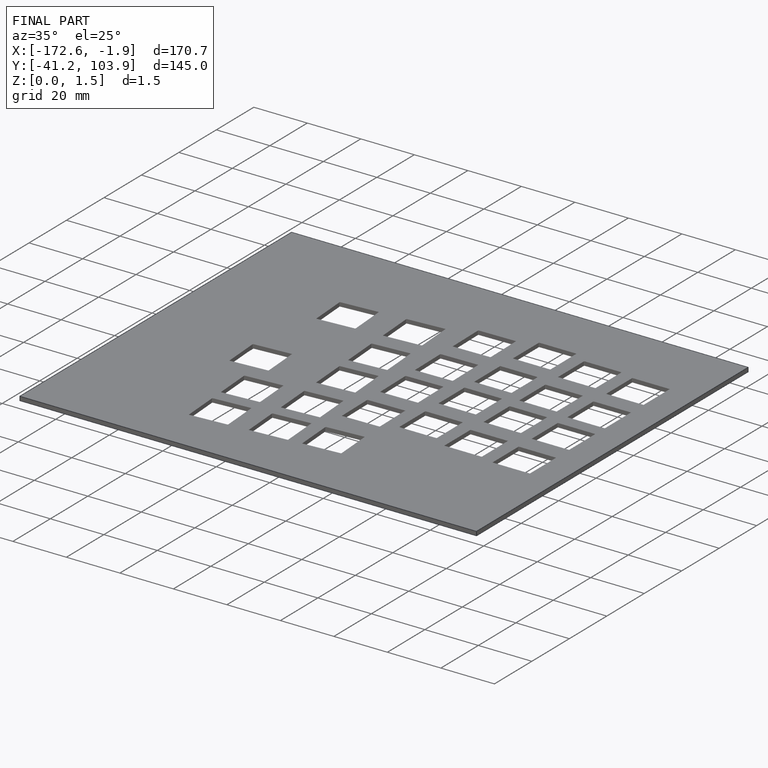
[diagram: finished part — iso view with bounding-box wireframe]
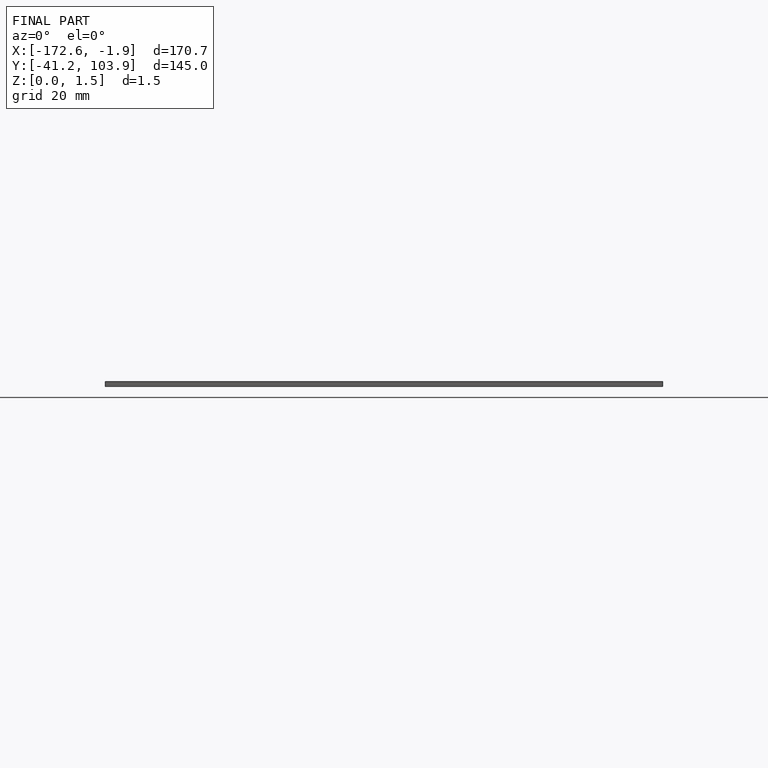
[diagram: finished part — front view with bounding-box wireframe]
